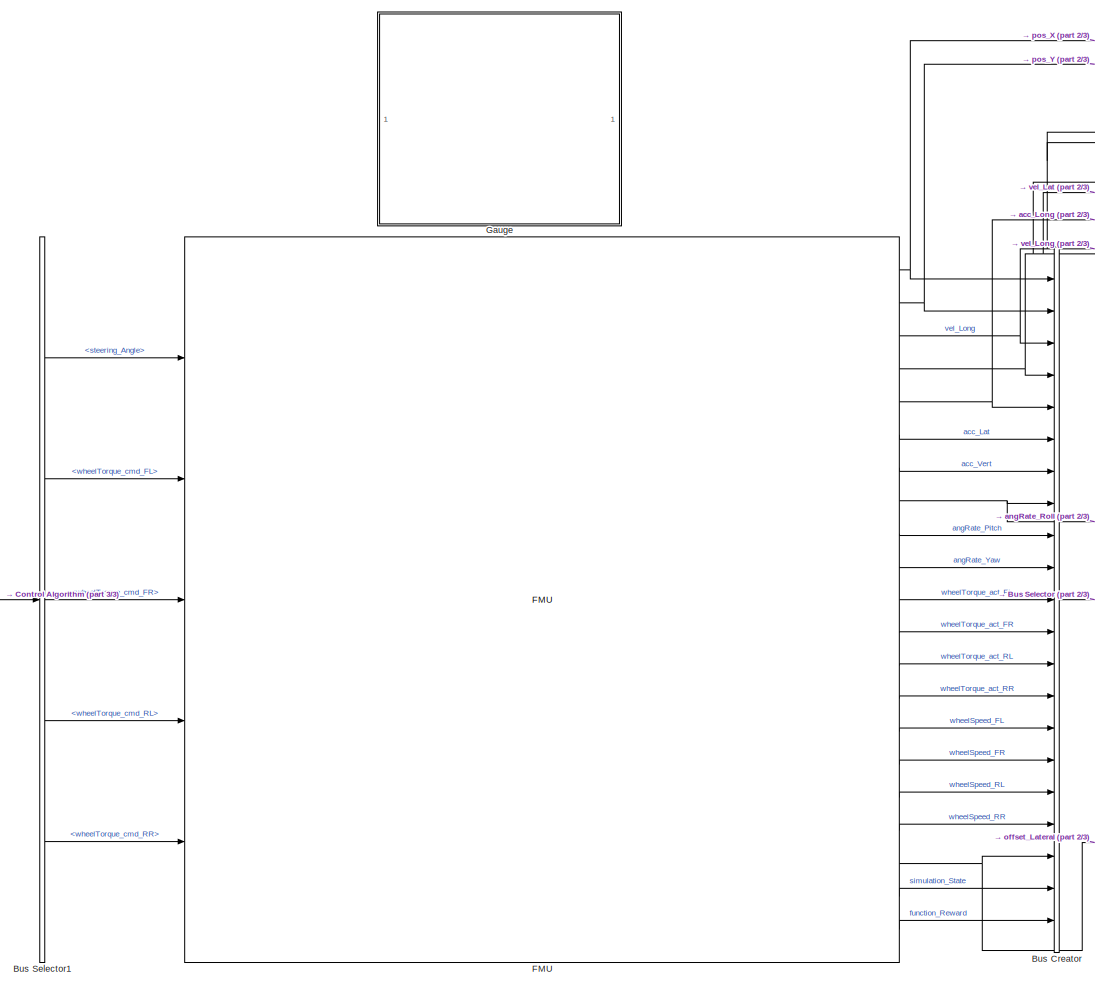
[diagram: root canvas - part 1/3, center side, full height]
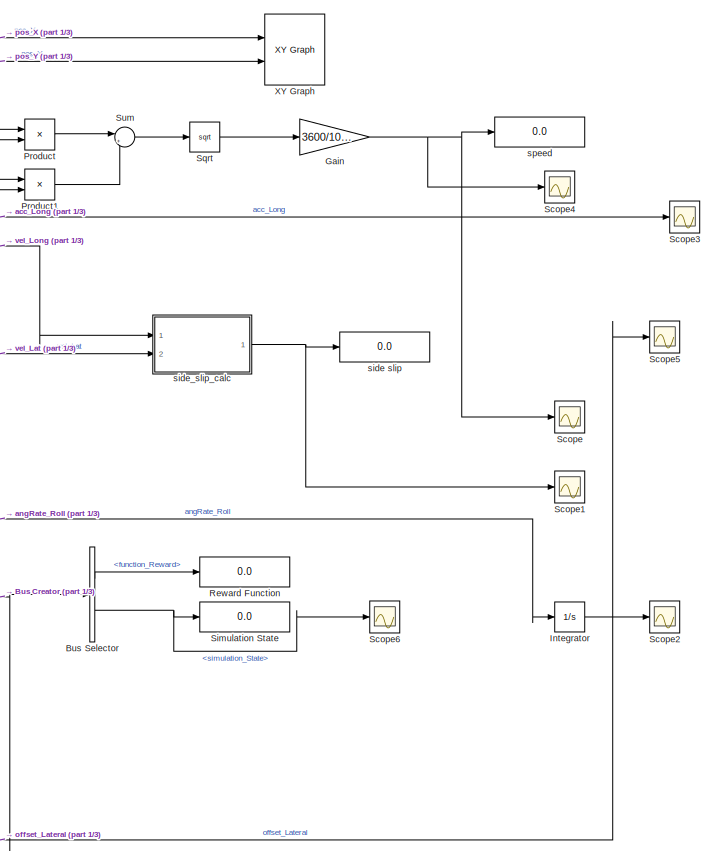
[diagram: root canvas - part 2/3, right side, full height]
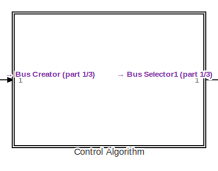
[diagram: root canvas - part 3/3, middle left region]
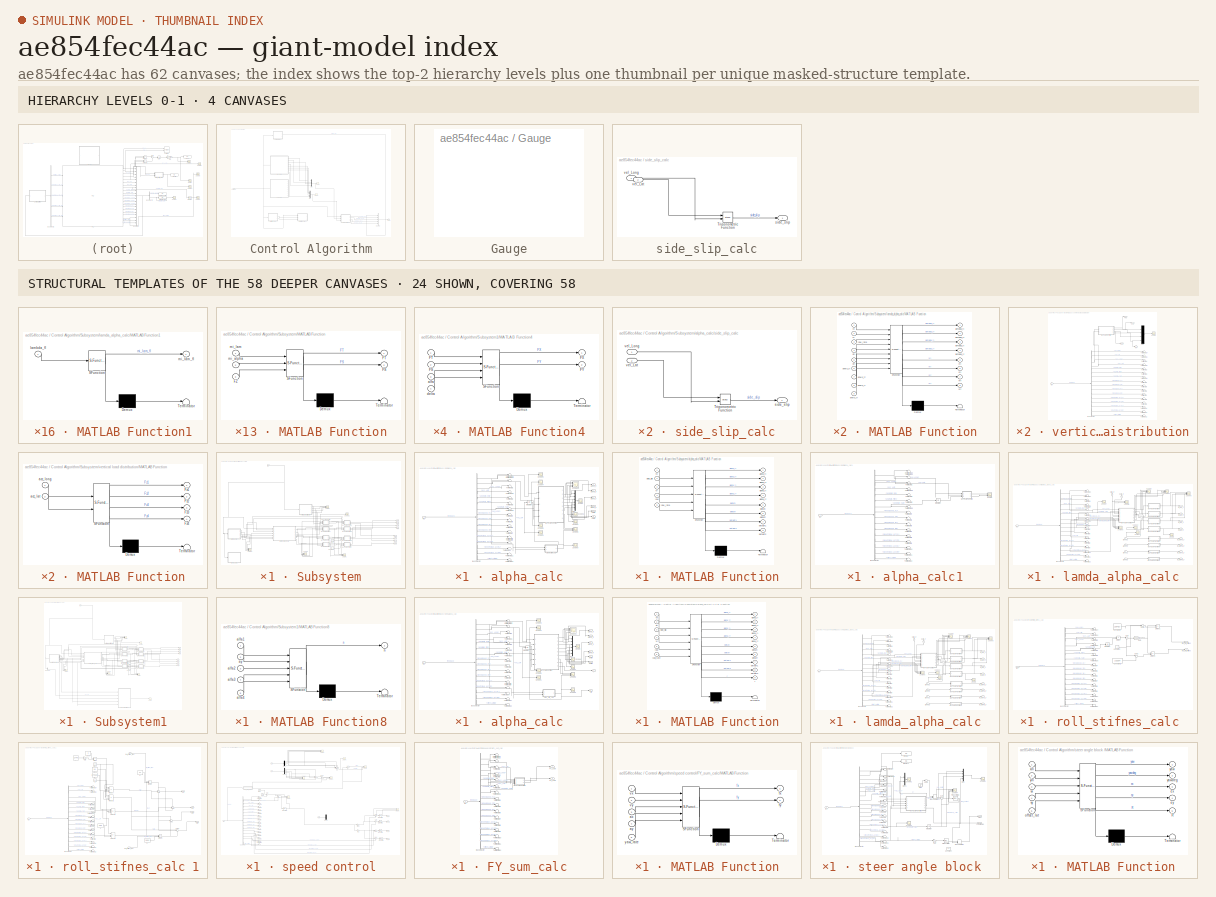
[diagram: thumbnail index - top-2 hierarchy levels (4 canvases) + 24 structural-template representatives of the remaining 58 canvases]
MODEL slx_ae854fec44ac
KIND model
CONFIG AbsTol = 1e-3
CONFIG EnableMultiTasking = off
CONFIG FixedStep = 0.1
CONFIG MaxStep = 1e-1
CONFIG MinStep = auto
CONFIG RelTol = 1e-3
CONFIG SampleTimeConstraint = Unconstrained
CONFIG Solver = VariableStepAuto
CONFIG SolverName = VariableStepAuto
CONFIG StartTime = 0.0
CONFIG StopTime = 25
BLOCK [BusCreator] Bus Creator
  DisplayOption = bar
  InheritFromInputs = on
  Inputs = 21
  Ports = [21, 1]
BLOCK [BusSelector] Bus Selector
  OutputAsBus = off
  OutputSignals = function_Reward,simulation_State
  Ports = [1, 2]
BLOCK [BusSelector] Bus Selector1
  OutputAsBus = off
  OutputSignals = steering_Angle,wheelTorque_cmd_FL,wheelTorque_cmd_FR,wheelTorque_cmd_RL,wheelTorque_cmd_RR
  Ports = [1, 5]
BLOCK [SubSystem] Control Algorithm
  Ports = [1, 1]
  RequestExecContextInheritance = off
  Variant = off
BLOCK [Outport] Control Algorithm/Actuation
  IconDisplay = Port number
BLOCK [BusCreator] Control Algorithm/Bus Creator
  DisplayOption = bar
  InheritFromInputs = on
  Inputs = 5
  Ports = [5, 1]
BLOCK [Inport] Control Algorithm/Feedback
  IconDisplay = Port number
BLOCK [Mux] Control Algorithm/Mux2
  DisplayOption = bar
  Ports = [4, 1]
BLOCK [Mux] Control Algorithm/Mux5
  DisplayOption = bar
  Ports = [4, 1]
BLOCK [Scope] Control Algorithm/Scope10
  NumInputPorts = 1
  Ports = [1]
  ScopeSpecificationString = Simulink.scopes.TimeScopeBlockCfg('CurrentConfiguration', extmgr.ConfigurationSet(extmgr.Configuration('Core','General UI',true),extmgr.Configuration('Core','Source UI',true),extmgr.Configuration('Sources','WiredSimulink',true,'DataLoggingVariableName','ScopeData1'),extmgr.Configuration('Visuals','Time Domain',true,'SerializedDisplays',{struct('MinYLimReal','225.57292','MaxYLimReal','256.05405','Y...<+1478ch>
BLOCK [Scope] Control Algorithm/Scope15
  NumInputPorts = 1
  Ports = [1]
  ScopeSpecificationString = Simulink.scopes.TimeScopeBlockCfg('CurrentConfiguration', extmgr.ConfigurationSet(extmgr.Configuration('Core','General UI',true),extmgr.Configuration('Core','Source UI',true),extmgr.Configuration('Sources','WiredSimulink',true,'DataLoggingVariableName','ScopeData10'),extmgr.Configuration('Visuals','Time Domain',true,'SerializedDisplays',{struct('MinYLimReal','-118537.97902','MaxYLimReal','92161.45...<+1503ch>
BLOCK [SubSystem] Control Algorithm/Subsystem
  Commented = on
  Ports = [1, 8]
  RequestExecContextInheritance = off
  Variant = off
BLOCK [Constant] Control Algorithm/Subsystem/Constant1
  Value = 0
BLOCK [Constant] Control Algorithm/Subsystem/Constant2
  Value = 0
BLOCK [Outport] Control Algorithm/Subsystem/FX_fl
  IconDisplay = Port number
BLOCK [Outport] Control Algorithm/Subsystem/FX_fr
  IconDisplay = Port number
  Port = 2
BLOCK [Outport] Control Algorithm/Subsystem/FX_rl
  IconDisplay = Port number
  Port = 3
BLOCK [Outport] Control Algorithm/Subsystem/FX_rr
  IconDisplay = Port number
  Port = 4
BLOCK [Outport] Control Algorithm/Subsystem/FY_fl
  IconDisplay = Port number
  Port = 5
BLOCK [Outport] Control Algorithm/Subsystem/FY_fr
  IconDisplay = Port number
  Port = 6
BLOCK [Outport] Control Algorithm/Subsystem/FY_rl
  IconDisplay = Port number
  Port = 7
BLOCK [Outport] Control Algorithm/Subsystem/FY_rr
  IconDisplay = Port number
  Port = 8
BLOCK [Inport] Control Algorithm/Subsystem/In1
  IconDisplay = Port number
BLOCK [SubSystem] Control Algorithm/Subsystem/MATLAB Function
  ErrorFcn = Stateflow.Translate.translate
  PermitHierarchicalResolution = ExplicitOnly
  Ports = [3, 2]
  RequestExecContextInheritance = off
  SFBlockType = MATLAB Function
  TreatAsAtomicUnit = on
  Variant = off
BLOCK [Demux] Control Algorithm/Subsystem/MATLAB Function/ Demux 
  Outputs = 1
  Ports = [1, 1]
BLOCK [S-Function] Control Algorithm/Subsystem/MATLAB Function/ SFunction 
  EnableBusSupport = on
  FunctionName = sf_sfun
  PortCounts = [3 3]
  Ports = [3, 3]
  SFcnIsStateOwnerBlock = off
  SFunctionDeploymentMode = off
  Tag = Stateflow S-Function solution84_02 12
BLOCK [Terminator] Control Algorithm/Subsystem/MATLAB Function/ Terminator 
BLOCK [Outport] Control Algorithm/Subsystem/MATLAB Function/FS
  IconDisplay = Port number
  Port = 2
BLOCK [Outport] Control Algorithm/Subsystem/MATLAB Function/FT
  IconDisplay = Port number
BLOCK [Inport] Control Algorithm/Subsystem/MATLAB Function/FZ
  IconDisplay = Port number
  Port = 3
BLOCK [Inport] Control Algorithm/Subsystem/MATLAB Function/mi_alpha
  IconDisplay = Port number
  Port = 2
BLOCK [Inport] Control Algorithm/Subsystem/MATLAB Function/mi_lam
  IconDisplay = Port number
BLOCK [SubSystem] Control Algorithm/Subsystem/MATLAB Function1
  ErrorFcn = Stateflow.Translate.translate
  PermitHierarchicalResolution = ExplicitOnly
  Ports = [3, 2]
  RequestExecContextInheritance = off
  SFBlockType = MATLAB Function
  TreatAsAtomicUnit = on
  Variant = off
BLOCK [Demux] Control Algorithm/Subsystem/MATLAB Function1/ Demux 
  Outputs = 1
  Ports = [1, 1]
BLOCK [S-Function] Control Algorithm/Subsystem/MATLAB Function1/ SFunction 
  EnableBusSupport = on
  FunctionName = sf_sfun
  PortCounts = [3 3]
  Ports = [3, 3]
  SFcnIsStateOwnerBlock = off
  SFunctionDeploymentMode = off
  Tag = Stateflow S-Function solution84_02 13
BLOCK [Terminator] Control Algorithm/Subsystem/MATLAB Function1/ Terminator 
BLOCK [Outport] Control Algorithm/Subsystem/MATLAB Function1/FS
  IconDisplay = Port number
  Port = 2
BLOCK [Outport] Control Algorithm/Subsystem/MATLAB Function1/FT
  IconDisplay = Port number
BLOCK [Inport] Control Algorithm/Subsystem/MATLAB Function1/FZ
  IconDisplay = Port number
  Port = 3
BLOCK [Inport] Control Algorithm/Subsystem/MATLAB Function1/mi_alpha
  IconDisplay = Port number
  Port = 2
BLOCK [Inport] Control Algorithm/Subsystem/MATLAB Function1/mi_lam
  IconDisplay = Port number
BLOCK [SubSystem] Control Algorithm/Subsystem/MATLAB Function2
  ErrorFcn = Stateflow.Translate.translate
  PermitHierarchicalResolution = ExplicitOnly
  Ports = [3, 2]
  RequestExecContextInheritance = off
  SFBlockType = MATLAB Function
  TreatAsAtomicUnit = on
  Variant = off
BLOCK [Demux] Control Algorithm/Subsystem/MATLAB Function2/ Demux 
  Outputs = 1
  Ports = [1, 1]
BLOCK [S-Function] Control Algorithm/Subsystem/MATLAB Function2/ SFunction 
  EnableBusSupport = on
  FunctionName = sf_sfun
  PortCounts = [3 3]
  Ports = [3, 3]
  SFcnIsStateOwnerBlock = off
  SFunctionDeploymentMode = off
  Tag = Stateflow S-Function solution84_02 14
BLOCK [Terminator] Control Algorithm/Subsystem/MATLAB Function2/ Terminator 
BLOCK [Outport] Control Algorithm/Subsystem/MATLAB Function2/FS
  IconDisplay = Port number
  Port = 2
BLOCK [Outport] Control Algorithm/Subsystem/MATLAB Function2/FT
  IconDisplay = Port number
BLOCK [Inport] Control Algorithm/Subsystem/MATLAB Function2/FZ
  IconDisplay = Port number
  Port = 3
BLOCK [Inport] Control Algorithm/Subsystem/MATLAB Function2/mi_alpha
  IconDisplay = Port number
  Port = 2
BLOCK [Inport] Control Algorithm/Subsystem/MATLAB Function2/mi_lam
  IconDisplay = Port number
BLOCK [SubSystem] Control Algorithm/Subsystem/MATLAB Function3
  ErrorFcn = Stateflow.Translate.translate
  PermitHierarchicalResolution = ExplicitOnly
  Ports = [3, 2]
  RequestExecContextInheritance = off
  SFBlockType = MATLAB Function
  TreatAsAtomicUnit = on
  Variant = off
BLOCK [Demux] Control Algorithm/Subsystem/MATLAB Function3/ Demux 
  Outputs = 1
  Ports = [1, 1]
BLOCK [S-Function] Control Algorithm/Subsystem/MATLAB Function3/ SFunction 
  EnableBusSupport = on
  FunctionName = sf_sfun
  PortCounts = [3 3]
  Ports = [3, 3]
  SFcnIsStateOwnerBlock = off
  SFunctionDeploymentMode = off
  Tag = Stateflow S-Function solution84_02 15
BLOCK [Terminator] Control Algorithm/Subsystem/MATLAB Function3/ Terminator 
BLOCK [Outport] Control Algorithm/Subsystem/MATLAB Function3/FS
  IconDisplay = Port number
  Port = 2
BLOCK [Outport] Control Algorithm/Subsystem/MATLAB Function3/FT
  IconDisplay = Port number
BLOCK [Inport] Control Algorithm/Subsystem/MATLAB Function3/FZ
  IconDisplay = Port number
  Port = 3
BLOCK [Inport] Control Algorithm/Subsystem/MATLAB Function3/mi_alpha
  IconDisplay = Port number
  Port = 2
BLOCK [Inport] Control Algorithm/Subsystem/MATLAB Function3/mi_lam
  IconDisplay = Port number
BLOCK [SubSystem] Control Algorithm/Subsystem/MATLAB Function4
  ErrorFcn = Stateflow.Translate.translate
  PermitHierarchicalResolution = ExplicitOnly
  Ports = [3, 2]
  RequestExecContextInheritance = off
  SFBlockType = MATLAB Function
  TreatAsAtomicUnit = on
  Variant = off
BLOCK [Demux] Control Algorithm/Subsystem/MATLAB Function4/ Demux 
  Outputs = 1
  Ports = [1, 1]
BLOCK [S-Function] Control Algorithm/Subsystem/MATLAB Function4/ SFunction 
  EnableBusSupport = on
  FunctionName = sf_sfun
  PortCounts = [3 3]
  Ports = [3, 3]
  SFcnIsStateOwnerBlock = off
  SFunctionDeploymentMode = off
  Tag = Stateflow S-Function solution84_02 17
BLOCK [Terminator] Control Algorithm/Subsystem/MATLAB Function4/ Terminator 
BLOCK [Inport] Control Algorithm/Subsystem/MATLAB Function4/FS
  IconDisplay = Port number
  Port = 2
BLOCK [Inport] Control Algorithm/Subsystem/MATLAB Function4/FT
  IconDisplay = Port number
BLOCK [Outport] Control Algorithm/Subsystem/MATLAB Function4/FX
  IconDisplay = Port number
BLOCK [Outport] Control Algorithm/Subsystem/MATLAB Function4/FY
  IconDisplay = Port number
  Port = 2
BLOCK [Inport] Control Algorithm/Subsystem/MATLAB Function4/delta
  IconDisplay = Port number
  Port = 3
BLOCK [SubSystem] Control Algorithm/Subsystem/MATLAB Function5
  ErrorFcn = Stateflow.Translate.translate
  PermitHierarchicalResolution = ExplicitOnly
  Ports = [3, 2]
  RequestExecContextInheritance = off
  SFBlockType = MATLAB Function
  TreatAsAtomicUnit = on
  Variant = off
BLOCK [Demux] Control Algorithm/Subsystem/MATLAB Function5/ Demux 
  Outputs = 1
  Ports = [1, 1]
BLOCK [S-Function] Control Algorithm/Subsystem/MATLAB Function5/ SFunction 
  EnableBusSupport = on
  FunctionName = sf_sfun
  PortCounts = [3 3]
  Ports = [3, 3]
  SFcnIsStateOwnerBlock = off
  SFunctionDeploymentMode = off
  Tag = Stateflow S-Function solution84_02 18
BLOCK [Terminator] Control Algorithm/Subsystem/MATLAB Function5/ Terminator 
BLOCK [Inport] Control Algorithm/Subsystem/MATLAB Function5/FS
  IconDisplay = Port number
  Port = 2
BLOCK [Inport] Control Algorithm/Subsystem/MATLAB Function5/FT
  IconDisplay = Port number
BLOCK [Outport] Control Algorithm/Subsystem/MATLAB Function5/FX
  IconDisplay = Port number
BLOCK [Outport] Control Algorithm/Subsystem/MATLAB Function5/FY
  IconDisplay = Port number
  Port = 2
BLOCK [Inport] Control Algorithm/Subsystem/MATLAB Function5/delta
  IconDisplay = Port number
  Port = 3
BLOCK [SubSystem] Control Algorithm/Subsystem/MATLAB Function6
  ErrorFcn = Stateflow.Translate.translate
  PermitHierarchicalResolution = ExplicitOnly
  Ports = [3, 2]
  RequestExecContextInheritance = off
  SFBlockType = MATLAB Function
  TreatAsAtomicUnit = on
  Variant = off
BLOCK [Demux] Control Algorithm/Subsystem/MATLAB Function6/ Demux 
  Outputs = 1
  Ports = [1, 1]
BLOCK [S-Function] Control Algorithm/Subsystem/MATLAB Function6/ SFunction 
  EnableBusSupport = on
  FunctionName = sf_sfun
  PortCounts = [3 3]
  Ports = [3, 3]
  SFcnIsStateOwnerBlock = off
  SFunctionDeploymentMode = off
  Tag = Stateflow S-Function solution84_02 19
BLOCK [Terminator] Control Algorithm/Subsystem/MATLAB Function6/ Terminator 
BLOCK [Inport] Control Algorithm/Subsystem/MATLAB Function6/FS
  IconDisplay = Port number
  Port = 2
BLOCK [Inport] Control Algorithm/Subsystem/MATLAB Function6/FT
  IconDisplay = Port number
BLOCK [Outport] Control Algorithm/Subsystem/MATLAB Function6/FX
  IconDisplay = Port number
BLOCK [Outport] Control Algorithm/Subsystem/MATLAB Function6/FY
  IconDisplay = Port number
  Port = 2
BLOCK [Inport] Control Algorithm/Subsystem/MATLAB Function6/delta
  IconDisplay = Port number
  Port = 3
BLOCK [SubSystem] Control Algorithm/Subsystem/MATLAB Function7
  ErrorFcn = Stateflow.Translate.translate
  PermitHierarchicalResolution = ExplicitOnly
  Ports = [3, 2]
  RequestExecContextInheritance = off
  SFBlockType = MATLAB Function
  TreatAsAtomicUnit = on
  Variant = off
BLOCK [Demux] Control Algorithm/Subsystem/MATLAB Function7/ Demux 
  Outputs = 1
  Ports = [1, 1]
BLOCK [S-Function] Control Algorithm/Subsystem/MATLAB Function7/ SFunction 
  EnableBusSupport = on
  FunctionName = sf_sfun
  PortCounts = [3 3]
  Ports = [3, 3]
  SFcnIsStateOwnerBlock = off
  SFunctionDeploymentMode = off
  Tag = Stateflow S-Function solution84_02 20
BLOCK [Terminator] Control Algorithm/Subsystem/MATLAB Function7/ Terminator 
BLOCK [Inport] Control Algorithm/Subsystem/MATLAB Function7/FS
  IconDisplay = Port number
  Port = 2
BLOCK [Inport] Control Algorithm/Subsystem/MATLAB Function7/FT
  IconDisplay = Port number
BLOCK [Outport] Control Algorithm/Subsystem/MATLAB Function7/FX
  IconDisplay = Port number
BLOCK [Outport] Control Algorithm/Subsystem/MATLAB Function7/FY
  IconDisplay = Port number
  Port = 2
BLOCK [Inport] Control Algorithm/Subsystem/MATLAB Function7/delta
  IconDisplay = Port number
  Port = 3
BLOCK [Scope] Control Algorithm/Subsystem/Scope1
  NumInputPorts = 4
  Ports = [4]
  ScopeSpecificationString = Simulink.scopes.TimeScopeBlockCfg('CurrentConfiguration', extmgr.ConfigurationSet(extmgr.Configuration('Core','General UI',true),extmgr.Configuration('Core','Source UI',true),extmgr.Configuration('Sources','WiredSimulink',true,'DataLoggingVariableName','ScopeData12'),extmgr.Configuration('Visuals','Time Domain',true,'SerializedDisplays',{struct('MinYLimReal','-1113.48657','MaxYLimReal','1148.94135...<+1492ch>
BLOCK [Scope] Control Algorithm/Subsystem/Scope13
  NumInputPorts = 1
  Ports = [1]
  ScopeSpecificationString = Simulink.scopes.TimeScopeBlockCfg('CurrentConfiguration', extmgr.ConfigurationSet(extmgr.Configuration('Core','General UI',true),extmgr.Configuration('Core','Source UI',true),extmgr.Configuration('Sources','WiredSimulink',true,'DataLoggingVariableName','ScopeData4'),extmgr.Configuration('Visuals','Time Domain',true,'SerializedDisplays',{struct('MinYLimReal','-0.16376','MaxYLimReal','0.20255','YLab...<+1411ch>
BLOCK [Scope] Control Algorithm/Subsystem/Scope2
  NumInputPorts = 4
  Ports = [4]
  ScopeSpecificationString = Simulink.scopes.TimeScopeBlockCfg('CurrentConfiguration', extmgr.ConfigurationSet(extmgr.Configuration('Core','General UI',true),extmgr.Configuration('Core','Source UI',true),extmgr.Configuration('Sources','WiredSimulink',true,'DataLoggingVariableName','ScopeData13'),extmgr.Configuration('Visuals','Time Domain',true,'SerializedDisplays',{struct('MinYLimReal','-32848.71393','MaxYLimReal','39223.680...<+1564ch>
BLOCK [Scope] Control Algorithm/Subsystem/Scope3
  NumInputPorts = 4
  Ports = [4]
  ScopeSpecificationString = Simulink.scopes.TimeScopeBlockCfg('CurrentConfiguration', extmgr.ConfigurationSet(extmgr.Configuration('Core','General UI',true),extmgr.Configuration('Core','Source UI',true),extmgr.Configuration('Sources','WiredSimulink',true,'DataLoggingVariableName','ScopeData15'),extmgr.Configuration('Visuals','Time Domain',true,'SerializedDisplays',{struct('MinYLimReal','-0.20748','MaxYLimReal','0.20741','YLa...<+1498ch>
BLOCK [Scope] Control Algorithm/Subsystem/Scope4
  NumInputPorts = 4
  Ports = [4]
  ScopeSpecificationString = Simulink.scopes.TimeScopeBlockCfg('CurrentConfiguration', extmgr.ConfigurationSet(extmgr.Configuration('Core','General UI',true),extmgr.Configuration('Core','Source UI',true),extmgr.Configuration('Sources','WiredSimulink',true,'DataLoggingVariableName','ScopeData11'),extmgr.Configuration('Visuals','Time Domain',true,'SerializedDisplays',{struct('MinYLimReal','-2.16196','MaxYLimReal','8.83094','YLa...<+1470ch>
BLOCK [SubSystem] Control Algorithm/Subsystem/alpha_calc
  Ports = [1, 6]
  RequestExecContextInheritance = off
  Variant = off
BLOCK [BusSelector] Control Algorithm/Subsystem/alpha_calc/Bus Selector
  OutputAsBus = off
  OutputSignals = vel_Long,vel_Lat,acc_Long,acc_Lat,angRate_Roll,angRate_Pitch,angRate_Yaw,wheelSpeed_FL,wheelSpeed_FR,wheelSpeed_RL,wheelSpeed_RR,wheelTorque_act_FL,wheelTorque_act_FR,wheelTorque_act_RL,wheelTorque_act_RR,offset_Lateral  <repeated x11 — deduplicated; at blocks: Bus Selector>
  Ports = [1, 16]
BLOCK [Inport] Control Algorithm/Subsystem/alpha_calc/In1
  IconDisplay = Port number and signal name
BLOCK [Integrator] Control Algorithm/Subsystem/alpha_calc/Integrator
  Ports = [1, 1]
BLOCK [SubSystem] Control Algorithm/Subsystem/alpha_calc/MATLAB Function
  ErrorFcn = Stateflow.Translate.translate
  PermitHierarchicalResolution = ExplicitOnly
  Ports = [5, 8]
  RequestExecContextInheritance = off
  SFBlockType = MATLAB Function
  TreatAsAtomicUnit = on
  Variant = off
BLOCK [Demux] Control Algorithm/Subsystem/alpha_calc/MATLAB Function/ Demux 
  Outputs = 1
  Ports = [1, 1]
BLOCK [S-Function] Control Algorithm/Subsystem/alpha_calc/MATLAB Function/ SFunction 
  EnableBusSupport = on
  FunctionName = sf_sfun
  PortCounts = [5 9]
  Ports = [5, 9]
  SFcnIsStateOwnerBlock = off
  SFunctionDeploymentMode = off
  Tag = Stateflow S-Function solution84_02 4
BLOCK [Terminator] Control Algorithm/Subsystem/alpha_calc/MATLAB Function/ Terminator 
BLOCK [Outport] Control Algorithm/Subsystem/alpha_calc/MATLAB Function/alpha_fl
  IconDisplay = Port number
BLOCK [Outport] Control Algorithm/Subsystem/alpha_calc/MATLAB Function/alpha_fr
  IconDisplay = Port number
  Port = 2
BLOCK [Outport] Control Algorithm/Subsystem/alpha_calc/MATLAB Function/alpha_rl
  IconDisplay = Port number
  Port = 3
BLOCK [Outport] Control Algorithm/Subsystem/alpha_calc/MATLAB Function/alpha_rr
  IconDisplay = Port number
  Port = 4
BLOCK [Outport] Control Algorithm/Subsystem/alpha_calc/MATLAB Function/betadf1
  IconDisplay = Port number
  Port = 7
BLOCK [Outport] Control Algorithm/Subsystem/alpha_calc/MATLAB Function/betadf2
  IconDisplay = Port number
  Port = 8
BLOCK [Outport] Control Algorithm/Subsystem/alpha_calc/MATLAB Function/deltafl
  IconDisplay = Port number
  Port = 5
BLOCK [Outport] Control Algorithm/Subsystem/alpha_calc/MATLAB Function/deltafr
  IconDisplay = Port number
  Port = 6
BLOCK [Inport] Control Algorithm/Subsystem/alpha_calc/MATLAB Function/side_slip
  IconDisplay = Port number
  Port = 2
BLOCK [Inport] Control Algorithm/Subsystem/alpha_calc/MATLAB Function/vx
  IconDisplay = Port number
BLOCK [Inport] Control Algorithm/Subsystem/alpha_calc/MATLAB Function/vy
  IconDisplay = Port number
  Port = 3
BLOCK [Inport] Control Algorithm/Subsystem/alpha_calc/MATLAB Function/yaw
  IconDisplay = Port number
  Port = 4
BLOCK [Inport] Control Algorithm/Subsystem/alpha_calc/MATLAB Function/yaw_rate
  IconDisplay = Port number
  Port = 5
BLOCK [Mux] Control Algorithm/Subsystem/alpha_calc/Mux
  DisplayOption = bar
  Inputs = 6
  Ports = [6, 1]
BLOCK [Scope] Control Algorithm/Subsystem/alpha_calc/Scope
  NumInputPorts = 1
  Ports = [1]
  ScopeSpecificationString = Simulink.scopes.TimeScopeBlockCfg('CurrentConfiguration', extmgr.ConfigurationSet(extmgr.Configuration('Core','General UI',true),extmgr.Configuration('Core','Source UI',true),extmgr.Configuration('Sources','WiredSimulink',true,'DataLoggingVariableName','ScopeData1'),extmgr.Configuration('Visuals','Time Domain',true,'SerializedDisplays',{struct('MinYLimReal','-0.28358','MaxYLimReal','0.90857','YLab...<+1431ch>
BLOCK [Scope] Control Algorithm/Subsystem/alpha_calc/Scope1
  NumInputPorts = 1
  Ports = [1]
  ScopeSpecificationString = Simulink.scopes.TimeScopeBlockCfg('CurrentConfiguration', extmgr.ConfigurationSet(extmgr.Configuration('Core','General UI',true),extmgr.Configuration('Core','Source UI',true),extmgr.Configuration('Sources','WiredSimulink',true,'DataLoggingVariableName','ScopeData2'),extmgr.Configuration('Visuals','Time Domain',true,'SerializedDisplays',{struct('MinYLimReal','-0.07769','MaxYLimReal','0.69916','YLab...<+1419ch>
BLOCK [Scope] Control Algorithm/Subsystem/alpha_calc/Scope11
  NumInputPorts = 4
  Ports = [4]
  ScopeSpecificationString = Simulink.scopes.TimeScopeBlockCfg('CurrentConfiguration', extmgr.ConfigurationSet(extmgr.Configuration('Core','General UI',true),extmgr.Configuration('Core','Source UI',true),extmgr.Configuration('Sources','WiredSimulink',true,'DataLoggingVariableName','ScopeData4'),extmgr.Configuration('Visuals','Time Domain',true,'SerializedDisplays',{struct('MinYLimReal','-0.96339','MaxYLimReal','0.4521','YLabe...<+1533ch>
BLOCK [Scope] Control Algorithm/Subsystem/alpha_calc/Scope2
  NumInputPorts = 1
  Ports = [1]
  ScopeSpecificationString = Simulink.scopes.TimeScopeBlockCfg('CurrentConfiguration', extmgr.ConfigurationSet(extmgr.Configuration('Core','General UI',true),extmgr.Configuration('Core','Source UI',true),extmgr.Configuration('Sources','WiredSimulink',true,'DataLoggingVariableName','ScopeData4'),extmgr.Configuration('Visuals','Time Domain',true,'SerializedDisplays',{struct('MinYLimReal','-0.3927','MaxYLimReal','3.53429','YLabe...<+1424ch>
BLOCK [Scope] Control Algorithm/Subsystem/alpha_calc/Scope3
  NumInputPorts = 1
  Ports = [1]
  ScopeSpecificationString = Simulink.scopes.TimeScopeBlockCfg('CurrentConfiguration', extmgr.ConfigurationSet(extmgr.Configuration('Core','General UI',true),extmgr.Configuration('Core','Source UI',true),extmgr.Configuration('Sources','WiredSimulink',true,'DataLoggingVariableName','ScopeData5'),extmgr.Configuration('Visuals','Time Domain',true,'SerializedDisplays',{struct('MinYLimReal','16.42337','MaxYLimReal','19.03402','YLa...<+1420ch>
BLOCK [Scope] Control Algorithm/Subsystem/alpha_calc/Scope4
  NumInputPorts = 1
  Ports = [1]
  ScopeSpecificationString = Simulink.scopes.TimeScopeBlockCfg('CurrentConfiguration', extmgr.ConfigurationSet(extmgr.Configuration('Core','General UI',true),extmgr.Configuration('Core','Source UI',true),extmgr.Configuration('Sources','WiredSimulink',true,'DataLoggingVariableName','ScopeData6'),extmgr.Configuration('Visuals','Time Domain',true,'SerializedDisplays',{struct('MinYLimReal','-1.49684','MaxYLimReal','0.71419','YLab...<+1412ch>
BLOCK [Scope] Control Algorithm/Subsystem/alpha_calc/Scope5
  NumInputPorts = 1
  Ports = [1]
  ScopeSpecificationString = Simulink.scopes.TimeScopeBlockCfg('CurrentConfiguration', extmgr.ConfigurationSet(extmgr.Configuration('Core','General UI',true),extmgr.Configuration('Core','Source UI',true),extmgr.Configuration('Sources','WiredSimulink',true,'DataLoggingVariableName','ScopeData7'),extmgr.Configuration('Visuals','Time Domain',true,'SerializedDisplays',{struct('MinYLimReal','-0.00000015','MaxYLimReal','0.00000002'...<+1464ch>
BLOCK [Scope] Control Algorithm/Subsystem/alpha_calc/Scope6
  NumInputPorts = 1
  Ports = [1]
  ScopeSpecificationString = Simulink.scopes.TimeScopeBlockCfg('CurrentConfiguration', extmgr.ConfigurationSet(extmgr.Configuration('Core','General UI',true),extmgr.Configuration('Core','Source UI',true),extmgr.Configuration('Sources','WiredSimulink',true,'DataLoggingVariableName','ScopeData8'),extmgr.Configuration('Visuals','Time Domain',true,'SerializedDisplays',{struct('MinYLimReal','-0.00000012','MaxYLimReal','0.00000002'...<+1455ch>
BLOCK [Scope] Control Algorithm/Subsystem/alpha_calc/Scope8
  NumInputPorts = 3
  Ports = [3]
  ScopeSpecificationString = Simulink.scopes.TimeScopeBlockCfg('CurrentConfiguration', extmgr.ConfigurationSet(extmgr.Configuration('Core','General UI',true),extmgr.Configuration('Core','Source UI',true),extmgr.Configuration('Sources','WiredSimulink',true,'DataLoggingVariableName','ScopeData1'),extmgr.Configuration('Visuals','Time Domain',true,'SerializedDisplays',{struct('MinYLimReal','-0.00009','MaxYLimReal','0.00002','YLab...<+1495ch>
BLOCK [Scope] Control Algorithm/Subsystem/alpha_calc/Scope9
  NumInputPorts = 1
  Ports = [1]
  ScopeSpecificationString = Simulink.scopes.TimeScopeBlockCfg('CurrentConfiguration', extmgr.ConfigurationSet(extmgr.Configuration('Core','General UI',true),extmgr.Configuration('Core','Source UI',true),extmgr.Configuration('Sources','WiredSimulink',true,'DataLoggingVariableName','ScopeData2'),extmgr.Configuration('Visuals','Time Domain',true,'SerializedDisplays',{struct('MinYLimReal','-0.08144','MaxYLimReal','0.03818','YLab...<+1476ch>
BLOCK [Terminator] Control Algorithm/Subsystem/alpha_calc/Terminator1
BLOCK [Terminator] Control Algorithm/Subsystem/alpha_calc/Terminator10
BLOCK [Terminator] Control Algorithm/Subsystem/alpha_calc/Terminator11
BLOCK [Terminator] Control Algorithm/Subsystem/alpha_calc/Terminator12
BLOCK [Terminator] Control Algorithm/Subsystem/alpha_calc/Terminator13
BLOCK [Terminator] Control Algorithm/Subsystem/alpha_calc/Terminator14
BLOCK [Terminator] Control Algorithm/Subsystem/alpha_calc/Terminator15
BLOCK [Terminator] Control Algorithm/Subsystem/alpha_calc/Terminator16
BLOCK [Terminator] Control Algorithm/Subsystem/alpha_calc/Terminator2
BLOCK [Terminator] Control Algorithm/Subsystem/alpha_calc/Terminator3
BLOCK [Terminator] Control Algorithm/Subsystem/alpha_calc/Terminator4
BLOCK [Terminator] Control Algorithm/Subsystem/alpha_calc/Terminator5
BLOCK [Terminator] Control Algorithm/Subsystem/alpha_calc/Terminator6
BLOCK [Terminator] Control Algorithm/Subsystem/alpha_calc/Terminator7
BLOCK [Terminator] Control Algorithm/Subsystem/alpha_calc/Terminator8
BLOCK [Terminator] Control Algorithm/Subsystem/alpha_calc/Terminator9
BLOCK [Outport] Control Algorithm/Subsystem/alpha_calc/alpha_fl
  IconDisplay = Port number
BLOCK [Outport] Control Algorithm/Subsystem/alpha_calc/alpha_fr
  IconDisplay = Port number
  Port = 2
BLOCK [Outport] Control Algorithm/Subsystem/alpha_calc/alpha_rl
  IconDisplay = Port number
  Port = 3
BLOCK [Outport] Control Algorithm/Subsystem/alpha_calc/alpha_rr
  IconDisplay = Port number
  Port = 4
BLOCK [Outport] Control Algorithm/Subsystem/alpha_calc/deltafl
  IconDisplay = Port number
  Port = 5
BLOCK [Outport] Control Algorithm/Subsystem/alpha_calc/deltafr
  IconDisplay = Port number
  Port = 6
BLOCK [SubSystem] Control Algorithm/Subsystem/alpha_calc/side_slip_calc
  Ports = [2, 1]
  RequestExecContextInheritance = off
  Variant = off
BLOCK [Trigonometry] Control Algorithm/Subsystem/alpha_calc/side_slip_calc/Trigonometric Function
  Operator = atan2
  Ports = [2, 1]
BLOCK [Outport] Control Algorithm/Subsystem/alpha_calc/side_slip_calc/side_slip
  IconDisplay = Port number
BLOCK [Inport] Control Algorithm/Subsystem/alpha_calc/side_slip_calc/vel_Lat
  IconDisplay = Port number
  Port = 2
BLOCK [Inport] Control Algorithm/Subsystem/alpha_calc/side_slip_calc/vel_Long
  IconDisplay = Port number
BLOCK [SubSystem] Control Algorithm/Subsystem/alpha_calc1
  Ports = [1]
  RequestExecContextInheritance = off
  Variant = off
BLOCK [BusSelector] Control Algorithm/Subsystem/alpha_calc1/Bus Selector
  OutputAsBus = off
  Ports = [1, 16]
BLOCK [Inport] Control Algorithm/Subsystem/alpha_calc1/In1
  IconDisplay = Port number and signal name
BLOCK [Integrator] Control Algorithm/Subsystem/alpha_calc1/Integrator
  Ports = [1, 1]
BLOCK [SubSystem] Control Algorithm/Subsystem/alpha_calc1/MATLAB Function
  ErrorFcn = Stateflow.Translate.translate
  PermitHierarchicalResolution = ExplicitOnly
  Ports = [3, 2]
  RequestExecContextInheritance = off
  SFBlockType = MATLAB Function
  TreatAsAtomicUnit = on
  Variant = off
BLOCK [Demux] Control Algorithm/Subsystem/alpha_calc1/MATLAB Function/ Demux 
  Outputs = 1
  Ports = [1, 1]
BLOCK [S-Function] Control Algorithm/Subsystem/alpha_calc1/MATLAB Function/ SFunction 
  EnableBusSupport = on
  FunctionName = sf_sfun
  PortCounts = [3 3]
  Ports = [3, 3]
  SFcnIsStateOwnerBlock = off
  SFunctionDeploymentMode = off
  Tag = Stateflow S-Function solution84_02 22
BLOCK [Terminator] Control Algorithm/Subsystem/alpha_calc1/MATLAB Function/ Terminator 
BLOCK [Inport] Control Algorithm/Subsystem/alpha_calc1/MATLAB Function/vx
  IconDisplay = Port number
BLOCK [Inport] Control Algorithm/Subsystem/alpha_calc1/MATLAB Function/vy
  IconDisplay = Port number
  Port = 2
BLOCK [Outport] Control Algorithm/Subsystem/alpha_calc1/MATLAB Function/xdot
  IconDisplay = Port number
BLOCK [Inport] Control Algorithm/Subsystem/alpha_calc1/MATLAB Function/yaw
  IconDisplay = Port number
  Port = 3
BLOCK [Outport] Control Algorithm/Subsystem/alpha_calc1/MATLAB Function/ydot
  IconDisplay = Port number
  Port = 2
BLOCK [Scope] Control Algorithm/Subsystem/alpha_calc1/Scope
  NumInputPorts = 2
  Ports = [2]
  ScopeSpecificationString = Simulink.scopes.TimeScopeBlockCfg('CurrentConfiguration', extmgr.ConfigurationSet(extmgr.Configuration('Core','General UI',true),extmgr.Configuration('Core','Source UI',true),extmgr.Configuration('Sources','WiredSimulink',true,'DataLoggingVariableName','ScopeData28'),extmgr.Configuration('Visuals','Time Domain',true,'SerializedDisplays',{struct('MinYLimReal','-1484.99327','MaxYLimReal','1512.61727...<+1471ch>
BLOCK [Terminator] Control Algorithm/Subsystem/alpha_calc1/Terminator1
BLOCK [Terminator] Control Algorithm/Subsystem/alpha_calc1/Terminator10
BLOCK [Terminator] Control Algorithm/Subsystem/alpha_calc1/Terminator11
BLOCK [Terminator] Control Algorithm/Subsystem/alpha_calc1/Terminator12
BLOCK [Terminator] Control Algorithm/Subsystem/alpha_calc1/Terminator13
BLOCK [Terminator] Control Algorithm/Subsystem/alpha_calc1/Terminator14
BLOCK [Terminator] Control Algorithm/Subsystem/alpha_calc1/Terminator15
BLOCK [Terminator] Control Algorithm/Subsystem/alpha_calc1/Terminator16
BLOCK [Terminator] Control Algorithm/Subsystem/alpha_calc1/Terminator2
BLOCK [Terminator] Control Algorithm/Subsystem/alpha_calc1/Terminator3
BLOCK [Terminator] Control Algorithm/Subsystem/alpha_calc1/Terminator4
BLOCK [Terminator] Control Algorithm/Subsystem/alpha_calc1/Terminator5
BLOCK [Terminator] Control Algorithm/Subsystem/alpha_calc1/Terminator6
BLOCK [Terminator] Control Algorithm/Subsystem/alpha_calc1/Terminator7
BLOCK [Terminator] Control Algorithm/Subsystem/alpha_calc1/Terminator8
BLOCK [Terminator] Control Algorithm/Subsystem/alpha_calc1/Terminator9
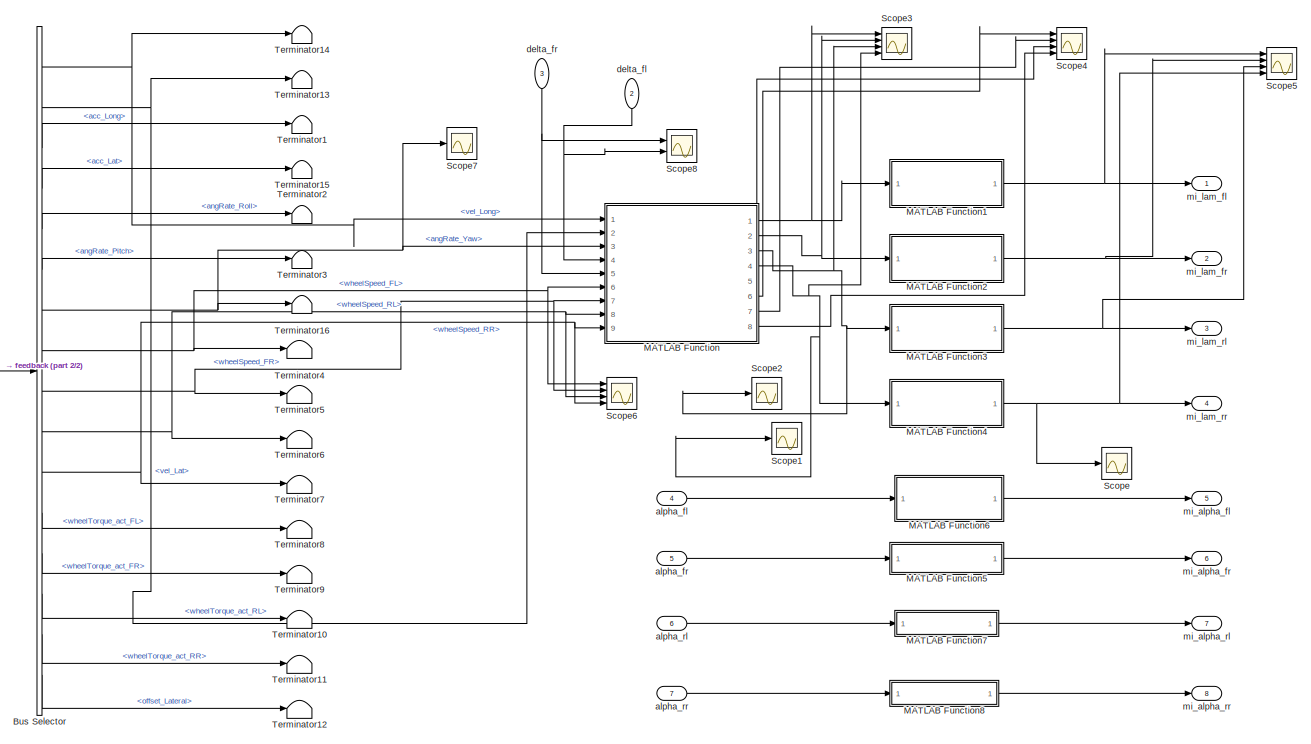
[diagram: Control Algorithm/Subsystem/lamda_alpha_calc - part 1/2, most of the canvas]
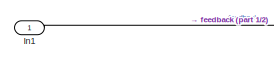
[diagram: Control Algorithm/Subsystem/lamda_alpha_calc - part 2/2, middle left region]
BLOCK [SubSystem] Control Algorithm/Subsystem/lamda_alpha_calc
  Ports = [7, 8]
  RequestExecContextInheritance = off
  Variant = off
BLOCK [BusSelector] Control Algorithm/Subsystem/lamda_alpha_calc/Bus Selector
  OutputAsBus = off
  Ports = [1, 16]
BLOCK [Inport] Control Algorithm/Subsystem/lamda_alpha_calc/In1
  IconDisplay = Port number and signal name
BLOCK [SubSystem] Control Algorithm/Subsystem/lamda_alpha_calc/MATLAB Function
  ErrorFcn = Stateflow.Translate.translate
  PermitHierarchicalResolution = ExplicitOnly
  Ports = [9, 8]
  RequestExecContextInheritance = off
  SFBlockType = MATLAB Function
  TreatAsAtomicUnit = on
  Variant = off
BLOCK [Demux] Control Algorithm/Subsystem/lamda_alpha_calc/MATLAB Function/ Demux 
  Outputs = 1
  Ports = [1, 1]
BLOCK [S-Function] Control Algorithm/Subsystem/lamda_alpha_calc/MATLAB Function/ SFunction 
  EnableBusSupport = on
  FunctionName = sf_sfun
  PortCounts = [9 9]
  Ports = [9, 9]
  SFcnIsStateOwnerBlock = off
  SFunctionDeploymentMode = off
  Tag = Stateflow S-Function solution84_02 1
BLOCK [Terminator] Control Algorithm/Subsystem/lamda_alpha_calc/MATLAB Function/ Terminator 
BLOCK [Inport] Control Algorithm/Subsystem/lamda_alpha_calc/MATLAB Function/anws_fl
  IconDisplay = Port number
  Port = 6
BLOCK [Inport] Control Algorithm/Subsystem/lamda_alpha_calc/MATLAB Function/anws_fr
  IconDisplay = Port number
  Port = 7
BLOCK [Inport] Control Algorithm/Subsystem/lamda_alpha_calc/MATLAB Function/anws_rl
  IconDisplay = Port number
  Port = 8
BLOCK [Inport] Control Algorithm/Subsystem/lamda_alpha_calc/MATLAB Function/anws_rr
  IconDisplay = Port number
  Port = 9
BLOCK [Inport] Control Algorithm/Subsystem/lamda_alpha_calc/MATLAB Function/dfl
  IconDisplay = Port number
  Port = 4
BLOCK [Inport] Control Algorithm/Subsystem/lamda_alpha_calc/MATLAB Function/dfr
  IconDisplay = Port number
  Port = 5
BLOCK [Outport] Control Algorithm/Subsystem/lamda_alpha_calc/MATLAB Function/lambda_fl
  IconDisplay = Port number
BLOCK [Outport] Control Algorithm/Subsystem/lamda_alpha_calc/MATLAB Function/lambda_fr
  IconDisplay = Port number
  Port = 2
BLOCK [Outport] Control Algorithm/Subsystem/lamda_alpha_calc/MATLAB Function/lambda_rl
  IconDisplay = Port number
  Port = 3
BLOCK [Outport] Control Algorithm/Subsystem/lamda_alpha_calc/MATLAB Function/lambda_rr
  IconDisplay = Port number
  Port = 4
BLOCK [Outport] Control Algorithm/Subsystem/lamda_alpha_calc/MATLAB Function/vfl
  IconDisplay = Port number
  Port = 6
BLOCK [Outport] Control Algorithm/Subsystem/lamda_alpha_calc/MATLAB Function/vfr
  IconDisplay = Port number
  Port = 7
BLOCK [Outport] Control Algorithm/Subsystem/lamda_alpha_calc/MATLAB Function/vrl
  IconDisplay = Port number
  Port = 5
BLOCK [Outport] Control Algorithm/Subsystem/lamda_alpha_calc/MATLAB Function/vrr
  IconDisplay = Port number
  Port = 8
BLOCK [Inport] Control Algorithm/Subsystem/lamda_alpha_calc/MATLAB Function/vx
  IconDisplay = Port number
BLOCK [Inport] Control Algorithm/Subsystem/lamda_alpha_calc/MATLAB Function/vy
  IconDisplay = Port number
  Port = 2
BLOCK [Inport] Control Algorithm/Subsystem/lamda_alpha_calc/MATLAB Function/yaw_rate
  IconDisplay = Port number
  Port = 3
BLOCK [SubSystem] Control Algorithm/Subsystem/lamda_alpha_calc/MATLAB Function1
  ErrorFcn = Stateflow.Translate.translate
  PermitHierarchicalResolution = ExplicitOnly
  Ports = [1, 1]
  RequestExecContextInheritance = off
  SFBlockType = MATLAB Function
  TreatAsAtomicUnit = on
  Variant = off
BLOCK [Demux] Control Algorithm/Subsystem/lamda_alpha_calc/MATLAB Function1/ Demux 
  Outputs = 1
  Ports = [1, 1]
BLOCK [S-Function] Control Algorithm/Subsystem/lamda_alpha_calc/MATLAB Function1/ SFunction 
  EnableBusSupport = on
  FunctionName = sf_sfun
  PortCounts = [1 2]
  Ports = [1, 2]
  SFcnIsStateOwnerBlock = off
  SFunctionDeploymentMode = off
  Tag = Stateflow S-Function solution84_02 3
BLOCK [Terminator] Control Algorithm/Subsystem/lamda_alpha_calc/MATLAB Function1/ Terminator 
BLOCK [Inport] Control Algorithm/Subsystem/lamda_alpha_calc/MATLAB Function1/lambda_fl
  IconDisplay = Port number
BLOCK [Outport] Control Algorithm/Subsystem/lamda_alpha_calc/MATLAB Function1/mi_lam_fl
  IconDisplay = Port number
BLOCK [SubSystem] Control Algorithm/Subsystem/lamda_alpha_calc/MATLAB Function2
  ErrorFcn = Stateflow.Translate.translate
  PermitHierarchicalResolution = ExplicitOnly
  Ports = [1, 1]
  RequestExecContextInheritance = off
  SFBlockType = MATLAB Function
  TreatAsAtomicUnit = on
  Variant = off
BLOCK [Demux] Control Algorithm/Subsystem/lamda_alpha_calc/MATLAB Function2/ Demux 
  Outputs = 1
  Ports = [1, 1]
BLOCK [S-Function] Control Algorithm/Subsystem/lamda_alpha_calc/MATLAB Function2/ SFunction 
  EnableBusSupport = on
  FunctionName = sf_sfun
  PortCounts = [1 2]
  Ports = [1, 2]
  SFcnIsStateOwnerBlock = off
  SFunctionDeploymentMode = off
  Tag = Stateflow S-Function solution84_02 5
BLOCK [Terminator] Control Algorithm/Subsystem/lamda_alpha_calc/MATLAB Function2/ Terminator 
BLOCK [Inport] Control Algorithm/Subsystem/lamda_alpha_calc/MATLAB Function2/lambda_fr
  IconDisplay = Port number
BLOCK [Outport] Control Algorithm/Subsystem/lamda_alpha_calc/MATLAB Function2/mi_lam_fl
  IconDisplay = Port number
BLOCK [SubSystem] Control Algorithm/Subsystem/lamda_alpha_calc/MATLAB Function3
  ErrorFcn = Stateflow.Translate.translate
  PermitHierarchicalResolution = ExplicitOnly
  Ports = [1, 1]
  RequestExecContextInheritance = off
  SFBlockType = MATLAB Function
  TreatAsAtomicUnit = on
  Variant = off
BLOCK [Demux] Control Algorithm/Subsystem/lamda_alpha_calc/MATLAB Function3/ Demux 
  Outputs = 1
  Ports = [1, 1]
BLOCK [S-Function] Control Algorithm/Subsystem/lamda_alpha_calc/MATLAB Function3/ SFunction 
  EnableBusSupport = on
  FunctionName = sf_sfun
  PortCounts = [1 2]
  Ports = [1, 2]
  SFcnIsStateOwnerBlock = off
  SFunctionDeploymentMode = off
  Tag = Stateflow S-Function solution84_02 6
BLOCK [Terminator] Control Algorithm/Subsystem/lamda_alpha_calc/MATLAB Function3/ Terminator 
BLOCK [Inport] Control Algorithm/Subsystem/lamda_alpha_calc/MATLAB Function3/lambda_rl
  IconDisplay = Port number
BLOCK [Outport] Control Algorithm/Subsystem/lamda_alpha_calc/MATLAB Function3/mi_lam_rl
  IconDisplay = Port number
BLOCK [SubSystem] Control Algorithm/Subsystem/lamda_alpha_calc/MATLAB Function4
  ErrorFcn = Stateflow.Translate.translate
  PermitHierarchicalResolution = ExplicitOnly
  Ports = [1, 1]
  RequestExecContextInheritance = off
  SFBlockType = MATLAB Function
  TreatAsAtomicUnit = on
  Variant = off
BLOCK [Demux] Control Algorithm/Subsystem/lamda_alpha_calc/MATLAB Function4/ Demux 
  Outputs = 1
  Ports = [1, 1]
BLOCK [S-Function] Control Algorithm/Subsystem/lamda_alpha_calc/MATLAB Function4/ SFunction 
  EnableBusSupport = on
  FunctionName = sf_sfun
  PortCounts = [1 2]
  Ports = [1, 2]
  SFcnIsStateOwnerBlock = off
  SFunctionDeploymentMode = off
  Tag = Stateflow S-Function solution84_02 7
BLOCK [Terminator] Control Algorithm/Subsystem/lamda_alpha_calc/MATLAB Function4/ Terminator 
BLOCK [Inport] Control Algorithm/Subsystem/lamda_alpha_calc/MATLAB Function4/lambda_rr
  IconDisplay = Port number
BLOCK [Outport] Control Algorithm/Subsystem/lamda_alpha_calc/MATLAB Function4/mi_lam_rr
  IconDisplay = Port number
BLOCK [SubSystem] Control Algorithm/Subsystem/lamda_alpha_calc/MATLAB Function5
  ErrorFcn = Stateflow.Translate.translate
  PermitHierarchicalResolution = ExplicitOnly
  Ports = [1, 1]
  RequestExecContextInheritance = off
  SFBlockType = MATLAB Function
  TreatAsAtomicUnit = on
  Variant = off
BLOCK [Demux] Control Algorithm/Subsystem/lamda_alpha_calc/MATLAB Function5/ Demux 
  Outputs = 1
  Ports = [1, 1]
BLOCK [S-Function] Control Algorithm/Subsystem/lamda_alpha_calc/MATLAB Function5/ SFunction 
  EnableBusSupport = on
  FunctionName = sf_sfun
  PortCounts = [1 2]
  Ports = [1, 2]
  SFcnIsStateOwnerBlock = off
  SFunctionDeploymentMode = off
  Tag = Stateflow S-Function solution84_02 8
BLOCK [Terminator] Control Algorithm/Subsystem/lamda_alpha_calc/MATLAB Function5/ Terminator 
BLOCK [Inport] Control Algorithm/Subsystem/lamda_alpha_calc/MATLAB Function5/alpha_fr
  IconDisplay = Port number
BLOCK [Outport] Control Algorithm/Subsystem/lamda_alpha_calc/MATLAB Function5/mi_alpha_fr
  IconDisplay = Port number
BLOCK [SubSystem] Control Algorithm/Subsystem/lamda_alpha_calc/MATLAB Function6
  ErrorFcn = Stateflow.Translate.translate
  PermitHierarchicalResolution = ExplicitOnly
  Ports = [1, 1]
  RequestExecContextInheritance = off
  SFBlockType = MATLAB Function
  TreatAsAtomicUnit = on
  Variant = off
BLOCK [Demux] Control Algorithm/Subsystem/lamda_alpha_calc/MATLAB Function6/ Demux 
  Outputs = 1
  Ports = [1, 1]
BLOCK [S-Function] Control Algorithm/Subsystem/lamda_alpha_calc/MATLAB Function6/ SFunction 
  EnableBusSupport = on
  FunctionName = sf_sfun
  PortCounts = [1 2]
  Ports = [1, 2]
  SFcnIsStateOwnerBlock = off
  SFunctionDeploymentMode = off
  Tag = Stateflow S-Function solution84_02 9
BLOCK [Terminator] Control Algorithm/Subsystem/lamda_alpha_calc/MATLAB Function6/ Terminator 
BLOCK [Inport] Control Algorithm/Subsystem/lamda_alpha_calc/MATLAB Function6/alpha_fl
  IconDisplay = Port number
BLOCK [Outport] Control Algorithm/Subsystem/lamda_alpha_calc/MATLAB Function6/mi_alpha_fl
  IconDisplay = Port number
BLOCK [SubSystem] Control Algorithm/Subsystem/lamda_alpha_calc/MATLAB Function7
  ErrorFcn = Stateflow.Translate.translate
  PermitHierarchicalResolution = ExplicitOnly
  Ports = [1, 1]
  RequestExecContextInheritance = off
  SFBlockType = MATLAB Function
  TreatAsAtomicUnit = on
  Variant = off
BLOCK [Demux] Control Algorithm/Subsystem/lamda_alpha_calc/MATLAB Function7/ Demux 
  Outputs = 1
  Ports = [1, 1]
BLOCK [S-Function] Control Algorithm/Subsystem/lamda_alpha_calc/MATLAB Function7/ SFunction 
  EnableBusSupport = on
  FunctionName = sf_sfun
  PortCounts = [1 2]
  Ports = [1, 2]
  SFcnIsStateOwnerBlock = off
  SFunctionDeploymentMode = off
  Tag = Stateflow S-Function solution84_02 10
BLOCK [Terminator] Control Algorithm/Subsystem/lamda_alpha_calc/MATLAB Function7/ Terminator 
BLOCK [Inport] Control Algorithm/Subsystem/lamda_alpha_calc/MATLAB Function7/alpha_rl
  IconDisplay = Port number
BLOCK [Outport] Control Algorithm/Subsystem/lamda_alpha_calc/MATLAB Function7/mi_alpha_rl
  IconDisplay = Port number
BLOCK [SubSystem] Control Algorithm/Subsystem/lamda_alpha_calc/MATLAB Function8
  ErrorFcn = Stateflow.Translate.translate
  PermitHierarchicalResolution = ExplicitOnly
  Ports = [1, 1]
  RequestExecContextInheritance = off
  SFBlockType = MATLAB Function
  TreatAsAtomicUnit = on
  Variant = off
BLOCK [Demux] Control Algorithm/Subsystem/lamda_alpha_calc/MATLAB Function8/ Demux 
  Outputs = 1
  Ports = [1, 1]
BLOCK [S-Function] Control Algorithm/Subsystem/lamda_alpha_calc/MATLAB Function8/ SFunction 
  EnableBusSupport = on
  FunctionName = sf_sfun
  PortCounts = [1 2]
  Ports = [1, 2]
  SFcnIsStateOwnerBlock = off
  SFunctionDeploymentMode = off
  Tag = Stateflow S-Function solution84_02 11
BLOCK [Terminator] Control Algorithm/Subsystem/lamda_alpha_calc/MATLAB Function8/ Terminator 
BLOCK [Inport] Control Algorithm/Subsystem/lamda_alpha_calc/MATLAB Function8/alpha_rr
  IconDisplay = Port number
BLOCK [Outport] Control Algorithm/Subsystem/lamda_alpha_calc/MATLAB Function8/mi_alpha_rr
  IconDisplay = Port number
BLOCK [Scope] Control Algorithm/Subsystem/lamda_alpha_calc/Scope
  NumInputPorts = 1
  Ports = [1]
  ScopeSpecificationString = Simulink.scopes.TimeScopeBlockCfg('CurrentConfiguration', extmgr.ConfigurationSet(extmgr.Configuration('Core','General UI',true),extmgr.Configuration('Core','Source UI',true),extmgr.Configuration('Sources','WiredSimulink',true,'DataLoggingVariableName','ScopeData5'),extmgr.Configuration('Visuals','Time Domain',true,'SerializedDisplays',{struct('MinYLimReal','-0.2074','MaxYLimReal','0.20681','YLabe...<+1371ch>
BLOCK [Scope] Control Algorithm/Subsystem/lamda_alpha_calc/Scope1
  NumInputPorts = 1
  Ports = [1]
  ScopeSpecificationString = Simulink.scopes.TimeScopeBlockCfg('CurrentConfiguration', extmgr.ConfigurationSet(extmgr.Configuration('Core','General UI',true),extmgr.Configuration('Core','Source UI',true),extmgr.Configuration('Sources','WiredSimulink',true,'DataLoggingVariableName','ScopeData6'),extmgr.Configuration('Visuals','Time Domain',true,'SerializedDisplays',{struct('MinYLimReal','-25.83435','MaxYLimReal','3.95259','YLa...<+1388ch>
BLOCK [Scope] Control Algorithm/Subsystem/lamda_alpha_calc/Scope2
  NumInputPorts = 1
  Ports = [1]
  ScopeSpecificationString = Simulink.scopes.TimeScopeBlockCfg('CurrentConfiguration', extmgr.ConfigurationSet(extmgr.Configuration('Core','General UI',true),extmgr.Configuration('Core','Source UI',true),extmgr.Configuration('Sources','WiredSimulink',true,'DataLoggingVariableName','ScopeData7'),extmgr.Configuration('Visuals','Time Domain',true,'SerializedDisplays',{struct('MinYLimReal','-22.8854','MaxYLimReal','3.58579','YLab...<+1384ch>
BLOCK [Scope] Control Algorithm/Subsystem/lamda_alpha_calc/Scope3
  NumInputPorts = 4
  Ports = [4]
  ScopeSpecificationString = Simulink.scopes.TimeScopeBlockCfg('CurrentConfiguration', extmgr.ConfigurationSet(extmgr.Configuration('Core','General UI',true),extmgr.Configuration('Core','Source UI',true),extmgr.Configuration('Sources','WiredSimulink',true,'DataLoggingVariableName','ScopeData16'),extmgr.Configuration('Visuals','Time Domain',true,'SerializedDisplays',{struct('MinYLimReal','-29.2562','MaxYLimReal','34.7492','YLa...<+1498ch>
BLOCK [Scope] Control Algorithm/Subsystem/lamda_alpha_calc/Scope4
  NumInputPorts = 4
  Ports = [4]
  ScopeSpecificationString = Simulink.scopes.TimeScopeBlockCfg('CurrentConfiguration', extmgr.ConfigurationSet(extmgr.Configuration('Core','General UI',true),extmgr.Configuration('Core','Source UI',true),extmgr.Configuration('Sources','WiredSimulink',true,'DataLoggingVariableName','ScopeData17'),extmgr.Configuration('Visuals','Time Domain',true,'SerializedDisplays',{struct('MinYLimReal','12.28788','MaxYLimReal','51.12063','YL...<+1520ch>
BLOCK [Scope] Control Algorithm/Subsystem/lamda_alpha_calc/Scope5
  NumInputPorts = 4
  Ports = [4]
  ScopeSpecificationString = Simulink.scopes.TimeScopeBlockCfg('CurrentConfiguration', extmgr.ConfigurationSet(extmgr.Configuration('Core','General UI',true),extmgr.Configuration('Core','Source UI',true),extmgr.Configuration('Sources','WiredSimulink',true,'DataLoggingVariableName','ScopeData18'),extmgr.Configuration('Visuals','Time Domain',true,'SerializedDisplays',{struct('MinYLimReal','-0.16951','MaxYLimReal','0.16645','YLa...<+1502ch>
BLOCK [Scope] Control Algorithm/Subsystem/lamda_alpha_calc/Scope6
  NumInputPorts = 4
  Ports = [4]
  ScopeSpecificationString = Simulink.scopes.TimeScopeBlockCfg('CurrentConfiguration', extmgr.ConfigurationSet(extmgr.Configuration('Core','General UI',true),extmgr.Configuration('Core','Source UI',true),extmgr.Configuration('Sources','WiredSimulink',true,'DataLoggingVariableName','ScopeData19'),extmgr.Configuration('Visuals','Time Domain',true,'SerializedDisplays',{struct('MinYLimReal','-484.65618','MaxYLimReal','530.51222',...<+1470ch>
BLOCK [Scope] Control Algorithm/Subsystem/lamda_alpha_calc/Scope7
  NumInputPorts = 1
  Ports = [1]
  ScopeSpecificationString = Simulink.scopes.TimeScopeBlockCfg('CurrentConfiguration', extmgr.ConfigurationSet(extmgr.Configuration('Core','General UI',true),extmgr.Configuration('Core','Source UI',true),extmgr.Configuration('Sources','WiredSimulink',true,'DataLoggingVariableName','ScopeData26'),extmgr.Configuration('Visuals','Time Domain',true,'SerializedDisplays',{struct('MinYLimReal','-1.45321','MaxYLimReal','3.02145','YLa...<+1373ch>
BLOCK [Scope] Control Algorithm/Subsystem/lamda_alpha_calc/Scope8
  NumInputPorts = 2
  Ports = [2]
  ScopeSpecificationString = Simulink.scopes.TimeScopeBlockCfg('CurrentConfiguration', extmgr.ConfigurationSet(extmgr.Configuration('Core','General UI',true),extmgr.Configuration('Core','Source UI',true),extmgr.Configuration('Sources','WiredSimulink',true,'DataLoggingVariableName','ScopeData27'),extmgr.Configuration('Visuals','Time Domain',true,'SerializedDisplays',{struct('MinYLimReal','-9.52628','MaxYLimReal','2.4912','YLab...<+1406ch>
BLOCK [Terminator] Control Algorithm/Subsystem/lamda_alpha_calc/Terminator1
BLOCK [Terminator] Control Algorithm/Subsystem/lamda_alpha_calc/Terminator10
BLOCK [Terminator] Control Algorithm/Subsystem/lamda_alpha_calc/Terminator11
BLOCK [Terminator] Control Algorithm/Subsystem/lamda_alpha_calc/Terminator12
BLOCK [Terminator] Control Algorithm/Subsystem/lamda_alpha_calc/Terminator13
BLOCK [Terminator] Control Algorithm/Subsystem/lamda_alpha_calc/Terminator14
BLOCK [Terminator] Control Algorithm/Subsystem/lamda_alpha_calc/Terminator15
BLOCK [Terminator] Control Algorithm/Subsystem/lamda_alpha_calc/Terminator16
BLOCK [Terminator] Control Algorithm/Subsystem/lamda_alpha_calc/Terminator2
BLOCK [Terminator] Control Algorithm/Subsystem/lamda_alpha_calc/Terminator3
BLOCK [Terminator] Control Algorithm/Subsystem/lamda_alpha_calc/Terminator4
BLOCK [Terminator] Control Algorithm/Subsystem/lamda_alpha_calc/Terminator5
BLOCK [Terminator] Control Algorithm/Subsystem/lamda_alpha_calc/Terminator6
BLOCK [Terminator] Control Algorithm/Subsystem/lamda_alpha_calc/Terminator7
BLOCK [Terminator] Control Algorithm/Subsystem/lamda_alpha_calc/Terminator8
BLOCK [Terminator] Control Algorithm/Subsystem/lamda_alpha_calc/Terminator9
BLOCK [Inport] Control Algorithm/Subsystem/lamda_alpha_calc/alpha_fl
  IconDisplay = Port number
  Port = 4
BLOCK [Inport] Control Algorithm/Subsystem/lamda_alpha_calc/alpha_fr
  IconDisplay = Port number
  Port = 5
BLOCK [Inport] Control Algorithm/Subsystem/lamda_alpha_calc/alpha_rl
  IconDisplay = Port number
  Port = 6
BLOCK [Inport] Control Algorithm/Subsystem/lamda_alpha_calc/alpha_rr
  IconDisplay = Port number
  Port = 7
BLOCK [Inport] Control Algorithm/Subsystem/lamda_alpha_calc/delta_fl
  IconDisplay = Port number
  Port = 2
BLOCK [Inport] Control Algorithm/Subsystem/lamda_alpha_calc/delta_fr
  IconDisplay = Port number
  Port = 3
BLOCK [Outport] Control Algorithm/Subsystem/lamda_alpha_calc/mi_alpha_fl
  IconDisplay = Port number
  Port = 5
BLOCK [Outport] Control Algorithm/Subsystem/lamda_alpha_calc/mi_alpha_fr
  IconDisplay = Port number
  Port = 6
BLOCK [Outport] Control Algorithm/Subsystem/lamda_alpha_calc/mi_alpha_rl
  IconDisplay = Port number
  Port = 7
BLOCK [Outport] Control Algorithm/Subsystem/lamda_alpha_calc/mi_alpha_rr
  IconDisplay = Port number
  Port = 8
BLOCK [Outport] Control Algorithm/Subsystem/lamda_alpha_calc/mi_lam_fl 
  IconDisplay = Port number
BLOCK [Outport] Control Algorithm/Subsystem/lamda_alpha_calc/mi_lam_fr
  IconDisplay = Port number
  Port = 2
BLOCK [Outport] Control Algorithm/Subsystem/lamda_alpha_calc/mi_lam_rl
  IconDisplay = Port number
  Port = 3
BLOCK [Outport] Control Algorithm/Subsystem/lamda_alpha_calc/mi_lam_rr
  IconDisplay = Port number
  Port = 4
BLOCK [SubSystem] Control Algorithm/Subsystem/vertical load distribution
  Ports = [1, 4]
  RequestExecContextInheritance = off
  Variant = off
BLOCK [BusSelector] Control Algorithm/Subsystem/vertical load distribution/Bus Selector
  OutputAsBus = off
  Ports = [1, 16]
BLOCK [Outport] Control Algorithm/Subsystem/vertical load distribution/Fz1
  IconDisplay = Port number
BLOCK [Outport] Control Algorithm/Subsystem/vertical load distribution/Fz2
  IconDisplay = Port number
  Port = 2
BLOCK [Outport] Control Algorithm/Subsystem/vertical load distribution/Fz3
  IconDisplay = Port number
  Port = 3
BLOCK [Outport] Control Algorithm/Subsystem/vertical load distribution/Fz4
  IconDisplay = Port number
  Port = 4
BLOCK [Inport] Control Algorithm/Subsystem/vertical load distribution/In1
  IconDisplay = Port number and signal name
BLOCK [SubSystem] Control Algorithm/Subsystem/vertical load distribution/MATLAB Function
  ErrorFcn = Stateflow.Translate.translate
  PermitHierarchicalResolution = ExplicitOnly
  Ports = [2, 4]
  RequestExecContextInheritance = off
  SFBlockType = MATLAB Function
  TreatAsAtomicUnit = on
  Variant = off
BLOCK [Demux] Control Algorithm/Subsystem/vertical load distribution/MATLAB Function/ Demux 
  Outputs = 1
  Ports = [1, 1]
BLOCK [S-Function] Control Algorithm/Subsystem/vertical load distribution/MATLAB Function/ SFunction 
  EnableBusSupport = on
  FunctionName = sf_sfun
  PortCounts = [2 5]
  Ports = [2, 5]
  SFcnIsStateOwnerBlock = off
  SFunctionDeploymentMode = off
  Tag = Stateflow S-Function solution84_02 16
BLOCK [Terminator] Control Algorithm/Subsystem/vertical load distribution/MATLAB Function/ Terminator 
BLOCK [Outport] Control Algorithm/Subsystem/vertical load distribution/MATLAB Function/Fz1
  IconDisplay = Port number
BLOCK [Outport] Control Algorithm/Subsystem/vertical load distribution/MATLAB Function/Fz2
  IconDisplay = Port number
  Port = 2
BLOCK [Outport] Control Algorithm/Subsystem/vertical load distribution/MATLAB Function/Fz3
  IconDisplay = Port number
  Port = 3
BLOCK [Outport] Control Algorithm/Subsystem/vertical load distribution/MATLAB Function/Fz4
  IconDisplay = Port number
  Port = 4
BLOCK [Inport] Control Algorithm/Subsystem/vertical load distribution/MATLAB Function/acc_lat
  IconDisplay = Port number
  Port = 2
BLOCK [Inport] Control Algorithm/Subsystem/vertical load distribution/MATLAB Function/acc_long
  IconDisplay = Port number
BLOCK [Mux] Control Algorithm/Subsystem/vertical load distribution/Mux
  DisplayOption = bar
  Ports = [4, 1]
BLOCK [Scope] Control Algorithm/Subsystem/vertical load distribution/Scope
  NumInputPorts = 1
  Ports = [1]
  ScopeSpecificationString = Simulink.scopes.TimeScopeBlockCfg('CurrentConfiguration', extmgr.ConfigurationSet(extmgr.Configuration('Core','General UI',true),extmgr.Configuration('Core','Source UI',true),extmgr.Configuration('Sources','WiredSimulink',true,'DataLoggingVariableName','ScopeData8'),extmgr.Configuration('Visuals','Time Domain',true,'SerializedDisplays',{struct('MinYLimReal','-1892.69167','MaxYLimReal','8222.7935',...<+1489ch>
BLOCK [Terminator] Control Algorithm/Subsystem/vertical load distribution/Terminator1
BLOCK [Terminator] Control Algorithm/Subsystem/vertical load distribution/Terminator10
BLOCK [Terminator] Control Algorithm/Subsystem/vertical load distribution/Terminator11
BLOCK [Terminator] Control Algorithm/Subsystem/vertical load distribution/Terminator12
BLOCK [Terminator] Control Algorithm/Subsystem/vertical load distribution/Terminator13
BLOCK [Terminator] Control Algorithm/Subsystem/vertical load distribution/Terminator14
BLOCK [Terminator] Control Algorithm/Subsystem/vertical load distribution/Terminator15
BLOCK [Terminator] Control Algorithm/Subsystem/vertical load distribution/Terminator16
BLOCK [Terminator] Control Algorithm/Subsystem/vertical load distribution/Terminator2
BLOCK [Terminator] Control Algorithm/Subsystem/vertical load distribution/Terminator3
BLOCK [Terminator] Control Algorithm/Subsystem/vertical load distribution/Terminator4
BLOCK [Terminator] Control Algorithm/Subsystem/vertical load distribution/Terminator5
BLOCK [Terminator] Control Algorithm/Subsystem/vertical load distribution/Terminator6
BLOCK [Terminator] Control Algorithm/Subsystem/vertical load distribution/Terminator7
BLOCK [Terminator] Control Algorithm/Subsystem/vertical load distribution/Terminator8
BLOCK [Terminator] Control Algorithm/Subsystem/vertical load distribution/Terminator9
BLOCK [SubSystem] Control Algorithm/Subsystem1
  Ports = [1, 8]
  RequestExecContextInheritance = off
  Variant = off
BLOCK [BusSelector] Control Algorithm/Subsystem1/Bus Selector
  OutputAsBus = off
  OutputSignals = vel_Long,vel_Lat,acc_Lat
  Ports = [1, 3]
BLOCK [Constant] Control Algorithm/Subsystem1/Constant1
  Value = 0
BLOCK [Constant] Control Algorithm/Subsystem1/Constant2
  Value = 0
BLOCK [Outport] Control Algorithm/Subsystem1/FX_fl
  IconDisplay = Port number
BLOCK [Outport] Control Algorithm/Subsystem1/FX_fr
  IconDisplay = Port number
  Port = 2
BLOCK [Outport] Control Algorithm/Subsystem1/FX_rl
  IconDisplay = Port number
  Port = 3
BLOCK [Outport] Control Algorithm/Subsystem1/FX_rr
  IconDisplay = Port number
  Port = 4
BLOCK [Outport] Control Algorithm/Subsystem1/FY_fl
  IconDisplay = Port number
  Port = 5
BLOCK [Outport] Control Algorithm/Subsystem1/FY_fr
  IconDisplay = Port number
  Port = 6
BLOCK [Outport] Control Algorithm/Subsystem1/FY_rl
  IconDisplay = Port number
  Port = 7
BLOCK [Outport] Control Algorithm/Subsystem1/FY_rr
  IconDisplay = Port number
  Port = 8
BLOCK [Inport] Control Algorithm/Subsystem1/In1
  IconDisplay = Port number
BLOCK [SubSystem] Control Algorithm/Subsystem1/MATLAB Function
  ErrorFcn = Stateflow.Translate.translate
  PermitHierarchicalResolution = ExplicitOnly
  Ports = [3, 2]
  RequestExecContextInheritance = off
  SFBlockType = MATLAB Function
  TreatAsAtomicUnit = on
  Variant = off
BLOCK [Demux] Control Algorithm/Subsystem1/MATLAB Function/ Demux 
  Outputs = 1
  Ports = [1, 1]
BLOCK [S-Function] Control Algorithm/Subsystem1/MATLAB Function/ SFunction 
  EnableBusSupport = on
  FunctionName = sf_sfun
  PortCounts = [3 3]
  Ports = [3, 3]
  SFcnIsStateOwnerBlock = off
  SFunctionDeploymentMode = off
  Tag = Stateflow S-Function solution84_02 23
BLOCK [Terminator] Control Algorithm/Subsystem1/MATLAB Function/ Terminator 
BLOCK [Outport] Control Algorithm/Subsystem1/MATLAB Function/FS
  IconDisplay = Port number
  Port = 2
BLOCK [Outport] Control Algorithm/Subsystem1/MATLAB Function/FT
  IconDisplay = Port number
BLOCK [Inport] Control Algorithm/Subsystem1/MATLAB Function/FZ
  IconDisplay = Port number
  Port = 3
BLOCK [Inport] Control Algorithm/Subsystem1/MATLAB Function/mi_alpha
  IconDisplay = Port number
  Port = 2
BLOCK [Inport] Control Algorithm/Subsystem1/MATLAB Function/mi_lam
  IconDisplay = Port number
BLOCK [SubSystem] Control Algorithm/Subsystem1/MATLAB Function1
  ErrorFcn = Stateflow.Translate.translate
  PermitHierarchicalResolution = ExplicitOnly
  Ports = [3, 2]
  RequestExecContextInheritance = off
  SFBlockType = MATLAB Function
  TreatAsAtomicUnit = on
  Variant = off
BLOCK [Demux] Control Algorithm/Subsystem1/MATLAB Function1/ Demux 
  Outputs = 1
  Ports = [1, 1]
BLOCK [S-Function] Control Algorithm/Subsystem1/MATLAB Function1/ SFunction 
  EnableBusSupport = on
  FunctionName = sf_sfun
  PortCounts = [3 3]
  Ports = [3, 3]
  SFcnIsStateOwnerBlock = off
  SFunctionDeploymentMode = off
  Tag = Stateflow S-Function solution84_02 24
BLOCK [Terminator] Control Algorithm/Subsystem1/MATLAB Function1/ Terminator 
BLOCK [Outport] Control Algorithm/Subsystem1/MATLAB Function1/FS
  IconDisplay = Port number
  Port = 2
BLOCK [Outport] Control Algorithm/Subsystem1/MATLAB Function1/FT
  IconDisplay = Port number
BLOCK [Inport] Control Algorithm/Subsystem1/MATLAB Function1/FZ
  IconDisplay = Port number
  Port = 3
BLOCK [Inport] Control Algorithm/Subsystem1/MATLAB Function1/mi_alpha
  IconDisplay = Port number
  Port = 2
BLOCK [Inport] Control Algorithm/Subsystem1/MATLAB Function1/mi_lam
  IconDisplay = Port number
BLOCK [SubSystem] Control Algorithm/Subsystem1/MATLAB Function2
  ErrorFcn = Stateflow.Translate.translate
  PermitHierarchicalResolution = ExplicitOnly
  Ports = [3, 2]
  RequestExecContextInheritance = off
  SFBlockType = MATLAB Function
  TreatAsAtomicUnit = on
  Variant = off
BLOCK [Demux] Control Algorithm/Subsystem1/MATLAB Function2/ Demux 
  Outputs = 1
  Ports = [1, 1]
BLOCK [S-Function] Control Algorithm/Subsystem1/MATLAB Function2/ SFunction 
  EnableBusSupport = on
  FunctionName = sf_sfun
  PortCounts = [3 3]
  Ports = [3, 3]
  SFcnIsStateOwnerBlock = off
  SFunctionDeploymentMode = off
  Tag = Stateflow S-Function solution84_02 25
BLOCK [Terminator] Control Algorithm/Subsystem1/MATLAB Function2/ Terminator 
BLOCK [Outport] Control Algorithm/Subsystem1/MATLAB Function2/FS
  IconDisplay = Port number
  Port = 2
BLOCK [Outport] Control Algorithm/Subsystem1/MATLAB Function2/FT
  IconDisplay = Port number
BLOCK [Inport] Control Algorithm/Subsystem1/MATLAB Function2/FZ
  IconDisplay = Port number
  Port = 3
BLOCK [Inport] Control Algorithm/Subsystem1/MATLAB Function2/mi_alpha
  IconDisplay = Port number
  Port = 2
BLOCK [Inport] Control Algorithm/Subsystem1/MATLAB Function2/mi_lam
  IconDisplay = Port number
BLOCK [SubSystem] Control Algorithm/Subsystem1/MATLAB Function3
  ErrorFcn = Stateflow.Translate.translate
  PermitHierarchicalResolution = ExplicitOnly
  Ports = [3, 2]
  RequestExecContextInheritance = off
  SFBlockType = MATLAB Function
  TreatAsAtomicUnit = on
  Variant = off
BLOCK [Demux] Control Algorithm/Subsystem1/MATLAB Function3/ Demux 
  Outputs = 1
  Ports = [1, 1]
BLOCK [S-Function] Control Algorithm/Subsystem1/MATLAB Function3/ SFunction 
  EnableBusSupport = on
  FunctionName = sf_sfun
  PortCounts = [3 3]
  Ports = [3, 3]
  SFcnIsStateOwnerBlock = off
  SFunctionDeploymentMode = off
  Tag = Stateflow S-Function solution84_02 26
BLOCK [Terminator] Control Algorithm/Subsystem1/MATLAB Function3/ Terminator 
BLOCK [Outport] Control Algorithm/Subsystem1/MATLAB Function3/FS
  IconDisplay = Port number
  Port = 2
BLOCK [Outport] Control Algorithm/Subsystem1/MATLAB Function3/FT
  IconDisplay = Port number
BLOCK [Inport] Control Algorithm/Subsystem1/MATLAB Function3/FZ
  IconDisplay = Port number
  Port = 3
BLOCK [Inport] Control Algorithm/Subsystem1/MATLAB Function3/mi_alpha
  IconDisplay = Port number
  Port = 2
BLOCK [Inport] Control Algorithm/Subsystem1/MATLAB Function3/mi_lam
  IconDisplay = Port number
BLOCK [SubSystem] Control Algorithm/Subsystem1/MATLAB Function4
  ErrorFcn = Stateflow.Translate.translate
  PermitHierarchicalResolution = ExplicitOnly
  Ports = [4, 2]
  RequestExecContextInheritance = off
  SFBlockType = MATLAB Function
  TreatAsAtomicUnit = on
  Variant = off
BLOCK [Demux] Control Algorithm/Subsystem1/MATLAB Function4/ Demux 
  Outputs = 1
  Ports = [1, 1]
BLOCK [S-Function] Control Algorithm/Subsystem1/MATLAB Function4/ SFunction 
  EnableBusSupport = on
  FunctionName = sf_sfun
  PortCounts = [4 3]
  Ports = [4, 3]
  SFcnIsStateOwnerBlock = off
  SFunctionDeploymentMode = off
  Tag = Stateflow S-Function solution84_02 27
BLOCK [Terminator] Control Algorithm/Subsystem1/MATLAB Function4/ Terminator 
BLOCK [Inport] Control Algorithm/Subsystem1/MATLAB Function4/FS
  IconDisplay = Port number
  Port = 2
BLOCK [Inport] Control Algorithm/Subsystem1/MATLAB Function4/FT
  IconDisplay = Port number
BLOCK [Outport] Control Algorithm/Subsystem1/MATLAB Function4/FX
  IconDisplay = Port number
BLOCK [Outport] Control Algorithm/Subsystem1/MATLAB Function4/FY
  IconDisplay = Port number
  Port = 2
BLOCK [Inport] Control Algorithm/Subsystem1/MATLAB Function4/alfa
  IconDisplay = Port number
  Port = 3
BLOCK [Inport] Control Algorithm/Subsystem1/MATLAB Function4/delta
  IconDisplay = Port number
  Port = 4
BLOCK [SubSystem] Control Algorithm/Subsystem1/MATLAB Function5
  ErrorFcn = Stateflow.Translate.translate
  PermitHierarchicalResolution = ExplicitOnly
  Ports = [4, 2]
  RequestExecContextInheritance = off
  SFBlockType = MATLAB Function
  TreatAsAtomicUnit = on
  Variant = off
BLOCK [Demux] Control Algorithm/Subsystem1/MATLAB Function5/ Demux 
  Outputs = 1
  Ports = [1, 1]
BLOCK [S-Function] Control Algorithm/Subsystem1/MATLAB Function5/ SFunction 
  EnableBusSupport = on
  FunctionName = sf_sfun
  PortCounts = [4 3]
  Ports = [4, 3]
  SFcnIsStateOwnerBlock = off
  SFunctionDeploymentMode = off
  Tag = Stateflow S-Function solution84_02 28
BLOCK [Terminator] Control Algorithm/Subsystem1/MATLAB Function5/ Terminator 
BLOCK [Inport] Control Algorithm/Subsystem1/MATLAB Function5/FS
  IconDisplay = Port number
  Port = 2
BLOCK [Inport] Control Algorithm/Subsystem1/MATLAB Function5/FT
  IconDisplay = Port number
BLOCK [Outport] Control Algorithm/Subsystem1/MATLAB Function5/FX
  IconDisplay = Port number
BLOCK [Outport] Control Algorithm/Subsystem1/MATLAB Function5/FY
  IconDisplay = Port number
  Port = 2
BLOCK [Inport] Control Algorithm/Subsystem1/MATLAB Function5/alfa
  IconDisplay = Port number
  Port = 3
BLOCK [Inport] Control Algorithm/Subsystem1/MATLAB Function5/delta
  IconDisplay = Port number
  Port = 4
BLOCK [SubSystem] Control Algorithm/Subsystem1/MATLAB Function6
  ErrorFcn = Stateflow.Translate.translate
  PermitHierarchicalResolution = ExplicitOnly
  Ports = [4, 2]
  RequestExecContextInheritance = off
  SFBlockType = MATLAB Function
  TreatAsAtomicUnit = on
  Variant = off
BLOCK [Demux] Control Algorithm/Subsystem1/MATLAB Function6/ Demux 
  Outputs = 1
  Ports = [1, 1]
BLOCK [S-Function] Control Algorithm/Subsystem1/MATLAB Function6/ SFunction 
  EnableBusSupport = on
  FunctionName = sf_sfun
  PortCounts = [4 3]
  Ports = [4, 3]
  SFcnIsStateOwnerBlock = off
  SFunctionDeploymentMode = off
  Tag = Stateflow S-Function solution84_02 29
BLOCK [Terminator] Control Algorithm/Subsystem1/MATLAB Function6/ Terminator 
BLOCK [Inport] Control Algorithm/Subsystem1/MATLAB Function6/FS
  IconDisplay = Port number
  Port = 2
BLOCK [Inport] Control Algorithm/Subsystem1/MATLAB Function6/FT
  IconDisplay = Port number
BLOCK [Outport] Control Algorithm/Subsystem1/MATLAB Function6/FX
  IconDisplay = Port number
BLOCK [Outport] Control Algorithm/Subsystem1/MATLAB Function6/FY
  IconDisplay = Port number
  Port = 2
BLOCK [Inport] Control Algorithm/Subsystem1/MATLAB Function6/alfa
  IconDisplay = Port number
  Port = 3
BLOCK [Inport] Control Algorithm/Subsystem1/MATLAB Function6/delta
  IconDisplay = Port number
  Port = 4
BLOCK [SubSystem] Control Algorithm/Subsystem1/MATLAB Function7
  ErrorFcn = Stateflow.Translate.translate
  PermitHierarchicalResolution = ExplicitOnly
  Ports = [4, 2]
  RequestExecContextInheritance = off
  SFBlockType = MATLAB Function
  TreatAsAtomicUnit = on
  Variant = off
BLOCK [Demux] Control Algorithm/Subsystem1/MATLAB Function7/ Demux 
  Outputs = 1
  Ports = [1, 1]
BLOCK [S-Function] Control Algorithm/Subsystem1/MATLAB Function7/ SFunction 
  EnableBusSupport = on
  FunctionName = sf_sfun
  PortCounts = [4 3]
  Ports = [4, 3]
  SFcnIsStateOwnerBlock = off
  SFunctionDeploymentMode = off
  Tag = Stateflow S-Function solution84_02 30
BLOCK [Terminator] Control Algorithm/Subsystem1/MATLAB Function7/ Terminator 
BLOCK [Inport] Control Algorithm/Subsystem1/MATLAB Function7/FS
  IconDisplay = Port number
  Port = 2
BLOCK [Inport] Control Algorithm/Subsystem1/MATLAB Function7/FT
  IconDisplay = Port number
BLOCK [Outport] Control Algorithm/Subsystem1/MATLAB Function7/FX
  IconDisplay = Port number
BLOCK [Outport] Control Algorithm/Subsystem1/MATLAB Function7/FY
  IconDisplay = Port number
  Port = 2
BLOCK [Inport] Control Algorithm/Subsystem1/MATLAB Function7/alfa
  IconDisplay = Port number
  Port = 3
BLOCK [Inport] Control Algorithm/Subsystem1/MATLAB Function7/delta
  IconDisplay = Port number
  Port = 4
BLOCK [SubSystem] Control Algorithm/Subsystem1/MATLAB Function8
  ErrorFcn = Stateflow.Translate.translate
  PermitHierarchicalResolution = ExplicitOnly
  Ports = [5, 1]
  RequestExecContextInheritance = off
  SFBlockType = MATLAB Function
  TreatAsAtomicUnit = on
  Variant = off
BLOCK [Demux] Control Algorithm/Subsystem1/MATLAB Function8/ Demux 
  Outputs = 1
  Ports = [1, 1]
BLOCK [S-Function] Control Algorithm/Subsystem1/MATLAB Function8/ SFunction 
  EnableBusSupport = on
  FunctionName = sf_sfun
  PortCounts = [5 2]
  Ports = [5, 2]
  SFcnIsStateOwnerBlock = off
  SFunctionDeploymentMode = off
  Tag = Stateflow S-Function solution84_02 42
BLOCK [Terminator] Control Algorithm/Subsystem1/MATLAB Function8/ Terminator 
BLOCK [Inport] Control Algorithm/Subsystem1/MATLAB Function8/alfa1
  IconDisplay = Port number
BLOCK [Inport] Control Algorithm/Subsystem1/MATLAB Function8/alfa2
  IconDisplay = Port number
  Port = 3
BLOCK [Inport] Control Algorithm/Subsystem1/MATLAB Function8/alfa3
  IconDisplay = Port number
  Port = 4
BLOCK [Inport] Control Algorithm/Subsystem1/MATLAB Function8/alfa4
  IconDisplay = Port number
  Port = 5
BLOCK [Inport] Control Algorithm/Subsystem1/MATLAB Function8/ay
  IconDisplay = Port number
  Port = 2
BLOCK [Outport] Control Algorithm/Subsystem1/MATLAB Function8/n
  IconDisplay = Port number
BLOCK [Scope] Control Algorithm/Subsystem1/Scope1
  NumInputPorts = 4
  Ports = [4]
  ScopeSpecificationString = Simulink.scopes.TimeScopeBlockCfg('CurrentConfiguration', extmgr.ConfigurationSet(extmgr.Configuration('Core','General UI',true),extmgr.Configuration('Core','Source UI',true),extmgr.Configuration('Sources','WiredSimulink',true,'DataLoggingVariableName','ScopeData12'),extmgr.Configuration('Visuals','Time Domain',true,'SerializedDisplays',{struct('MinYLimReal','-320.53088','MaxYLimReal','-152.83126'...<+1486ch>
BLOCK [Scope] Control Algorithm/Subsystem1/Scope13
  NumInputPorts = 1
  Ports = [1]
  ScopeSpecificationString = Simulink.scopes.TimeScopeBlockCfg('CurrentConfiguration', extmgr.ConfigurationSet(extmgr.Configuration('Core','General UI',true),extmgr.Configuration('Core','Source UI',true),extmgr.Configuration('Sources','WiredSimulink',true,'DataLoggingVariableName','ScopeData4'),extmgr.Configuration('Visuals','Time Domain',true,'SerializedDisplays',{struct('MinYLimReal','-0.08215','MaxYLimReal','-0.06889','YLa...<+1413ch>
BLOCK [Scope] Control Algorithm/Subsystem1/Scope2
  NumInputPorts = 4
  Ports = [4]
  ScopeSpecificationString = Simulink.scopes.TimeScopeBlockCfg('CurrentConfiguration', extmgr.ConfigurationSet(extmgr.Configuration('Core','General UI',true),extmgr.Configuration('Core','Source UI',true),extmgr.Configuration('Sources','WiredSimulink',true,'DataLoggingVariableName','ScopeData13'),extmgr.Configuration('Visuals','Time Domain',true,'SerializedDisplays',{struct('MinYLimReal','2144.45399','MaxYLimReal','4234.00235'...<+1537ch>
BLOCK [Scope] Control Algorithm/Subsystem1/Scope3
  NumInputPorts = 4
  Ports = [4]
  ScopeSpecificationString = Simulink.scopes.TimeScopeBlockCfg('CurrentConfiguration', extmgr.ConfigurationSet(extmgr.Configuration('Core','General UI',true),extmgr.Configuration('Core','Source UI',true),extmgr.Configuration('Sources','WiredSimulink',true,'DataLoggingVariableName','ScopeData15'),extmgr.Configuration('Visuals','Time Domain',true,'SerializedDisplays',{struct('MinYLimReal','-0.07636','MaxYLimReal','-0.07263','YL...<+1502ch>
BLOCK [Scope] Control Algorithm/Subsystem1/Scope4
  NumInputPorts = 4
  Ports = [4]
  ScopeSpecificationString = Simulink.scopes.TimeScopeBlockCfg('CurrentConfiguration', extmgr.ConfigurationSet(extmgr.Configuration('Core','General UI',true),extmgr.Configuration('Core','Source UI',true),extmgr.Configuration('Sources','WiredSimulink',true,'DataLoggingVariableName','ScopeData11'),extmgr.Configuration('Visuals','Time Domain',true,'SerializedDisplays',{struct('MinYLimReal','-1.23382','MaxYLimReal','0.64837','YLa...<+1406ch>
BLOCK [Scope] Control Algorithm/Subsystem1/Scope5
  NumInputPorts = 3
  Ports = [3]
  ScopeSpecificationString = Simulink.scopes.TimeScopeBlockCfg('CurrentConfiguration', extmgr.ConfigurationSet(extmgr.Configuration('Core','General UI',true),extmgr.Configuration('Core','Source UI',true),extmgr.Configuration('Sources','WiredSimulink',true,'DataLoggingVariableName','ScopeData29'),extmgr.Configuration('Visuals','Time Domain',true,'SerializedDisplays',{struct('MinYLimReal','-21.37404','MaxYLimReal','35.64203','Y...<+1475ch>
BLOCK [SubSystem] Control Algorithm/Subsystem1/alpha_calc
  Ports = [1, 8]
  RequestExecContextInheritance = off
  Variant = off
BLOCK [BusSelector] Control Algorithm/Subsystem1/alpha_calc/Bus Selector
  OutputAsBus = off
  Ports = [1, 16]
BLOCK [Inport] Control Algorithm/Subsystem1/alpha_calc/In1
  IconDisplay = Port number and signal name
BLOCK [Integrator] Control Algorithm/Subsystem1/alpha_calc/Integrator
  Ports = [1, 1]
BLOCK [SubSystem] Control Algorithm/Subsystem1/alpha_calc/MATLAB Function
  ErrorFcn = Stateflow.Translate.translate
  PermitHierarchicalResolution = ExplicitOnly
  Ports = [6, 9]
  RequestExecContextInheritance = off
  SFBlockType = MATLAB Function
  TreatAsAtomicUnit = on
  Variant = off
BLOCK [Demux] Control Algorithm/Subsystem1/alpha_calc/MATLAB Function/ Demux 
  Outputs = 1
  Ports = [1, 1]
BLOCK [S-Function] Control Algorithm/Subsystem1/alpha_calc/MATLAB Function/ SFunction 
  EnableBusSupport = on
  FunctionName = sf_sfun
  PortCounts = [6 10]
  Ports = [6, 10]
  SFcnIsStateOwnerBlock = off
  SFunctionDeploymentMode = off
  Tag = Stateflow S-Function solution84_02 31
BLOCK [Terminator] Control Algorithm/Subsystem1/alpha_calc/MATLAB Function/ Terminator 
BLOCK [Outport] Control Algorithm/Subsystem1/alpha_calc/MATLAB Function/alpha_fl
  IconDisplay = Port number
BLOCK [Outport] Control Algorithm/Subsystem1/alpha_calc/MATLAB Function/alpha_fr
  IconDisplay = Port number
  Port = 2
BLOCK [Outport] Control Algorithm/Subsystem1/alpha_calc/MATLAB Function/alpha_rl
  IconDisplay = Port number
  Port = 3
BLOCK [Outport] Control Algorithm/Subsystem1/alpha_calc/MATLAB Function/alpha_rr
  IconDisplay = Port number
  Port = 4
BLOCK [Inport] Control Algorithm/Subsystem1/alpha_calc/MATLAB Function/ay
  IconDisplay = Port number
  Port = 2
BLOCK [Outport] Control Algorithm/Subsystem1/alpha_calc/MATLAB Function/betadf1
  IconDisplay = Port number
  Port = 7
BLOCK [Outport] Control Algorithm/Subsystem1/alpha_calc/MATLAB Function/betadf2
  IconDisplay = Port number
  Port = 8
BLOCK [Outport] Control Algorithm/Subsystem1/alpha_calc/MATLAB Function/deltafl
  IconDisplay = Port number
  Port = 5
BLOCK [Outport] Control Algorithm/Subsystem1/alpha_calc/MATLAB Function/deltafr
  IconDisplay = Port number
  Port = 6
BLOCK [Outport] Control Algorithm/Subsystem1/alpha_calc/MATLAB Function/r
  IconDisplay = Port number
  Port = 9
BLOCK [Inport] Control Algorithm/Subsystem1/alpha_calc/MATLAB Function/side_slip
  IconDisplay = Port number
  Port = 3
BLOCK [Inport] Control Algorithm/Subsystem1/alpha_calc/MATLAB Function/vx
  IconDisplay = Port number
BLOCK [Inport] Control Algorithm/Subsystem1/alpha_calc/MATLAB Function/vy
  IconDisplay = Port number
  Port = 4
BLOCK [Inport] Control Algorithm/Subsystem1/alpha_calc/MATLAB Function/yaw
  IconDisplay = Port number
  Port = 5
BLOCK [Inport] Control Algorithm/Subsystem1/alpha_calc/MATLAB Function/yaw_rate
  IconDisplay = Port number
  Port = 6
BLOCK [Mux] Control Algorithm/Subsystem1/alpha_calc/Mux
  DisplayOption = bar
  Inputs = 6
  Ports = [6, 1]
BLOCK [Scope] Control Algorithm/Subsystem1/alpha_calc/Scope
  NumInputPorts = 1
  Ports = [1]
  ScopeSpecificationString = Simulink.scopes.TimeScopeBlockCfg('CurrentConfiguration', extmgr.ConfigurationSet(extmgr.Configuration('Core','General UI',true),extmgr.Configuration('Core','Source UI',true),extmgr.Configuration('Sources','WiredSimulink',true,'DataLoggingVariableName','ScopeData1'),extmgr.Configuration('Visuals','Time Domain',true,'SerializedDisplays',{struct('MinYLimReal','-0.32256','MaxYLimReal','0.6461','YLabe...<+1428ch>
BLOCK [Scope] Control Algorithm/Subsystem1/alpha_calc/Scope1
  NumInputPorts = 1
  Ports = [1]
  ScopeSpecificationString = Simulink.scopes.TimeScopeBlockCfg('CurrentConfiguration', extmgr.ConfigurationSet(extmgr.Configuration('Core','General UI',true),extmgr.Configuration('Core','Source UI',true),extmgr.Configuration('Sources','WiredSimulink',true,'DataLoggingVariableName','ScopeData2'),extmgr.Configuration('Visuals','Time Domain',true,'SerializedDisplays',{struct('MinYLimReal','-0.07769','MaxYLimReal','0.69916','YLab...<+1419ch>
BLOCK [Scope] Control Algorithm/Subsystem1/alpha_calc/Scope11
  NumInputPorts = 4
  Ports = [4]
  ScopeSpecificationString = Simulink.scopes.TimeScopeBlockCfg('CurrentConfiguration', extmgr.ConfigurationSet(extmgr.Configuration('Core','General UI',true),extmgr.Configuration('Core','Source UI',true),extmgr.Configuration('Sources','WiredSimulink',true,'DataLoggingVariableName','ScopeData4'),extmgr.Configuration('Visuals','Time Domain',true,'SerializedDisplays',{struct('MinYLimReal','-0.96339','MaxYLimReal','0.4521','YLabe...<+1533ch>
BLOCK [Scope] Control Algorithm/Subsystem1/alpha_calc/Scope2
  NumInputPorts = 1
  Ports = [1]
  ScopeSpecificationString = Simulink.scopes.TimeScopeBlockCfg('CurrentConfiguration', extmgr.ConfigurationSet(extmgr.Configuration('Core','General UI',true),extmgr.Configuration('Core','Source UI',true),extmgr.Configuration('Sources','WiredSimulink',true,'DataLoggingVariableName','ScopeData4'),extmgr.Configuration('Visuals','Time Domain',true,'SerializedDisplays',{struct('MinYLimReal','-0.3927','MaxYLimReal','3.53429','YLabe...<+1424ch>
BLOCK [Scope] Control Algorithm/Subsystem1/alpha_calc/Scope3
  NumInputPorts = 1
  Ports = [1]
  ScopeSpecificationString = Simulink.scopes.TimeScopeBlockCfg('CurrentConfiguration', extmgr.ConfigurationSet(extmgr.Configuration('Core','General UI',true),extmgr.Configuration('Core','Source UI',true),extmgr.Configuration('Sources','WiredSimulink',true,'DataLoggingVariableName','ScopeData5'),extmgr.Configuration('Visuals','Time Domain',true,'SerializedDisplays',{struct('MinYLimReal','16.42337','MaxYLimReal','19.03402','YLa...<+1420ch>
BLOCK [Scope] Control Algorithm/Subsystem1/alpha_calc/Scope4
  NumInputPorts = 1
  Ports = [1]
  ScopeSpecificationString = Simulink.scopes.TimeScopeBlockCfg('CurrentConfiguration', extmgr.ConfigurationSet(extmgr.Configuration('Core','General UI',true),extmgr.Configuration('Core','Source UI',true),extmgr.Configuration('Sources','WiredSimulink',true,'DataLoggingVariableName','ScopeData6'),extmgr.Configuration('Visuals','Time Domain',true,'SerializedDisplays',{struct('MinYLimReal','-1.49684','MaxYLimReal','0.71419','YLab...<+1412ch>
BLOCK [Scope] Control Algorithm/Subsystem1/alpha_calc/Scope5
  NumInputPorts = 1
  Ports = [1]
  ScopeSpecificationString = Simulink.scopes.TimeScopeBlockCfg('CurrentConfiguration', extmgr.ConfigurationSet(extmgr.Configuration('Core','General UI',true),extmgr.Configuration('Core','Source UI',true),extmgr.Configuration('Sources','WiredSimulink',true,'DataLoggingVariableName','ScopeData7'),extmgr.Configuration('Visuals','Time Domain',true,'SerializedDisplays',{struct('MinYLimReal','-0.00737','MaxYLimReal','0.06473','YLab...<+1443ch>
BLOCK [Scope] Control Algorithm/Subsystem1/alpha_calc/Scope6
  NumInputPorts = 1
  Ports = [1]
  ScopeSpecificationString = Simulink.scopes.TimeScopeBlockCfg('CurrentConfiguration', extmgr.ConfigurationSet(extmgr.Configuration('Core','General UI',true),extmgr.Configuration('Core','Source UI',true),extmgr.Configuration('Sources','WiredSimulink',true,'DataLoggingVariableName','ScopeData8'),extmgr.Configuration('Visuals','Time Domain',true,'SerializedDisplays',{struct('MinYLimReal','-0.00000012','MaxYLimReal','0.00000002'...<+1455ch>
BLOCK [Scope] Control Algorithm/Subsystem1/alpha_calc/Scope8
  NumInputPorts = 3
  Ports = [3]
  ScopeSpecificationString = Simulink.scopes.TimeScopeBlockCfg('CurrentConfiguration', extmgr.ConfigurationSet(extmgr.Configuration('Core','General UI',true),extmgr.Configuration('Core','Source UI',true),extmgr.Configuration('Sources','WiredSimulink',true,'DataLoggingVariableName','ScopeData1'),extmgr.Configuration('Visuals','Time Domain',true,'SerializedDisplays',{struct('MinYLimReal','-8.6926','MaxYLimReal','4.44576','YLabe...<+1426ch>
BLOCK [Scope] Control Algorithm/Subsystem1/alpha_calc/Scope9
  NumInputPorts = 1
  Ports = [1]
  ScopeSpecificationString = Simulink.scopes.TimeScopeBlockCfg('CurrentConfiguration', extmgr.ConfigurationSet(extmgr.Configuration('Core','General UI',true),extmgr.Configuration('Core','Source UI',true),extmgr.Configuration('Sources','WiredSimulink',true,'DataLoggingVariableName','ScopeData2'),extmgr.Configuration('Visuals','Time Domain',true,'SerializedDisplays',{struct('MinYLimReal','-0.08144','MaxYLimReal','0.03818','YLab...<+1476ch>
BLOCK [Terminator] Control Algorithm/Subsystem1/alpha_calc/Terminator1
BLOCK [Terminator] Control Algorithm/Subsystem1/alpha_calc/Terminator10
BLOCK [Terminator] Control Algorithm/Subsystem1/alpha_calc/Terminator11
BLOCK [Terminator] Control Algorithm/Subsystem1/alpha_calc/Terminator12
BLOCK [Terminator] Control Algorithm/Subsystem1/alpha_calc/Terminator13
BLOCK [Terminator] Control Algorithm/Subsystem1/alpha_calc/Terminator14
BLOCK [Terminator] Control Algorithm/Subsystem1/alpha_calc/Terminator15
BLOCK [Terminator] Control Algorithm/Subsystem1/alpha_calc/Terminator16
BLOCK [Terminator] Control Algorithm/Subsystem1/alpha_calc/Terminator2
BLOCK [Terminator] Control Algorithm/Subsystem1/alpha_calc/Terminator3
BLOCK [Terminator] Control Algorithm/Subsystem1/alpha_calc/Terminator4
BLOCK [Terminator] Control Algorithm/Subsystem1/alpha_calc/Terminator5
BLOCK [Terminator] Control Algorithm/Subsystem1/alpha_calc/Terminator6
BLOCK [Terminator] Control Algorithm/Subsystem1/alpha_calc/Terminator7
BLOCK [Terminator] Control Algorithm/Subsystem1/alpha_calc/Terminator8
BLOCK [Terminator] Control Algorithm/Subsystem1/alpha_calc/Terminator9
BLOCK [Outport] Control Algorithm/Subsystem1/alpha_calc/alpha_fl
  IconDisplay = Port number
BLOCK [Outport] Control Algorithm/Subsystem1/alpha_calc/alpha_fr
  IconDisplay = Port number
  Port = 2
BLOCK [Outport] Control Algorithm/Subsystem1/alpha_calc/alpha_rl
  IconDisplay = Port number
  Port = 3
BLOCK [Outport] Control Algorithm/Subsystem1/alpha_calc/alpha_rr
  IconDisplay = Port number
  Port = 4
BLOCK [Outport] Control Algorithm/Subsystem1/alpha_calc/deltafl
  IconDisplay = Port number
  Port = 5
BLOCK [Outport] Control Algorithm/Subsystem1/alpha_calc/deltafr
  IconDisplay = Port number
  Port = 6
BLOCK [Outport] Control Algorithm/Subsystem1/alpha_calc/r
  IconDisplay = Port number
  Port = 7
BLOCK [SubSystem] Control Algorithm/Subsystem1/alpha_calc/side_slip_calc
  Ports = [2, 1]
  RequestExecContextInheritance = off
  Variant = off
BLOCK [Trigonometry] Control Algorithm/Subsystem1/alpha_calc/side_slip_calc/Trigonometric Function
  Operator = atan2
  Ports = [2, 1]
BLOCK [Outport] Control Algorithm/Subsystem1/alpha_calc/side_slip_calc/side_slip
  IconDisplay = Port number
BLOCK [Inport] Control Algorithm/Subsystem1/alpha_calc/side_slip_calc/vel_Lat
  IconDisplay = Port number
  Port = 2
BLOCK [Inport] Control Algorithm/Subsystem1/alpha_calc/side_slip_calc/vel_Long
  IconDisplay = Port number
BLOCK [Outport] Control Algorithm/Subsystem1/alpha_calc/slip
  IconDisplay = Port number
  Port = 8
BLOCK [SubSystem] Control Algorithm/Subsystem1/lamda_alpha_calc
  Ports = [7, 8]
  RequestExecContextInheritance = off
  Variant = off
BLOCK [BusSelector] Control Algorithm/Subsystem1/lamda_alpha_calc/Bus Selector
  OutputAsBus = off
  Ports = [1, 16]
BLOCK [Inport] Control Algorithm/Subsystem1/lamda_alpha_calc/In1
  IconDisplay = Port number and signal name
BLOCK [SubSystem] Control Algorithm/Subsystem1/lamda_alpha_calc/MATLAB Function
  ErrorFcn = Stateflow.Translate.translate
  PermitHierarchicalResolution = ExplicitOnly
  Ports = [9, 8]
  RequestExecContextInheritance = off
  SFBlockType = MATLAB Function
  TreatAsAtomicUnit = on
  Variant = off
BLOCK [Demux] Control Algorithm/Subsystem1/lamda_alpha_calc/MATLAB Function/ Demux 
  Outputs = 1
  Ports = [1, 1]
BLOCK [S-Function] Control Algorithm/Subsystem1/lamda_alpha_calc/MATLAB Function/ SFunction 
  EnableBusSupport = on
  FunctionName = sf_sfun
  PortCounts = [9 9]
  Ports = [9, 9]
  SFcnIsStateOwnerBlock = off
  SFunctionDeploymentMode = off
  Tag = Stateflow S-Function solution84_02 32
BLOCK [Terminator] Control Algorithm/Subsystem1/lamda_alpha_calc/MATLAB Function/ Terminator 
BLOCK [Inport] Control Algorithm/Subsystem1/lamda_alpha_calc/MATLAB Function/anws_fl
  IconDisplay = Port number
  Port = 6
BLOCK [Inport] Control Algorithm/Subsystem1/lamda_alpha_calc/MATLAB Function/anws_fr
  IconDisplay = Port number
  Port = 7
BLOCK [Inport] Control Algorithm/Subsystem1/lamda_alpha_calc/MATLAB Function/anws_rl
  IconDisplay = Port number
  Port = 8
BLOCK [Inport] Control Algorithm/Subsystem1/lamda_alpha_calc/MATLAB Function/anws_rr
  IconDisplay = Port number
  Port = 9
BLOCK [Inport] Control Algorithm/Subsystem1/lamda_alpha_calc/MATLAB Function/dfl
  IconDisplay = Port number
  Port = 4
BLOCK [Inport] Control Algorithm/Subsystem1/lamda_alpha_calc/MATLAB Function/dfr
  IconDisplay = Port number
  Port = 5
BLOCK [Outport] Control Algorithm/Subsystem1/lamda_alpha_calc/MATLAB Function/lambda_fl
  IconDisplay = Port number
BLOCK [Outport] Control Algorithm/Subsystem1/lamda_alpha_calc/MATLAB Function/lambda_fr
  IconDisplay = Port number
  Port = 2
BLOCK [Outport] Control Algorithm/Subsystem1/lamda_alpha_calc/MATLAB Function/lambda_rl
  IconDisplay = Port number
  Port = 3
BLOCK [Outport] Control Algorithm/Subsystem1/lamda_alpha_calc/MATLAB Function/lambda_rr
  IconDisplay = Port number
  Port = 4
BLOCK [Outport] Control Algorithm/Subsystem1/lamda_alpha_calc/MATLAB Function/vfl
  IconDisplay = Port number
  Port = 6
BLOCK [Outport] Control Algorithm/Subsystem1/lamda_alpha_calc/MATLAB Function/vfr
  IconDisplay = Port number
  Port = 7
BLOCK [Outport] Control Algorithm/Subsystem1/lamda_alpha_calc/MATLAB Function/vrl
  IconDisplay = Port number
  Port = 5
BLOCK [Outport] Control Algorithm/Subsystem1/lamda_alpha_calc/MATLAB Function/vrr
  IconDisplay = Port number
  Port = 8
BLOCK [Inport] Control Algorithm/Subsystem1/lamda_alpha_calc/MATLAB Function/vx
  IconDisplay = Port number
BLOCK [Inport] Control Algorithm/Subsystem1/lamda_alpha_calc/MATLAB Function/vy
  IconDisplay = Port number
  Port = 2
BLOCK [Inport] Control Algorithm/Subsystem1/lamda_alpha_calc/MATLAB Function/yaw_rate
  IconDisplay = Port number
  Port = 3
BLOCK [SubSystem] Control Algorithm/Subsystem1/lamda_alpha_calc/MATLAB Function1
  ErrorFcn = Stateflow.Translate.translate
  PermitHierarchicalResolution = ExplicitOnly
  Ports = [1, 1]
  RequestExecContextInheritance = off
  SFBlockType = MATLAB Function
  TreatAsAtomicUnit = on
  Variant = off
BLOCK [Demux] Control Algorithm/Subsystem1/lamda_alpha_calc/MATLAB Function1/ Demux 
  Outputs = 1
  Ports = [1, 1]
BLOCK [S-Function] Control Algorithm/Subsystem1/lamda_alpha_calc/MATLAB Function1/ SFunction 
  EnableBusSupport = on
  FunctionName = sf_sfun
  PortCounts = [1 2]
  Ports = [1, 2]
  SFcnIsStateOwnerBlock = off
  SFunctionDeploymentMode = off
  Tag = Stateflow S-Function solution84_02 33
BLOCK [Terminator] Control Algorithm/Subsystem1/lamda_alpha_calc/MATLAB Function1/ Terminator 
BLOCK [Inport] Control Algorithm/Subsystem1/lamda_alpha_calc/MATLAB Function1/lambda_fl
  IconDisplay = Port number
BLOCK [Outport] Control Algorithm/Subsystem1/lamda_alpha_calc/MATLAB Function1/mi_lam_fl
  IconDisplay = Port number
BLOCK [SubSystem] Control Algorithm/Subsystem1/lamda_alpha_calc/MATLAB Function2
  ErrorFcn = Stateflow.Translate.translate
  PermitHierarchicalResolution = ExplicitOnly
  Ports = [1, 1]
  RequestExecContextInheritance = off
  SFBlockType = MATLAB Function
  TreatAsAtomicUnit = on
  Variant = off
BLOCK [Demux] Control Algorithm/Subsystem1/lamda_alpha_calc/MATLAB Function2/ Demux 
  Outputs = 1
  Ports = [1, 1]
BLOCK [S-Function] Control Algorithm/Subsystem1/lamda_alpha_calc/MATLAB Function2/ SFunction 
  EnableBusSupport = on
  FunctionName = sf_sfun
  PortCounts = [1 2]
  Ports = [1, 2]
  SFcnIsStateOwnerBlock = off
  SFunctionDeploymentMode = off
  Tag = Stateflow S-Function solution84_02 34
BLOCK [Terminator] Control Algorithm/Subsystem1/lamda_alpha_calc/MATLAB Function2/ Terminator 
BLOCK [Inport] Control Algorithm/Subsystem1/lamda_alpha_calc/MATLAB Function2/lambda_fr
  IconDisplay = Port number
BLOCK [Outport] Control Algorithm/Subsystem1/lamda_alpha_calc/MATLAB Function2/mi_lam_fl
  IconDisplay = Port number
BLOCK [SubSystem] Control Algorithm/Subsystem1/lamda_alpha_calc/MATLAB Function3
  ErrorFcn = Stateflow.Translate.translate
  PermitHierarchicalResolution = ExplicitOnly
  Ports = [1, 1]
  RequestExecContextInheritance = off
  SFBlockType = MATLAB Function
  TreatAsAtomicUnit = on
  Variant = off
BLOCK [Demux] Control Algorithm/Subsystem1/lamda_alpha_calc/MATLAB Function3/ Demux 
  Outputs = 1
  Ports = [1, 1]
BLOCK [S-Function] Control Algorithm/Subsystem1/lamda_alpha_calc/MATLAB Function3/ SFunction 
  EnableBusSupport = on
  FunctionName = sf_sfun
  PortCounts = [1 2]
  Ports = [1, 2]
  SFcnIsStateOwnerBlock = off
  SFunctionDeploymentMode = off
  Tag = Stateflow S-Function solution84_02 35
BLOCK [Terminator] Control Algorithm/Subsystem1/lamda_alpha_calc/MATLAB Function3/ Terminator 
BLOCK [Inport] Control Algorithm/Subsystem1/lamda_alpha_calc/MATLAB Function3/lambda_rl
  IconDisplay = Port number
BLOCK [Outport] Control Algorithm/Subsystem1/lamda_alpha_calc/MATLAB Function3/mi_lam_rl
  IconDisplay = Port number
BLOCK [SubSystem] Control Algorithm/Subsystem1/lamda_alpha_calc/MATLAB Function4
  ErrorFcn = Stateflow.Translate.translate
  PermitHierarchicalResolution = ExplicitOnly
  Ports = [1, 1]
  RequestExecContextInheritance = off
  SFBlockType = MATLAB Function
  TreatAsAtomicUnit = on
  Variant = off
BLOCK [Demux] Control Algorithm/Subsystem1/lamda_alpha_calc/MATLAB Function4/ Demux 
  Outputs = 1
  Ports = [1, 1]
BLOCK [S-Function] Control Algorithm/Subsystem1/lamda_alpha_calc/MATLAB Function4/ SFunction 
  EnableBusSupport = on
  FunctionName = sf_sfun
  PortCounts = [1 2]
  Ports = [1, 2]
  SFcnIsStateOwnerBlock = off
  SFunctionDeploymentMode = off
  Tag = Stateflow S-Function solution84_02 36
BLOCK [Terminator] Control Algorithm/Subsystem1/lamda_alpha_calc/MATLAB Function4/ Terminator 
BLOCK [Inport] Control Algorithm/Subsystem1/lamda_alpha_calc/MATLAB Function4/lambda_rr
  IconDisplay = Port number
BLOCK [Outport] Control Algorithm/Subsystem1/lamda_alpha_calc/MATLAB Function4/mi_lam_rr
  IconDisplay = Port number
BLOCK [SubSystem] Control Algorithm/Subsystem1/lamda_alpha_calc/MATLAB Function5
  ErrorFcn = Stateflow.Translate.translate
  PermitHierarchicalResolution = ExplicitOnly
  Ports = [1, 1]
  RequestExecContextInheritance = off
  SFBlockType = MATLAB Function
  TreatAsAtomicUnit = on
  Variant = off
BLOCK [Demux] Control Algorithm/Subsystem1/lamda_alpha_calc/MATLAB Function5/ Demux 
  Outputs = 1
  Ports = [1, 1]
BLOCK [S-Function] Control Algorithm/Subsystem1/lamda_alpha_calc/MATLAB Function5/ SFunction 
  EnableBusSupport = on
  FunctionName = sf_sfun
  PortCounts = [1 2]
  Ports = [1, 2]
  SFcnIsStateOwnerBlock = off
  SFunctionDeploymentMode = off
  Tag = Stateflow S-Function solution84_02 37
BLOCK [Terminator] Control Algorithm/Subsystem1/lamda_alpha_calc/MATLAB Function5/ Terminator 
BLOCK [Inport] Control Algorithm/Subsystem1/lamda_alpha_calc/MATLAB Function5/alpha_fr
  IconDisplay = Port number
BLOCK [Outport] Control Algorithm/Subsystem1/lamda_alpha_calc/MATLAB Function5/mi_alpha_fr
  IconDisplay = Port number
BLOCK [SubSystem] Control Algorithm/Subsystem1/lamda_alpha_calc/MATLAB Function6
  ErrorFcn = Stateflow.Translate.translate
  PermitHierarchicalResolution = ExplicitOnly
  Ports = [1, 1]
  RequestExecContextInheritance = off
  SFBlockType = MATLAB Function
  TreatAsAtomicUnit = on
  Variant = off
BLOCK [Demux] Control Algorithm/Subsystem1/lamda_alpha_calc/MATLAB Function6/ Demux 
  Outputs = 1
  Ports = [1, 1]
BLOCK [S-Function] Control Algorithm/Subsystem1/lamda_alpha_calc/MATLAB Function6/ SFunction 
  EnableBusSupport = on
  FunctionName = sf_sfun
  PortCounts = [1 2]
  Ports = [1, 2]
  SFcnIsStateOwnerBlock = off
  SFunctionDeploymentMode = off
  Tag = Stateflow S-Function solution84_02 38
BLOCK [Terminator] Control Algorithm/Subsystem1/lamda_alpha_calc/MATLAB Function6/ Terminator 
BLOCK [Inport] Control Algorithm/Subsystem1/lamda_alpha_calc/MATLAB Function6/alpha_fl
  IconDisplay = Port number
BLOCK [Outport] Control Algorithm/Subsystem1/lamda_alpha_calc/MATLAB Function6/mi_alpha_fl
  IconDisplay = Port number
BLOCK [SubSystem] Control Algorithm/Subsystem1/lamda_alpha_calc/MATLAB Function7
  ErrorFcn = Stateflow.Translate.translate
  PermitHierarchicalResolution = ExplicitOnly
  Ports = [1, 1]
  RequestExecContextInheritance = off
  SFBlockType = MATLAB Function
  TreatAsAtomicUnit = on
  Variant = off
BLOCK [Demux] Control Algorithm/Subsystem1/lamda_alpha_calc/MATLAB Function7/ Demux 
  Outputs = 1
  Ports = [1, 1]
BLOCK [S-Function] Control Algorithm/Subsystem1/lamda_alpha_calc/MATLAB Function7/ SFunction 
  EnableBusSupport = on
  FunctionName = sf_sfun
  PortCounts = [1 2]
  Ports = [1, 2]
  SFcnIsStateOwnerBlock = off
  SFunctionDeploymentMode = off
  Tag = Stateflow S-Function solution84_02 39
BLOCK [Terminator] Control Algorithm/Subsystem1/lamda_alpha_calc/MATLAB Function7/ Terminator 
BLOCK [Inport] Control Algorithm/Subsystem1/lamda_alpha_calc/MATLAB Function7/alpha_rl
  IconDisplay = Port number
BLOCK [Outport] Control Algorithm/Subsystem1/lamda_alpha_calc/MATLAB Function7/mi_alpha_rl
  IconDisplay = Port number
BLOCK [SubSystem] Control Algorithm/Subsystem1/lamda_alpha_calc/MATLAB Function8
  ErrorFcn = Stateflow.Translate.translate
  PermitHierarchicalResolution = ExplicitOnly
  Ports = [1, 1]
  RequestExecContextInheritance = off
  SFBlockType = MATLAB Function
  TreatAsAtomicUnit = on
  Variant = off
BLOCK [Demux] Control Algorithm/Subsystem1/lamda_alpha_calc/MATLAB Function8/ Demux 
  Outputs = 1
  Ports = [1, 1]
BLOCK [S-Function] Control Algorithm/Subsystem1/lamda_alpha_calc/MATLAB Function8/ SFunction 
  EnableBusSupport = on
  FunctionName = sf_sfun
  PortCounts = [1 2]
  Ports = [1, 2]
  SFcnIsStateOwnerBlock = off
  SFunctionDeploymentMode = off
  Tag = Stateflow S-Function solution84_02 40
BLOCK [Terminator] Control Algorithm/Subsystem1/lamda_alpha_calc/MATLAB Function8/ Terminator 
BLOCK [Inport] Control Algorithm/Subsystem1/lamda_alpha_calc/MATLAB Function8/alpha_rr
  IconDisplay = Port number
BLOCK [Outport] Control Algorithm/Subsystem1/lamda_alpha_calc/MATLAB Function8/mi_alpha_rr
  IconDisplay = Port number
BLOCK [Scope] Control Algorithm/Subsystem1/lamda_alpha_calc/Scope
  NumInputPorts = 1
  Ports = [1]
  ScopeSpecificationString = Simulink.scopes.TimeScopeBlockCfg('CurrentConfiguration', extmgr.ConfigurationSet(extmgr.Configuration('Core','General UI',true),extmgr.Configuration('Core','Source UI',true),extmgr.Configuration('Sources','WiredSimulink',true,'DataLoggingVariableName','ScopeData5'),extmgr.Configuration('Visuals','Time Domain',true,'SerializedDisplays',{struct('MinYLimReal','-0.08399','MaxYLimReal','-0.06745','YLa...<+1377ch>
BLOCK [Scope] Control Algorithm/Subsystem1/lamda_alpha_calc/Scope1
  NumInputPorts = 1
  Ports = [1]
  ScopeSpecificationString = Simulink.scopes.TimeScopeBlockCfg('CurrentConfiguration', extmgr.ConfigurationSet(extmgr.Configuration('Core','General UI',true),extmgr.Configuration('Core','Source UI',true),extmgr.Configuration('Sources','WiredSimulink',true,'DataLoggingVariableName','ScopeData6'),extmgr.Configuration('Visuals','Time Domain',true,'SerializedDisplays',{struct('MinYLimReal','-0.28802','MaxYLimReal','-0.22509','YLa...<+1386ch>
BLOCK [Scope] Control Algorithm/Subsystem1/lamda_alpha_calc/Scope2
  NumInputPorts = 1
  Ports = [1]
  ScopeSpecificationString = Simulink.scopes.TimeScopeBlockCfg('CurrentConfiguration', extmgr.ConfigurationSet(extmgr.Configuration('Core','General UI',true),extmgr.Configuration('Core','Source UI',true),extmgr.Configuration('Sources','WiredSimulink',true,'DataLoggingVariableName','ScopeData7'),extmgr.Configuration('Visuals','Time Domain',true,'SerializedDisplays',{struct('MinYLimReal','-0.28702','MaxYLimReal','-0.22545','YLa...<+1386ch>
BLOCK [Scope] Control Algorithm/Subsystem1/lamda_alpha_calc/Scope3
  NumInputPorts = 4
  Ports = [4]
  ScopeSpecificationString = Simulink.scopes.TimeScopeBlockCfg('CurrentConfiguration', extmgr.ConfigurationSet(extmgr.Configuration('Core','General UI',true),extmgr.Configuration('Core','Source UI',true),extmgr.Configuration('Sources','WiredSimulink',true,'DataLoggingVariableName','ScopeData16'),extmgr.Configuration('Visuals','Time Domain',true,'SerializedDisplays',{struct('MinYLimReal','0.15579','MaxYLimReal','0.33257','YLab...<+1401ch>
BLOCK [Scope] Control Algorithm/Subsystem1/lamda_alpha_calc/Scope4
  NumInputPorts = 4
  Ports = [4]
  ScopeSpecificationString = Simulink.scopes.TimeScopeBlockCfg('CurrentConfiguration', extmgr.ConfigurationSet(extmgr.Configuration('Core','General UI',true),extmgr.Configuration('Core','Source UI',true),extmgr.Configuration('Sources','WiredSimulink',true,'DataLoggingVariableName','ScopeData17'),extmgr.Configuration('Visuals','Time Domain',true,'SerializedDisplays',{struct('MinYLimReal','-47.14292','MaxYLimReal','52.91208','Y...<+1525ch>
BLOCK [Scope] Control Algorithm/Subsystem1/lamda_alpha_calc/Scope5
  NumInputPorts = 4
  Ports = [4]
  ScopeSpecificationString = Simulink.scopes.TimeScopeBlockCfg('CurrentConfiguration', extmgr.ConfigurationSet(extmgr.Configuration('Core','General UI',true),extmgr.Configuration('Core','Source UI',true),extmgr.Configuration('Sources','WiredSimulink',true,'DataLoggingVariableName','ScopeData18'),extmgr.Configuration('Visuals','Time Domain',true,'SerializedDisplays',{struct('MinYLimReal','-0.16951','MaxYLimReal','0.16645','YLa...<+1502ch>
BLOCK [Scope] Control Algorithm/Subsystem1/lamda_alpha_calc/Scope6
  NumInputPorts = 4
  Ports = [4]
  ScopeSpecificationString = Simulink.scopes.TimeScopeBlockCfg('CurrentConfiguration', extmgr.ConfigurationSet(extmgr.Configuration('Core','General UI',true),extmgr.Configuration('Core','Source UI',true),extmgr.Configuration('Sources','WiredSimulink',true,'DataLoggingVariableName','ScopeData19'),extmgr.Configuration('Visuals','Time Domain',true,'SerializedDisplays',{struct('MinYLimReal','-273.98098','MaxYLimReal','1199.02737'...<+1479ch>
BLOCK [Terminator] Control Algorithm/Subsystem1/lamda_alpha_calc/Terminator1
BLOCK [Terminator] Control Algorithm/Subsystem1/lamda_alpha_calc/Terminator10
BLOCK [Terminator] Control Algorithm/Subsystem1/lamda_alpha_calc/Terminator11
BLOCK [Terminator] Control Algorithm/Subsystem1/lamda_alpha_calc/Terminator12
BLOCK [Terminator] Control Algorithm/Subsystem1/lamda_alpha_calc/Terminator13
BLOCK [Terminator] Control Algorithm/Subsystem1/lamda_alpha_calc/Terminator14
BLOCK [Terminator] Control Algorithm/Subsystem1/lamda_alpha_calc/Terminator15
BLOCK [Terminator] Control Algorithm/Subsystem1/lamda_alpha_calc/Terminator16
BLOCK [Terminator] Control Algorithm/Subsystem1/lamda_alpha_calc/Terminator2
BLOCK [Terminator] Control Algorithm/Subsystem1/lamda_alpha_calc/Terminator3
BLOCK [Terminator] Control Algorithm/Subsystem1/lamda_alpha_calc/Terminator4
BLOCK [Terminator] Control Algorithm/Subsystem1/lamda_alpha_calc/Terminator5
BLOCK [Terminator] Control Algorithm/Subsystem1/lamda_alpha_calc/Terminator6
BLOCK [Terminator] Control Algorithm/Subsystem1/lamda_alpha_calc/Terminator7
BLOCK [Terminator] Control Algorithm/Subsystem1/lamda_alpha_calc/Terminator8
BLOCK [Terminator] Control Algorithm/Subsystem1/lamda_alpha_calc/Terminator9
BLOCK [Inport] Control Algorithm/Subsystem1/lamda_alpha_calc/alpha_fl
  IconDisplay = Port number
  Port = 4
BLOCK [Inport] Control Algorithm/Subsystem1/lamda_alpha_calc/alpha_fr
  IconDisplay = Port number
  Port = 5
BLOCK [Inport] Control Algorithm/Subsystem1/lamda_alpha_calc/alpha_rl
  IconDisplay = Port number
  Port = 6
BLOCK [Inport] Control Algorithm/Subsystem1/lamda_alpha_calc/alpha_rr
  IconDisplay = Port number
  Port = 7
BLOCK [Inport] Control Algorithm/Subsystem1/lamda_alpha_calc/delta_fl
  IconDisplay = Port number
  Port = 2
BLOCK [Inport] Control Algorithm/Subsystem1/lamda_alpha_calc/delta_fr
  IconDisplay = Port number
  Port = 3
BLOCK [Outport] Control Algorithm/Subsystem1/lamda_alpha_calc/mi_alpha_fl
  IconDisplay = Port number
  Port = 5
BLOCK [Outport] Control Algorithm/Subsystem1/lamda_alpha_calc/mi_alpha_fr
  IconDisplay = Port number
  Port = 6
BLOCK [Outport] Control Algorithm/Subsystem1/lamda_alpha_calc/mi_alpha_rl
  IconDisplay = Port number
  Port = 7
BLOCK [Outport] Control Algorithm/Subsystem1/lamda_alpha_calc/mi_alpha_rr
  IconDisplay = Port number
  Port = 8
BLOCK [Outport] Control Algorithm/Subsystem1/lamda_alpha_calc/mi_lam_fl 
  IconDisplay = Port number
BLOCK [Outport] Control Algorithm/Subsystem1/lamda_alpha_calc/mi_lam_fr
  IconDisplay = Port number
  Port = 2
BLOCK [Outport] Control Algorithm/Subsystem1/lamda_alpha_calc/mi_lam_rl
  IconDisplay = Port number
  Port = 3
BLOCK [Outport] Control Algorithm/Subsystem1/lamda_alpha_calc/mi_lam_rr
  IconDisplay = Port number
  Port = 4
BLOCK [SubSystem] Control Algorithm/Subsystem1/vertical load distribution
  Ports = [1, 4]
  RequestExecContextInheritance = off
  Variant = off
BLOCK [BusSelector] Control Algorithm/Subsystem1/vertical load distribution/Bus Selector
  OutputAsBus = off
  Ports = [1, 16]
BLOCK [Outport] Control Algorithm/Subsystem1/vertical load distribution/Fz1
  IconDisplay = Port number
BLOCK [Outport] Control Algorithm/Subsystem1/vertical load distribution/Fz2
  IconDisplay = Port number
  Port = 2
BLOCK [Outport] Control Algorithm/Subsystem1/vertical load distribution/Fz3
  IconDisplay = Port number
  Port = 3
BLOCK [Outport] Control Algorithm/Subsystem1/vertical load distribution/Fz4
  IconDisplay = Port number
  Port = 4
BLOCK [Inport] Control Algorithm/Subsystem1/vertical load distribution/In1
  IconDisplay = Port number and signal name
BLOCK [SubSystem] Control Algorithm/Subsystem1/vertical load distribution/MATLAB Function
  ErrorFcn = Stateflow.Translate.translate
  PermitHierarchicalResolution = ExplicitOnly
  Ports = [2, 4]
  RequestExecContextInheritance = off
  SFBlockType = MATLAB Function
  TreatAsAtomicUnit = on
  Variant = off
BLOCK [Demux] Control Algorithm/Subsystem1/vertical load distribution/MATLAB Function/ Demux 
  Outputs = 1
  Ports = [1, 1]
BLOCK [S-Function] Control Algorithm/Subsystem1/vertical load distribution/MATLAB Function/ SFunction 
  EnableBusSupport = on
  FunctionName = sf_sfun
  PortCounts = [2 5]
  Ports = [2, 5]
  SFcnIsStateOwnerBlock = off
  SFunctionDeploymentMode = off
  Tag = Stateflow S-Function solution84_02 41
BLOCK [Terminator] Control Algorithm/Subsystem1/vertical load distribution/MATLAB Function/ Terminator 
BLOCK [Outport] Control Algorithm/Subsystem1/vertical load distribution/MATLAB Function/Fz1
  IconDisplay = Port number
BLOCK [Outport] Control Algorithm/Subsystem1/vertical load distribution/MATLAB Function/Fz2
  IconDisplay = Port number
  Port = 2
BLOCK [Outport] Control Algorithm/Subsystem1/vertical load distribution/MATLAB Function/Fz3
  IconDisplay = Port number
  Port = 3
BLOCK [Outport] Control Algorithm/Subsystem1/vertical load distribution/MATLAB Function/Fz4
  IconDisplay = Port number
  Port = 4
BLOCK [Inport] Control Algorithm/Subsystem1/vertical load distribution/MATLAB Function/acc_lat
  IconDisplay = Port number
  Port = 2
BLOCK [Inport] Control Algorithm/Subsystem1/vertical load distribution/MATLAB Function/acc_long
  IconDisplay = Port number
BLOCK [Mux] Control Algorithm/Subsystem1/vertical load distribution/Mux
  DisplayOption = bar
  Ports = [4, 1]
BLOCK [Scope] Control Algorithm/Subsystem1/vertical load distribution/Scope
  NumInputPorts = 1
  Ports = [1]
  ScopeSpecificationString = Simulink.scopes.TimeScopeBlockCfg('CurrentConfiguration', extmgr.ConfigurationSet(extmgr.Configuration('Core','General UI',true),extmgr.Configuration('Core','Source UI',true),extmgr.Configuration('Sources','WiredSimulink',true,'DataLoggingVariableName','ScopeData8'),extmgr.Configuration('Visuals','Time Domain',true,'SerializedDisplays',{struct('MinYLimReal','2144.45399','MaxYLimReal','4234.00235',...<+1493ch>
BLOCK [Terminator] Control Algorithm/Subsystem1/vertical load distribution/Terminator1
BLOCK [Terminator] Control Algorithm/Subsystem1/vertical load distribution/Terminator10
BLOCK [Terminator] Control Algorithm/Subsystem1/vertical load distribution/Terminator11
BLOCK [Terminator] Control Algorithm/Subsystem1/vertical load distribution/Terminator12
BLOCK [Terminator] Control Algorithm/Subsystem1/vertical load distribution/Terminator13
BLOCK [Terminator] Control Algorithm/Subsystem1/vertical load distribution/Terminator14
BLOCK [Terminator] Control Algorithm/Subsystem1/vertical load distribution/Terminator15
BLOCK [Terminator] Control Algorithm/Subsystem1/vertical load distribution/Terminator16
BLOCK [Terminator] Control Algorithm/Subsystem1/vertical load distribution/Terminator2
BLOCK [Terminator] Control Algorithm/Subsystem1/vertical load distribution/Terminator3
BLOCK [Terminator] Control Algorithm/Subsystem1/vertical load distribution/Terminator4
BLOCK [Terminator] Control Algorithm/Subsystem1/vertical load distribution/Terminator5
BLOCK [Terminator] Control Algorithm/Subsystem1/vertical load distribution/Terminator6
BLOCK [Terminator] Control Algorithm/Subsystem1/vertical load distribution/Terminator7
BLOCK [Terminator] Control Algorithm/Subsystem1/vertical load distribution/Terminator8
BLOCK [Terminator] Control Algorithm/Subsystem1/vertical load distribution/Terminator9
BLOCK [SubSystem] Control Algorithm/roll_stifnes_calc 
  Commented = on
  Ports = [1, 2]
  RequestExecContextInheritance = off
  Variant = off
BLOCK [BusSelector] Control Algorithm/roll_stifnes_calc /Bus Selector
  OutputAsBus = off
  Ports = [1, 16]
BLOCK [Constant] Control Algorithm/roll_stifnes_calc /Constant
BLOCK [Constant] Control Algorithm/roll_stifnes_calc /Constant1
  Value = 1.7/1.684
BLOCK [Constant] Control Algorithm/roll_stifnes_calc /Constant2
  Value = 1.684/1.7
BLOCK [Product] Control Algorithm/roll_stifnes_calc /Divide
  InputSameDT = off
  Inputs = */
  OutDataTypeStr = Inherit: Inherit via internal rule
  Ports = [2, 1]
  RndMeth = Floor
  SaturateOnIntegerOverflow = off
BLOCK [Product] Control Algorithm/roll_stifnes_calc /Divide1
  InputSameDT = off
  Inputs = */
  OutDataTypeStr = Inherit: Inherit via internal rule
  Ports = [2, 1]
  RndMeth = Floor
  SaturateOnIntegerOverflow = off
BLOCK [Product] Control Algorithm/roll_stifnes_calc /Divide2
  InputSameDT = off
  Inputs = */
  OutDataTypeStr = Inherit: Inherit via internal rule
  Ports = [2, 1]
  RndMeth = Floor
  SaturateOnIntegerOverflow = off
BLOCK [Gain] Control Algorithm/roll_stifnes_calc /Gain
  Gain = 0.35*1300
  OutDataTypeStr = Inherit: Inherit via internal rule
  ParamDataTypeStr = Inherit: Inherit via internal rule
  SaturateOnIntegerOverflow = off
BLOCK [Inport] Control Algorithm/roll_stifnes_calc /In1
  IconDisplay = Port number and signal name
BLOCK [Integrator] Control Algorithm/roll_stifnes_calc /Integrator
  Ports = [1, 1]
BLOCK [Sum] Control Algorithm/roll_stifnes_calc /Sum
  IconShape = round
  InputSameDT = off
  Inputs = |++
  OutDataTypeStr = Inherit: Inherit via internal rule
  Ports = [2, 1]
  SaturateOnIntegerOverflow = off
BLOCK [Sum] Control Algorithm/roll_stifnes_calc /Sum1
  IconShape = round
  InputSameDT = off
  Inputs = |++
  OutDataTypeStr = Inherit: Inherit via internal rule
  Ports = [2, 1]
  SaturateOnIntegerOverflow = off
BLOCK [Sum] Control Algorithm/roll_stifnes_calc /Sum2
  IconShape = round
  InputSameDT = off
  Inputs = |++
  OutDataTypeStr = Inherit: Inherit via internal rule
  Ports = [2, 1]
  SaturateOnIntegerOverflow = off
BLOCK [Terminator] Control Algorithm/roll_stifnes_calc /Terminator1
BLOCK [Terminator] Control Algorithm/roll_stifnes_calc /Terminator10
BLOCK [Terminator] Control Algorithm/roll_stifnes_calc /Terminator11
BLOCK [Terminator] Control Algorithm/roll_stifnes_calc /Terminator12
BLOCK [Terminator] Control Algorithm/roll_stifnes_calc /Terminator13
BLOCK [Terminator] Control Algorithm/roll_stifnes_calc /Terminator14
BLOCK [Terminator] Control Algorithm/roll_stifnes_calc /Terminator15
BLOCK [Terminator] Control Algorithm/roll_stifnes_calc /Terminator16
BLOCK [Terminator] Control Algorithm/roll_stifnes_calc /Terminator2
BLOCK [Terminator] Control Algorithm/roll_stifnes_calc /Terminator3
BLOCK [Terminator] Control Algorithm/roll_stifnes_calc /Terminator4
BLOCK [Terminator] Control Algorithm/roll_stifnes_calc /Terminator5
BLOCK [Terminator] Control Algorithm/roll_stifnes_calc /Terminator6
BLOCK [Terminator] Control Algorithm/roll_stifnes_calc /Terminator7
BLOCK [Terminator] Control Algorithm/roll_stifnes_calc /Terminator8
BLOCK [Terminator] Control Algorithm/roll_stifnes_calc /Terminator9
BLOCK [Outport] Control Algorithm/roll_stifnes_calc /front_roll_stifnes
  IconDisplay = Port number
BLOCK [Outport] Control Algorithm/roll_stifnes_calc /rear_roll_stifnes
  IconDisplay = Port number
  Port = 2
BLOCK [SubSystem] Control Algorithm/roll_stifnes_calc 1
  Commented = on
  Ports = [3, 4]
  RequestExecContextInheritance = off
  Variant = off
BLOCK [BusSelector] Control Algorithm/roll_stifnes_calc 1/Bus Selector
  OutputAsBus = off
  Ports = [1, 16]
BLOCK [Product] Control Algorithm/roll_stifnes_calc 1/Divide
  InputSameDT = off
  Inputs = */
  OutDataTypeStr = Inherit: Inherit via internal rule
  Ports = [2, 1]
  RndMeth = Floor
  SaturateOnIntegerOverflow = off
BLOCK [Product] Control Algorithm/roll_stifnes_calc 1/Divide1
  InputSameDT = off
  Inputs = **/
  OutDataTypeStr = Inherit: Inherit via internal rule
  Ports = [3, 1]
  RndMeth = Floor
  SaturateOnIntegerOverflow = off
BLOCK [Product] Control Algorithm/roll_stifnes_calc 1/Divide2
  InputSameDT = off
  Inputs = **/
  OutDataTypeStr = Inherit: Inherit via internal rule
  Ports = [3, 1]
  RndMeth = Floor
  SaturateOnIntegerOverflow = off
BLOCK [Outport] Control Algorithm/roll_stifnes_calc 1/FZfl
  IconDisplay = Port number
  Port = 2
BLOCK [Outport] Control Algorithm/roll_stifnes_calc 1/FZfr
  IconDisplay = Port number
BLOCK [Outport] Control Algorithm/roll_stifnes_calc 1/FZrl
  IconDisplay = Port number
  Port = 4
BLOCK [Outport] Control Algorithm/roll_stifnes_calc 1/FZrr
  IconDisplay = Port number
  Port = 3
BLOCK [Gain] Control Algorithm/roll_stifnes_calc 1/Gain
  Gain = 2
  OutDataTypeStr = Inherit: Inherit via internal rule
  ParamDataTypeStr = Inherit: Inherit via internal rule
  SaturateOnIntegerOverflow = off
BLOCK [Inport] Control Algorithm/roll_stifnes_calc 1/In1
  IconDisplay = Port number and signal name
BLOCK [Product] Control Algorithm/roll_stifnes_calc 1/Product
  InputSameDT = off
  Inputs = 4
  OutDataTypeStr = Inherit: Inherit via internal rule
  Ports = [4, 1]
  RndMeth = Floor
  SaturateOnIntegerOverflow = off
BLOCK [Product] Control Algorithm/roll_stifnes_calc 1/Product1
  InputSameDT = off
  Inputs = 4
  OutDataTypeStr = Inherit: Inherit via internal rule
  Ports = [4, 1]
  RndMeth = Floor
  SaturateOnIntegerOverflow = off
BLOCK [Product] Control Algorithm/roll_stifnes_calc 1/Product2
  InputSameDT = off
  Inputs = 4
  OutDataTypeStr = Inherit: Inherit via internal rule
  Ports = [4, 1]
  RndMeth = Floor
  SaturateOnIntegerOverflow = off
BLOCK [Product] Control Algorithm/roll_stifnes_calc 1/Product3
  InputSameDT = off
  Inputs = 3
  OutDataTypeStr = Inherit: Inherit via internal rule
  Ports = [3, 1]
  RndMeth = Floor
  SaturateOnIntegerOverflow = off
BLOCK [Inport] Control Algorithm/roll_stifnes_calc 1/Roll_stifnes_front
  IconDisplay = Port number
  Port = 2
BLOCK [Inport] Control Algorithm/roll_stifnes_calc 1/Roll_stifnes_rear 
  IconDisplay = Port number
  Port = 3
BLOCK [Sum] Control Algorithm/roll_stifnes_calc 1/Sum
  IconShape = round
  InputSameDT = off
  Inputs = -+-
  OutDataTypeStr = Inherit: Inherit via internal rule
  Ports = [3, 1]
  SaturateOnIntegerOverflow = off
BLOCK [Sum] Control Algorithm/roll_stifnes_calc 1/Sum1
  IconShape = round
  InputSameDT = off
  Inputs = +-+
  OutDataTypeStr = Inherit: Inherit via internal rule
  Ports = [3, 1]
  SaturateOnIntegerOverflow = off
BLOCK [Sum] Control Algorithm/roll_stifnes_calc 1/Sum2
  IconShape = round
  InputSameDT = off
  Inputs = ++-
  OutDataTypeStr = Inherit: Inherit via internal rule
  Ports = [3, 1]
  SaturateOnIntegerOverflow = off
BLOCK [Sum] Control Algorithm/roll_stifnes_calc 1/Sum3
  IconShape = round
  InputSameDT = off
  Inputs = +++
  OutDataTypeStr = Inherit: Inherit via internal rule
  Ports = [3, 1]
  SaturateOnIntegerOverflow = off
BLOCK [Terminator] Control Algorithm/roll_stifnes_calc 1/Terminator10
BLOCK [Terminator] Control Algorithm/roll_stifnes_calc 1/Terminator11
BLOCK [Terminator] Control Algorithm/roll_stifnes_calc 1/Terminator12
BLOCK [Terminator] Control Algorithm/roll_stifnes_calc 1/Terminator13
BLOCK [Terminator] Control Algorithm/roll_stifnes_calc 1/Terminator14
BLOCK [Terminator] Control Algorithm/roll_stifnes_calc 1/Terminator16
BLOCK [Terminator] Control Algorithm/roll_stifnes_calc 1/Terminator2
BLOCK [Terminator] Control Algorithm/roll_stifnes_calc 1/Terminator3
BLOCK [Terminator] Control Algorithm/roll_stifnes_calc 1/Terminator4
BLOCK [Terminator] Control Algorithm/roll_stifnes_calc 1/Terminator5
BLOCK [Terminator] Control Algorithm/roll_stifnes_calc 1/Terminator6
BLOCK [Terminator] Control Algorithm/roll_stifnes_calc 1/Terminator7
BLOCK [Terminator] Control Algorithm/roll_stifnes_calc 1/Terminator8
BLOCK [Terminator] Control Algorithm/roll_stifnes_calc 1/Terminator9
BLOCK [Constant] Control Algorithm/roll_stifnes_calc 1/const
BLOCK [Constant] Control Algorithm/roll_stifnes_calc 1/df
  Value = 1.7
BLOCK [Constant] Control Algorithm/roll_stifnes_calc 1/dr
  Value = 1.684
BLOCK [Constant] Control Algorithm/roll_stifnes_calc 1/g
  Value = 9.81
BLOCK [Constant] Control Algorithm/roll_stifnes_calc 1/h
  Value = 0.35
BLOCK [Constant] Control Algorithm/roll_stifnes_calc 1/l 
  Value = 2.745
BLOCK [Constant] Control Algorithm/roll_stifnes_calc 1/lf 
  Value = 1.4
BLOCK [Constant] Control Algorithm/roll_stifnes_calc 1/lr
  Value = 2.745-1.4
BLOCK [Constant] Control Algorithm/roll_stifnes_calc 1/mass
  Value = 1300
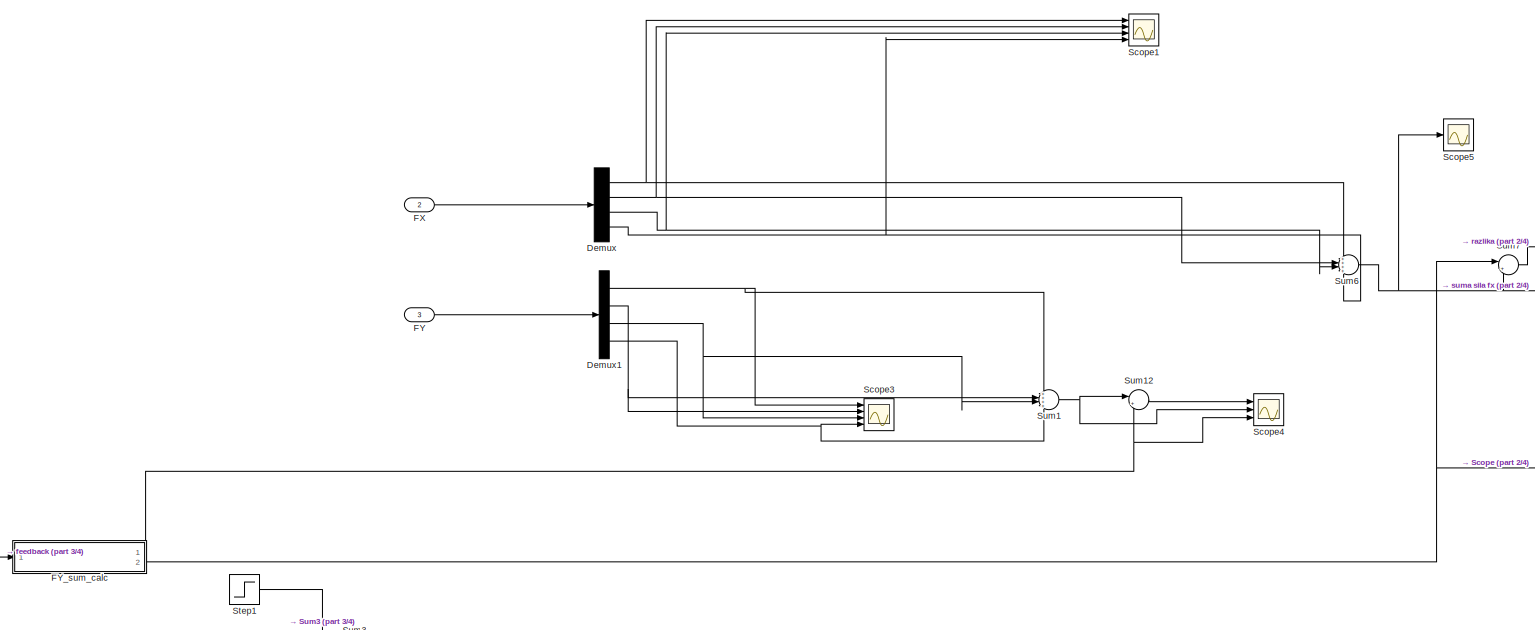
[diagram: Control Algorithm/speed control - part 1/4, top center region]
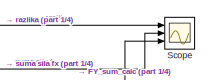
[diagram: Control Algorithm/speed control - part 2/4, top right region]
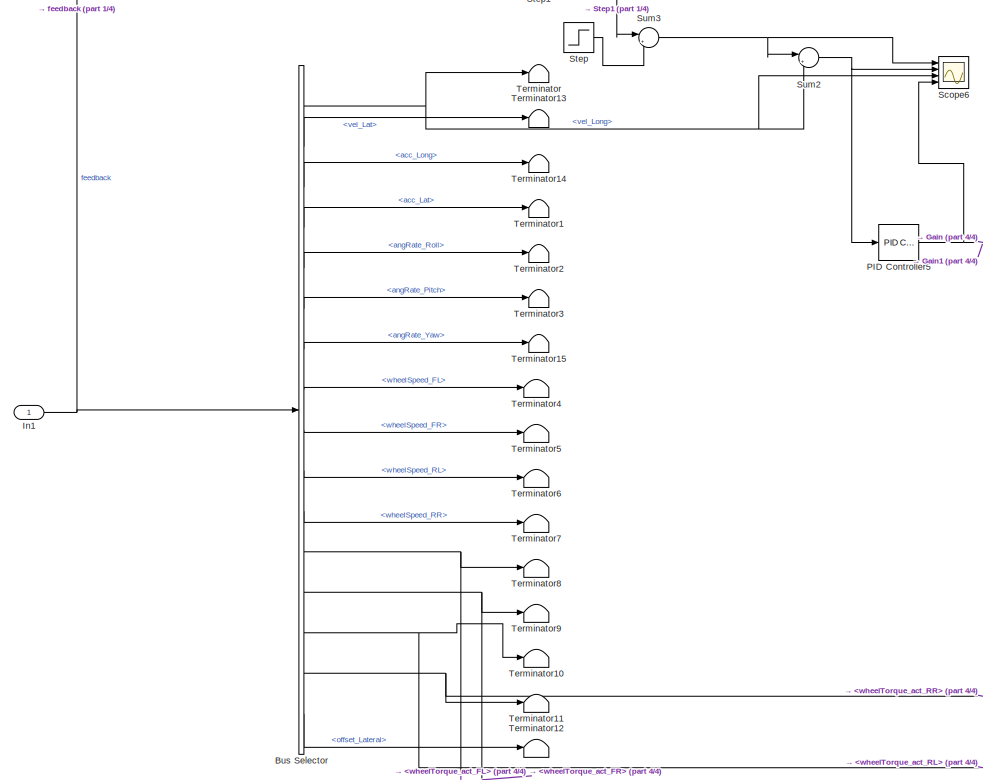
[diagram: Control Algorithm/speed control - part 3/4, bottom left region]
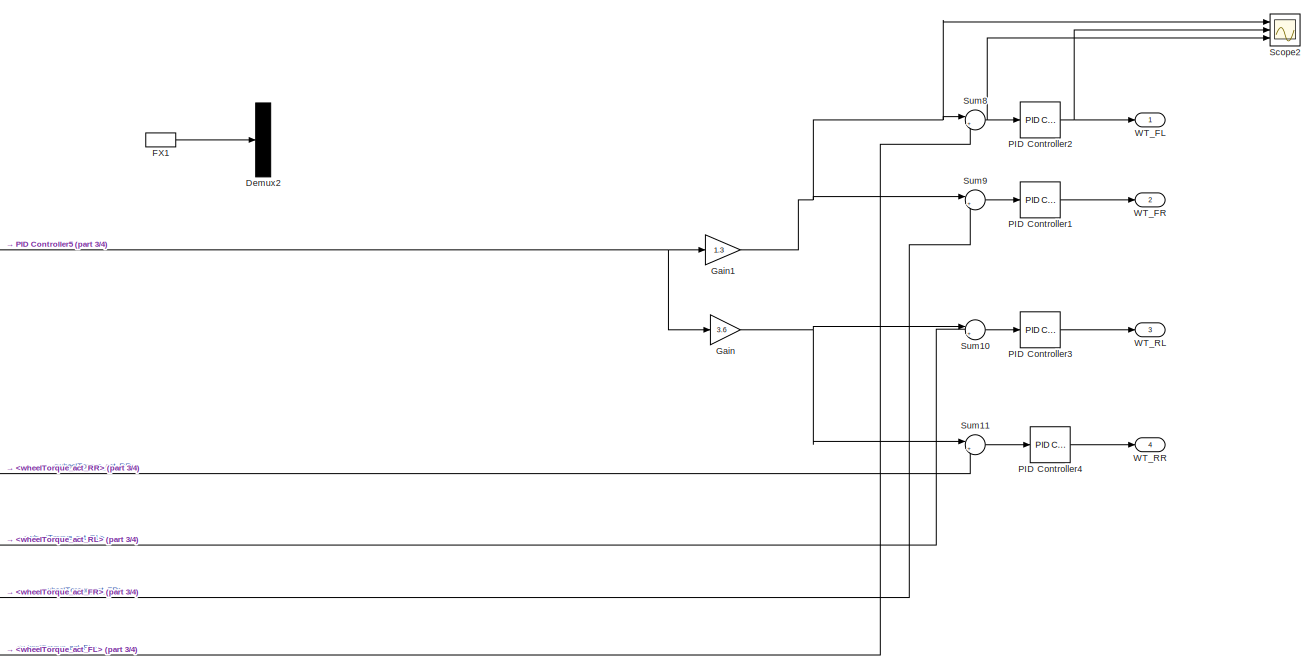
[diagram: Control Algorithm/speed control - part 4/4, bottom right region]
BLOCK [SubSystem] Control Algorithm/speed control
  Ports = [3, 4]
  RequestExecContextInheritance = off
  Variant = off
BLOCK [BusSelector] Control Algorithm/speed control/Bus Selector
  OutputAsBus = off
  Ports = [1, 16]
BLOCK [Demux] Control Algorithm/speed control/Demux
  DisplayOption = bar
  Ports = [1, 4]
BLOCK [Demux] Control Algorithm/speed control/Demux1
  DisplayOption = bar
  Ports = [1, 4]
BLOCK [Demux] Control Algorithm/speed control/Demux2
  DisplayOption = bar
  Ports = [1, 4]
BLOCK [Inport] Control Algorithm/speed control/FX
  IconDisplay = Port number
  Port = 2
BLOCK [InportShadow] Control Algorithm/speed control/FX1
  IconDisplay = Port number
  Port = 2
BLOCK [Inport] Control Algorithm/speed control/FY
  IconDisplay = Port number
  Port = 3
BLOCK [SubSystem] Control Algorithm/speed control/FY_sum_calc
  Ports = [1, 2]
  RequestExecContextInheritance = off
  Variant = off
BLOCK [BusSelector] Control Algorithm/speed control/FY_sum_calc/Bus Selector
  OutputAsBus = off
  Ports = [1, 16]
BLOCK [Outport] Control Algorithm/speed control/FY_sum_calc/FX_sum
  IconDisplay = Port number
  Port = 2
BLOCK [Outport] Control Algorithm/speed control/FY_sum_calc/FY_sum
  IconDisplay = Port number
BLOCK [Inport] Control Algorithm/speed control/FY_sum_calc/In1
  IconDisplay = Signal name
BLOCK [SubSystem] Control Algorithm/speed control/FY_sum_calc/MATLAB Function
  ErrorFcn = Stateflow.Translate.translate
  PermitHierarchicalResolution = ExplicitOnly
  Ports = [5, 2]
  RequestExecContextInheritance = off
  SFBlockType = MATLAB Function
  TreatAsAtomicUnit = on
  Variant = off
BLOCK [Demux] Control Algorithm/speed control/FY_sum_calc/MATLAB Function/ Demux 
  Outputs = 1
  Ports = [1, 1]
BLOCK [S-Function] Control Algorithm/speed control/FY_sum_calc/MATLAB Function/ SFunction 
  EnableBusSupport = on
  FunctionName = sf_sfun
  PortCounts = [5 3]
  Ports = [5, 3]
  SFcnIsStateOwnerBlock = off
  SFunctionDeploymentMode = off
  Tag = Stateflow S-Function solution84_02 21
BLOCK [Terminator] Control Algorithm/speed control/FY_sum_calc/MATLAB Function/ Terminator 
BLOCK [Inport] Control Algorithm/speed control/FY_sum_calc/MATLAB Function/ax
  IconDisplay = Port number
  Port = 3
BLOCK [Inport] Control Algorithm/speed control/FY_sum_calc/MATLAB Function/ay
  IconDisplay = Port number
  Port = 4
BLOCK [Outport] Control Algorithm/speed control/FY_sum_calc/MATLAB Function/fx
  IconDisplay = Port number
BLOCK [Outport] Control Algorithm/speed control/FY_sum_calc/MATLAB Function/fy
  IconDisplay = Port number
  Port = 2
BLOCK [Inport] Control Algorithm/speed control/FY_sum_calc/MATLAB Function/vx
  IconDisplay = Port number
BLOCK [Inport] Control Algorithm/speed control/FY_sum_calc/MATLAB Function/vy
  IconDisplay = Port number
  Port = 2
BLOCK [Inport] Control Algorithm/speed control/FY_sum_calc/MATLAB Function/yaw_rate
  IconDisplay = Port number
  Port = 5
BLOCK [Terminator] Control Algorithm/speed control/FY_sum_calc/Terminator1
BLOCK [Terminator] Control Algorithm/speed control/FY_sum_calc/Terminator10
BLOCK [Terminator] Control Algorithm/speed control/FY_sum_calc/Terminator11
BLOCK [Terminator] Control Algorithm/speed control/FY_sum_calc/Terminator12
BLOCK [Terminator] Control Algorithm/speed control/FY_sum_calc/Terminator13
BLOCK [Terminator] Control Algorithm/speed control/FY_sum_calc/Terminator14
BLOCK [Terminator] Control Algorithm/speed control/FY_sum_calc/Terminator15
BLOCK [Terminator] Control Algorithm/speed control/FY_sum_calc/Terminator16
BLOCK [Terminator] Control Algorithm/speed control/FY_sum_calc/Terminator2
BLOCK [Terminator] Control Algorithm/speed control/FY_sum_calc/Terminator3
BLOCK [Terminator] Control Algorithm/speed control/FY_sum_calc/Terminator4
BLOCK [Terminator] Control Algorithm/speed control/FY_sum_calc/Terminator5
BLOCK [Terminator] Control Algorithm/speed control/FY_sum_calc/Terminator6
BLOCK [Terminator] Control Algorithm/speed control/FY_sum_calc/Terminator7
BLOCK [Terminator] Control Algorithm/speed control/FY_sum_calc/Terminator8
BLOCK [Terminator] Control Algorithm/speed control/FY_sum_calc/Terminator9
BLOCK [Gain] Control Algorithm/speed control/Gain
  Gain = 3.6
  OutDataTypeStr = Inherit: Inherit via internal rule
  ParamDataTypeStr = Inherit: Inherit via internal rule
  SaturateOnIntegerOverflow = off
BLOCK [Gain] Control Algorithm/speed control/Gain1
  Gain = 1.3
  OutDataTypeStr = Inherit: Inherit via internal rule
  ParamDataTypeStr = Inherit: Inherit via internal rule
  SaturateOnIntegerOverflow = off
BLOCK [Inport] Control Algorithm/speed control/In1
  IconDisplay = Port number and signal name
BLOCK [Reference] Control Algorithm/speed control/PID Controller1  REF=simulink/Continuous/PID Controller
  Ports = [1, 1]
  SourceBlock = simulink/Continuous/PID Controller
  SourceProductBaseCode = SL
  SourceProductName = Simulink
  SourceType = PID 1dof
BLOCK [Reference] Control Algorithm/speed control/PID Controller2  REF=simulink/Continuous/PID Controller
  Ports = [1, 1]
  SourceBlock = simulink/Continuous/PID Controller
  SourceProductBaseCode = SL
  SourceProductName = Simulink
  SourceType = PID 1dof
BLOCK [Reference] Control Algorithm/speed control/PID Controller3  REF=simulink/Continuous/PID Controller
  Ports = [1, 1]
  SourceBlock = simulink/Continuous/PID Controller
  SourceProductBaseCode = SL
  SourceProductName = Simulink
  SourceType = PID 1dof
BLOCK [Reference] Control Algorithm/speed control/PID Controller4  REF=simulink/Continuous/PID Controller
  Ports = [1, 1]
  SourceBlock = simulink/Continuous/PID Controller
  SourceProductBaseCode = SL
  SourceProductName = Simulink
  SourceType = PID 1dof
BLOCK [Reference] Control Algorithm/speed control/PID Controller5  REF=simulink/Continuous/PID Controller
  Ports = [1, 1]
  SourceBlock = simulink/Continuous/PID Controller
  SourceProductBaseCode = SL
  SourceProductName = Simulink
  SourceType = PID 1dof
BLOCK [Scope] Control Algorithm/speed control/Scope
  NumInputPorts = 3
  Ports = [3]
  ScopeSpecificationString = Simulink.scopes.TimeScopeBlockCfg('CurrentConfiguration', extmgr.ConfigurationSet(extmgr.Configuration('Core','General UI',true),extmgr.Configuration('Core','Source UI',true),extmgr.Configuration('Sources','WiredSimulink',true,'DataLoggingVariableName','ScopeData2'),extmgr.Configuration('Visuals','Time Domain',true,'SerializedDisplays',{struct('MinYLimReal','-12294.57168','MaxYLimReal','21428.1197...<+1468ch>
BLOCK [Scope] Control Algorithm/speed control/Scope1
  NumInputPorts = 4
  Ports = [4]
  ScopeSpecificationString = Simulink.scopes.TimeScopeBlockCfg('CurrentConfiguration', extmgr.ConfigurationSet(extmgr.Configuration('Core','General UI',true),extmgr.Configuration('Core','Source UI',true),extmgr.Configuration('Sources','WiredSimulink',true,'DataLoggingVariableName','ScopeData9'),extmgr.Configuration('Visuals','Time Domain',true,'SerializedDisplays',{struct('MinYLimReal','196.61611','MaxYLimReal','292.26228','Y...<+1454ch>
BLOCK [Scope] Control Algorithm/speed control/Scope2
  NumInputPorts = 3
  Ports = [3]
  ScopeSpecificationString = Simulink.scopes.TimeScopeBlockCfg('CurrentConfiguration', extmgr.ConfigurationSet(extmgr.Configuration('Core','General UI',true),extmgr.Configuration('Core','Source UI',true),extmgr.Configuration('Sources','WiredSimulink',true,'DataLoggingVariableName','ScopeData14'),extmgr.Configuration('Visuals','Time Domain',true,'SerializedDisplays',{struct('MinYLimReal','-3862.53766','MaxYLimReal','1376.19869...<+1456ch>
BLOCK [Scope] Control Algorithm/speed control/Scope3
  NumInputPorts = 4
  Ports = [4]
  ScopeSpecificationString = Simulink.scopes.TimeScopeBlockCfg('CurrentConfiguration', extmgr.ConfigurationSet(extmgr.Configuration('Core','General UI',true),extmgr.Configuration('Core','Source UI',true),extmgr.Configuration('Sources','WiredSimulink',true,'DataLoggingVariableName','ScopeData20'),extmgr.Configuration('Visuals','Time Domain',true,'SerializedDisplays',{struct('MinYLimReal','-5810.37051','MaxYLimReal','5390.46036...<+1467ch>
BLOCK [Scope] Control Algorithm/speed control/Scope4
  NumInputPorts = 3
  Ports = [3]
  ScopeSpecificationString = Simulink.scopes.TimeScopeBlockCfg('CurrentConfiguration', extmgr.ConfigurationSet(extmgr.Configuration('Core','General UI',true),extmgr.Configuration('Core','Source UI',true),extmgr.Configuration('Sources','WiredSimulink',true,'DataLoggingVariableName','ScopeData21'),extmgr.Configuration('Visuals','Time Domain',true,'SerializedDisplays',{struct('MinYLimReal','-7599.74599','MaxYLimReal','15925.4080...<+1459ch>
BLOCK [Scope] Control Algorithm/speed control/Scope5
  NumInputPorts = 1
  Ports = [1]
  ScopeSpecificationString = Simulink.scopes.TimeScopeBlockCfg('CurrentConfiguration', extmgr.ConfigurationSet(extmgr.Configuration('Core','General UI',true),extmgr.Configuration('Core','Source UI',true),extmgr.Configuration('Sources','WiredSimulink',true,'DataLoggingVariableName','ScopeData22'),extmgr.Configuration('Visuals','Time Domain',true,'SerializedDisplays',{struct('MinYLimReal','-1124.79557','MaxYLimReal','-779.06596...<+1438ch>
BLOCK [Scope] Control Algorithm/speed control/Scope6
  NumInputPorts = 4
  Ports = [4]
  ScopeSpecificationString = Simulink.scopes.TimeScopeBlockCfg('CurrentConfiguration', extmgr.ConfigurationSet(extmgr.Configuration('Core','General UI',true),extmgr.Configuration('Core','Source UI',true),extmgr.Configuration('Sources','WiredSimulink',true,'DataLoggingVariableName','ScopeData24'),extmgr.Configuration('Visuals','Time Domain',true,'SerializedDisplays',{struct('MinYLimReal','-2130.84544','MaxYLimReal','861.3309',...<+1489ch>
BLOCK [Step] Control Algorithm/speed control/Step
  After = 0
  Time = 10
BLOCK [Step] Control Algorithm/speed control/Step1
  After = 60.2/3.6
  Before = 70.1/3.6
  Time = 10
BLOCK [Sum] Control Algorithm/speed control/Sum1
  IconShape = round
  InputSameDT = off
  Inputs = ++++
  OutDataTypeStr = Inherit: Inherit via internal rule
  Ports = [4, 1]
  SaturateOnIntegerOverflow = off
BLOCK [Sum] Control Algorithm/speed control/Sum10
  IconShape = round
  InputSameDT = off
  Inputs = |+-
  OutDataTypeStr = Inherit: Inherit via internal rule
  Ports = [2, 1]
  SaturateOnIntegerOverflow = off
BLOCK [Sum] Control Algorithm/speed control/Sum11
  IconShape = round
  InputSameDT = off
  Inputs = |+-
  OutDataTypeStr = Inherit: Inherit via internal rule
  Ports = [2, 1]
  SaturateOnIntegerOverflow = off
BLOCK [Sum] Control Algorithm/speed control/Sum12
  IconShape = round
  InputSameDT = off
  Inputs = |++
  OutDataTypeStr = Inherit: Inherit via internal rule
  Ports = [2, 1]
  SaturateOnIntegerOverflow = off
BLOCK [Sum] Control Algorithm/speed control/Sum2
  IconShape = round
  InputSameDT = off
  Inputs = |+-
  OutDataTypeStr = Inherit: Inherit via internal rule
  Ports = [2, 1]
  SaturateOnIntegerOverflow = off
BLOCK [Sum] Control Algorithm/speed control/Sum3
  IconShape = round
  InputSameDT = off
  Inputs = |++
  OutDataTypeStr = Inherit: Inherit via internal rule
  Ports = [2, 1]
  SaturateOnIntegerOverflow = off
BLOCK [Sum] Control Algorithm/speed control/Sum6
  IconShape = round
  InputSameDT = off
  Inputs = ++++
  OutDataTypeStr = Inherit: Inherit via internal rule
  Ports = [4, 1]
  SaturateOnIntegerOverflow = off
BLOCK [Sum] Control Algorithm/speed control/Sum7
  IconShape = round
  InputSameDT = off
  Inputs = |++
  OutDataTypeStr = Inherit: Inherit via internal rule
  Ports = [2, 1]
  SaturateOnIntegerOverflow = off
BLOCK [Sum] Control Algorithm/speed control/Sum8
  IconShape = round
  InputSameDT = off
  Inputs = |+-
  OutDataTypeStr = Inherit: Inherit via internal rule
  Ports = [2, 1]
  SaturateOnIntegerOverflow = off
BLOCK [Sum] Control Algorithm/speed control/Sum9
  IconShape = round
  InputSameDT = off
  Inputs = |+-
  OutDataTypeStr = Inherit: Inherit via internal rule
  Ports = [2, 1]
  SaturateOnIntegerOverflow = off
BLOCK [Terminator] Control Algorithm/speed control/Terminator
BLOCK [Terminator] Control Algorithm/speed control/Terminator1
BLOCK [Terminator] Control Algorithm/speed control/Terminator10
BLOCK [Terminator] Control Algorithm/speed control/Terminator11
BLOCK [Terminator] Control Algorithm/speed control/Terminator12
BLOCK [Terminator] Control Algorithm/speed control/Terminator13
BLOCK [Terminator] Control Algorithm/speed control/Terminator14
BLOCK [Terminator] Control Algorithm/speed control/Terminator15
BLOCK [Terminator] Control Algorithm/speed control/Terminator2
BLOCK [Terminator] Control Algorithm/speed control/Terminator3
BLOCK [Terminator] Control Algorithm/speed control/Terminator4
BLOCK [Terminator] Control Algorithm/speed control/Terminator5
BLOCK [Terminator] Control Algorithm/speed control/Terminator6
BLOCK [Terminator] Control Algorithm/speed control/Terminator7
BLOCK [Terminator] Control Algorithm/speed control/Terminator8
BLOCK [Terminator] Control Algorithm/speed control/Terminator9
BLOCK [Outport] Control Algorithm/speed control/WT_FL 
  IconDisplay = Port number
BLOCK [Outport] Control Algorithm/speed control/WT_FR
  IconDisplay = Port number
  Port = 2
BLOCK [Outport] Control Algorithm/speed control/WT_RL
  IconDisplay = Port number
  Port = 3
BLOCK [Outport] Control Algorithm/speed control/WT_RR
  IconDisplay = Port number
  Port = 4
BLOCK [SubSystem] Control Algorithm/steer angle block 
  Ports = [1, 2]
  RequestExecContextInheritance = off
  Variant = off
BLOCK [BusSelector] Control Algorithm/steer angle block /Bus Selector
  OutputAsBus = off
  OutputSignals = pos_X,pos_Y,vel_Long,vel_Lat,acc_Long,acc_Lat,angRate_Roll,angRate_Pitch,angRate_Yaw,wheelSpeed_FL,wheelSpeed_FR,wheelSpeed_RL,wheelSpeed_RR,wheelTorque_act_FL,wheelTorque_act_FR,wheelTorque_act_RL,wheelTorque_act_RR,offset_Lateral
  Ports = [1, 18]
BLOCK [Constant] Control Algorithm/steer angle block /Constant
  Value = 90
BLOCK [Display] Control Algorithm/steer angle block /Display
  Decimation = 1
  Ports = [1]
BLOCK [Display] Control Algorithm/steer angle block /Display1
  Decimation = 1
  Ports = [1]
BLOCK [Gain] Control Algorithm/steer angle block /Gain
  Gain = 0
  OutDataTypeStr = Inherit: Inherit via internal rule
  ParamDataTypeStr = Inherit: Inherit via internal rule
  SaturateOnIntegerOverflow = off
BLOCK [Inport] Control Algorithm/steer angle block /In1
  IconDisplay = Port number and signal name
BLOCK [Integrator] Control Algorithm/steer angle block /Integrator
  Ports = [1, 1]
BLOCK [SubSystem] Control Algorithm/steer angle block /MATLAB Function
  ErrorFcn = Stateflow.Translate.translate
  PermitHierarchicalResolution = ExplicitOnly
  Ports = [5, 5]
  RequestExecContextInheritance = off
  SFBlockType = MATLAB Function
  TreatAsAtomicUnit = on
  Variant = off
BLOCK [Demux] Control Algorithm/steer angle block /MATLAB Function/ Demux 
  Outputs = 1
  Ports = [1, 1]
BLOCK [S-Function] Control Algorithm/steer angle block /MATLAB Function/ SFunction 
  EnableBusSupport = on
  FunctionName = sf_sfun
  PortCounts = [5 6]
  Ports = [5, 6]
  SFcnIsStateOwnerBlock = off
  SFunctionDeploymentMode = off
  Tag = Stateflow S-Function solution84_02 2
BLOCK [Terminator] Control Algorithm/steer angle block /MATLAB Function/ Terminator 
BLOCK [Outport] Control Algorithm/steer angle block /MATLAB Function/R
  IconDisplay = Port number
  Port = 5
BLOCK [Outport] Control Algorithm/steer angle block /MATLAB Function/ex
  IconDisplay = Port number
  Port = 3
BLOCK [Outport] Control Algorithm/steer angle block /MATLAB Function/ey
  IconDisplay = Port number
  Port = 4
BLOCK [Inport] Control Algorithm/steer angle block /MATLAB Function/offset_lat
  IconDisplay = Port number
  Port = 5
BLOCK [Inport] Control Algorithm/steer angle block /MATLAB Function/vx
  IconDisplay = Port number
  Port = 3
BLOCK [Inport] Control Algorithm/steer angle block /MATLAB Function/vy
  IconDisplay = Port number
  Port = 4
BLOCK [Inport] Control Algorithm/steer angle block /MATLAB Function/xin
  IconDisplay = Port number
BLOCK [Outport] Control Algorithm/steer angle block /MATLAB Function/yaw
  IconDisplay = Port number
BLOCK [Outport] Control Algorithm/steer angle block /MATLAB Function/yawdeg
  IconDisplay = Port number
  Port = 2
BLOCK [Inport] Control Algorithm/steer angle block /MATLAB Function/yin
  IconDisplay = Port number
  Port = 2
BLOCK [ManualSwitch] Control Algorithm/steer angle block /Manual Switch
  CurrentSetting = 0
BLOCK [ManualSwitch] Control Algorithm/steer angle block /Manual Switch1
  CurrentSetting = 0
BLOCK [Mux] Control Algorithm/steer angle block /Mux
  DisplayOption = bar
  Ports = [4, 1]
BLOCK [Mux] Control Algorithm/steer angle block /Mux1
  DisplayOption = bar
  Inputs = 2
  Ports = [2, 1]
BLOCK [Reference] Control Algorithm/steer angle block /PID Controller  REF=simulink/Continuous/PID Controller
  Ports = [1, 1]
  SourceBlock = simulink/Continuous/PID Controller
  SourceProductBaseCode = SL
  SourceProductName = Simulink
  SourceType = PID 1dof
BLOCK [Reference] Control Algorithm/steer angle block /PID Controller1  REF=simulink/Continuous/PID Controller
  Ports = [1, 1]
  SourceBlock = simulink/Continuous/PID Controller
  SourceProductBaseCode = SL
  SourceProductName = Simulink
  SourceType = PID 1dof
BLOCK [Scope] Control Algorithm/steer angle block /Scope1
  NumInputPorts = 1
  Ports = [1]
  ScopeSpecificationString = Simulink.scopes.TimeScopeBlockCfg('CurrentConfiguration', extmgr.ConfigurationSet(extmgr.Configuration('Core','General UI',true),extmgr.Configuration('Core','Source UI',true),extmgr.Configuration('Sources','WiredSimulink',true,'DataLoggingVariableName','ScopeData13'),extmgr.Configuration('Visuals','Time Domain',true,'SerializedDisplays',{struct('MinYLimReal','-29.36922','MaxYLimReal','10.95831','Y...<+1494ch>
BLOCK [Scope] Control Algorithm/steer angle block /Scope2
  NumInputPorts = 1
  Ports = [1]
  ScopeSpecificationString = Simulink.scopes.TimeScopeBlockCfg('CurrentConfiguration', extmgr.ConfigurationSet(extmgr.Configuration('Core','General UI',true),extmgr.Configuration('Core','Source UI',true),extmgr.Configuration('Sources','WiredSimulink',true,'DataLoggingVariableName','ScopeData12'),extmgr.Configuration('Visuals','Time Domain',true,'SerializedDisplays',{struct('MinYLimReal','-1.00000','MaxYLimReal','1.00000','YLa...<+1412ch>
BLOCK [Scope] Control Algorithm/steer angle block /Scope3
  NumInputPorts = 1
  Ports = [1]
  ScopeSpecificationString = Simulink.scopes.TimeScopeBlockCfg('CurrentConfiguration', extmgr.ConfigurationSet(extmgr.Configuration('Core','General UI',true),extmgr.Configuration('Core','Source UI',true),extmgr.Configuration('Sources','WiredSimulink',true,'DataLoggingVariableName','ScopeData3'),extmgr.Configuration('Visuals','Time Domain',true,'SerializedDisplays',{struct('MinYLimReal','-0.00441','MaxYLimReal','0.02672','YLab...<+1416ch>
BLOCK [Scope] Control Algorithm/steer angle block /Scope4
  NumInputPorts = 4
  Ports = [4]
  ScopeSpecificationString = Simulink.scopes.TimeScopeBlockCfg('CurrentConfiguration', extmgr.ConfigurationSet(extmgr.Configuration('Core','General UI',true),extmgr.Configuration('Core','Source UI',true),extmgr.Configuration('Sources','WiredSimulink',true,'DataLoggingVariableName','ScopeData23'),extmgr.Configuration('Visuals','Time Domain',true,'SerializedDisplays',{struct('MinYLimReal','-0.70573','MaxYLimReal','0.25406','YLa...<+1486ch>
BLOCK [Step] Control Algorithm/steer angle block /Step
  After = 0
  SampleTime = 0
  Time = 0
BLOCK [Sum] Control Algorithm/steer angle block /Sum
  IconShape = round
  InputSameDT = off
  Inputs = |+-
  OutDataTypeStr = Inherit: Inherit via internal rule
  Ports = [2, 1]
  SaturateOnIntegerOverflow = off
BLOCK [Sum] Control Algorithm/steer angle block /Sum1
  IconShape = round
  InputSameDT = off
  Inputs = |++
  OutDataTypeStr = Inherit: Inherit via internal rule
  Ports = [2, 1]
  SaturateOnIntegerOverflow = off
BLOCK [Terminator] Control Algorithm/steer angle block /Terminator
BLOCK [Terminator] Control Algorithm/steer angle block /Terminator1
BLOCK [Terminator] Control Algorithm/steer angle block /Terminator10
BLOCK [Terminator] Control Algorithm/steer angle block /Terminator11
BLOCK [Terminator] Control Algorithm/steer angle block /Terminator12
BLOCK [Terminator] Control Algorithm/steer angle block /Terminator13
BLOCK [Terminator] Control Algorithm/steer angle block /Terminator14
BLOCK [Terminator] Control Algorithm/steer angle block /Terminator15
BLOCK [Terminator] Control Algorithm/steer angle block /Terminator2
BLOCK [Terminator] Control Algorithm/steer angle block /Terminator3
BLOCK [Terminator] Control Algorithm/steer angle block /Terminator4
BLOCK [Terminator] Control Algorithm/steer angle block /Terminator5
BLOCK [Terminator] Control Algorithm/steer angle block /Terminator6
BLOCK [Terminator] Control Algorithm/steer angle block /Terminator7
BLOCK [Terminator] Control Algorithm/steer angle block /Terminator8
BLOCK [Terminator] Control Algorithm/steer angle block /Terminator9
BLOCK [Outport] Control Algorithm/steer angle block /corner radius
  IconDisplay = Port number
  Port = 2
BLOCK [Outport] Control Algorithm/steer angle block /steer 
  IconDisplay = Port number
BLOCK [FMU] FMU
  FMUDebugLogging = on
  FMUMode = CoSimulation
  FMUName = MED2018_VehicleModel.fmu
  FMUSampleTime = -1
  MaskDisplay = if (exist([Simulink.fileGenControl('get','CacheFolder') '\slprj\_fmu\0154b415445edacf1ab5fb2809e83a1a\MED2018_VehicleModel\model.png'],'file'))\n    image([Simulink.fileGenControl('get','CacheFolder') '\slprj\_fmu\0154b415445edacf1ab5fb2809e83a1a\MED2018_VehicleModel\model.png']);\n    text(0.03, 0.97, 'MED2018.VehicleModel', 'horizontalAlignment', 'left', 'verticalAlignment', 'top');\nelse\n    disp(...<+1077ch>
  MaskPromptString = Communication StepsizeCommunication stepsize between FMU and Simulink
  MaskType = MED2018.VehicleModel [Co-Simulation, v2.0]
  Ports = [5, 21]
BLOCK [Gain] Gain
  Gain = 3600/1000
  OutDataTypeStr = Inherit: Inherit via internal rule
  ParamDataTypeStr = Inherit: Inherit via internal rule
  SaturateOnIntegerOverflow = off
BLOCK [SubSystem] Gauge
  DialogController = hmiCreateDDGDialog
  IsWebBlock = on
  MaskHideContents = on
  Ports = []
  RequestExecContextInheritance = off
  Variant = off
BLOCK [Integrator] Integrator
  Ports = [1, 1]
BLOCK [Product] Product
  InputSameDT = off
  OutDataTypeStr = Inherit: Inherit via internal rule
  Ports = [2, 1]
  RndMeth = Floor
  SaturateOnIntegerOverflow = off
BLOCK [Product] Product1
  InputSameDT = off
  OutDataTypeStr = Inherit: Inherit via internal rule
  Ports = [2, 1]
  RndMeth = Floor
  SaturateOnIntegerOverflow = off
BLOCK [Display] Reward Function
  Decimation = 1
  Ports = [1]
BLOCK [Scope] Scope
  NumInputPorts = 1
  Ports = [1]
  ScopeSpecificationString = Simulink.scopes.TimeScopeBlockCfg('CurrentConfiguration', extmgr.ConfigurationSet(extmgr.Configuration('Core','General UI',true),extmgr.Configuration('Core','Source UI',true),extmgr.Configuration('Sources','WiredSimulink',true,'DataLoggingVariableName','ScopeData1'),extmgr.Configuration('Visuals','Time Domain',true,'SerializedDisplays',{struct('MinYLimReal','36.67508','MaxYLimReal','64.16729','YLa...<+1398ch>
BLOCK [Scope] Scope1
  NumInputPorts = 1
  Ports = [1]
  ScopeSpecificationString = Simulink.scopes.TimeScopeBlockCfg('CurrentConfiguration', extmgr.ConfigurationSet(extmgr.Configuration('Core','General UI',true),extmgr.Configuration('Core','Source UI',true),extmgr.Configuration('Sources','WiredSimulink',true,'DataLoggingVariableName','ScopeData2'),extmgr.Configuration('Visuals','Time Domain',true,'SerializedDisplays',{struct('MinYLimReal','-0.14173','MaxYLimReal','0.05914','YLab...<+1427ch>
BLOCK [Scope] Scope2
  NumInputPorts = 1
  Ports = [1]
  ScopeSpecificationString = Simulink.scopes.TimeScopeBlockCfg('CurrentConfiguration', extmgr.ConfigurationSet(extmgr.Configuration('Core','General UI',true),extmgr.Configuration('Core','Source UI',true),extmgr.Configuration('Sources','WiredSimulink',true,'DataLoggingVariableName','ScopeData3'),extmgr.Configuration('Visuals','Time Domain',true,'SerializedDisplays',{struct('MinYLimReal','-0.09909','MaxYLimReal','0.12258','YLab...<+1399ch>
BLOCK [Scope] Scope3
  NumInputPorts = 1
  Ports = [1]
  ScopeSpecificationString = Simulink.scopes.TimeScopeBlockCfg('CurrentConfiguration', extmgr.ConfigurationSet(extmgr.Configuration('Core','General UI',true),extmgr.Configuration('Core','Source UI',true),extmgr.Configuration('Sources','WiredSimulink',true,'DataLoggingVariableName','ScopeData11'),extmgr.Configuration('Visuals','Time Domain',true,'SerializedDisplays',{struct('MinYLimReal','-7.1932','MaxYLimReal','5.21229','YLab...<+1394ch>
BLOCK [Scope] Scope4
  NumInputPorts = 1
  Ports = [1]
  ScopeSpecificationString = Simulink.scopes.TimeScopeBlockCfg('CurrentConfiguration', extmgr.ConfigurationSet(extmgr.Configuration('Core','General UI',true),extmgr.Configuration('Core','Source UI',true),extmgr.Configuration('Sources','WiredSimulink',true,'DataLoggingVariableName','ScopeData3'),extmgr.Configuration('Visuals','Time Domain',true,'SerializedDisplays',{struct('MinYLimReal','6.15297','MaxYLimReal','105.80353','YLa...<+1440ch>
BLOCK [Scope] Scope5
  NumInputPorts = 1
  Ports = [1]
  ScopeSpecificationString = Simulink.scopes.TimeScopeBlockCfg('CurrentConfiguration', extmgr.ConfigurationSet(extmgr.Configuration('Core','General UI',true),extmgr.Configuration('Core','Source UI',true),extmgr.Configuration('Sources','WiredSimulink',true,'DataLoggingVariableName','ScopeData25'),extmgr.Configuration('Visuals','Time Domain',true,'SerializedDisplays',{struct('MinYLimReal','-11.68864','MaxYLimReal','2.05851','YL...<+1408ch>
BLOCK [Scope] Scope6
  NumInputPorts = 1
  Ports = [1]
  ScopeSpecificationString = Simulink.scopes.TimeScopeBlockCfg('CurrentConfiguration', extmgr.ConfigurationSet(extmgr.Configuration('Core','General UI',true),extmgr.Configuration('Core','Source UI',true),extmgr.Configuration('Sources','WiredSimulink',true,'DataLoggingVariableName','ScopeData1'),extmgr.Configuration('Visuals','Time Domain',true,'SerializedDisplays',{struct('MinYLimReal','0.9451','MaxYLimReal','1.03519','YLabel...<+1420ch>
BLOCK [Display] Simulation State
  Decimation = 1
  Ports = [1]
BLOCK [Sqrt] Sqrt
BLOCK [Sum] Sum
  IconShape = round
  InputSameDT = off
  Inputs = |++
  OutDataTypeStr = Inherit: Inherit via internal rule
  Ports = [2, 1]
  SaturateOnIntegerOverflow = off
BLOCK [Reference] XY Graph  REF=simulink/Sinks/XY Graph
  Ports = [2]
  SourceBlock = simulink/Sinks/XY Graph
  SourceProductBaseCode = SL
  SourceProductName = Simulink
  SourceType = XY scope.
BLOCK [Display] side slip 
  Decimation = 1
  Ports = [1]
BLOCK [SubSystem] side_slip_calc
  Ports = [2, 1]
  RequestExecContextInheritance = off
  Variant = off
BLOCK [Trigonometry] side_slip_calc/Trigonometric Function
  Operator = atan2
  Ports = [2, 1]
BLOCK [Outport] side_slip_calc/side_slip
  IconDisplay = Port number
BLOCK [Inport] side_slip_calc/vel_Lat
  IconDisplay = Port number
  Port = 2
BLOCK [Inport] side_slip_calc/vel_Long
  IconDisplay = Port number
BLOCK [Display] speed 
  Decimation = 1
  Ports = [1]
NET Bus Creator:1 -> Bus Selector:1, Control Algorithm:1
LINE Bus Selector1:1 -> FMU:1
LINE Bus Selector1:2 -> FMU:2
LINE Bus Selector1:3 -> FMU:3
LINE Bus Selector1:4 -> FMU:4
LINE Bus Selector1:5 -> FMU:5
LINE Bus Selector:1 -> Reward Function:1
NET Bus Selector:2 -> Scope6:1, Simulation State:1
LINE Control Algorithm/Bus Creator:1 -> Control Algorithm/Actuation:1
NET Control Algorithm/Feedback:1 -> Control Algorithm/Subsystem1:1, Control Algorithm/Subsystem:1, Control Algorithm/roll_stifnes_calc 1:1, Control Algorithm/roll_stifnes_calc :1, Control Algorithm/speed control:1, Control Algorithm/steer angle block :1
NET Control Algorithm/Mux2:1 -> Control Algorithm/Scope10:1, Control Algorithm/speed control:3
NET Control Algorithm/Mux5:1 -> Control Algorithm/Scope15:1, Control Algorithm/speed control:2
LINE Control Algorithm/Subsystem/Constant1:1 -> Control Algorithm/Subsystem/MATLAB Function6:3
LINE Control Algorithm/Subsystem/Constant2:1 -> Control Algorithm/Subsystem/MATLAB Function7:3
NET Control Algorithm/Subsystem/In1:1 -> Control Algorithm/Subsystem/alpha_calc1:1, Control Algorithm/Subsystem/alpha_calc:1, Control Algorithm/Subsystem/lamda_alpha_calc:1, Control Algorithm/Subsystem/vertical load distribution:1
NET Control Algorithm/Subsystem/MATLAB Function1:1 -> Control Algorithm/Subsystem/MATLAB Function5:1, Control Algorithm/Subsystem/Scope1:2
LINE Control Algorithm/Subsystem/MATLAB Function1:2 -> Control Algorithm/Subsystem/MATLAB Function5:2
NET Control Algorithm/Subsystem/MATLAB Function2:1 -> Control Algorithm/Subsystem/MATLAB Function6:1, Control Algorithm/Subsystem/Scope1:3
LINE Control Algorithm/Subsystem/MATLAB Function2:2 -> Control Algorithm/Subsystem/MATLAB Function6:2
NET Control Algorithm/Subsystem/MATLAB Function3:1 -> Control Algorithm/Subsystem/MATLAB Function7:1, Control Algorithm/Subsystem/Scope1:4
LINE Control Algorithm/Subsystem/MATLAB Function3:2 -> Control Algorithm/Subsystem/MATLAB Function7:2
LINE Control Algorithm/Subsystem/MATLAB Function4:1 -> Control Algorithm/Subsystem/FX_fl:1
LINE Control Algorithm/Subsystem/MATLAB Function4:2 -> Control Algorithm/Subsystem/FY_fl:1
LINE Control Algorithm/Subsystem/MATLAB Function5:1 -> Control Algorithm/Subsystem/FX_fr:1
LINE Control Algorithm/Subsystem/MATLAB Function5:2 -> Control Algorithm/Subsystem/FY_fr:1
LINE Control Algorithm/Subsystem/MATLAB Function6:1 -> Control Algorithm/Subsystem/FX_rl:1
LINE Control Algorithm/Subsystem/MATLAB Function6:2 -> Control Algorithm/Subsystem/FY_rl:1
LINE Control Algorithm/Subsystem/MATLAB Function7:1 -> Control Algorithm/Subsystem/FX_rr:1
LINE Control Algorithm/Subsystem/MATLAB Function7:2 -> Control Algorithm/Subsystem/FY_rr:1
NET Control Algorithm/Subsystem/MATLAB Function:1 -> Control Algorithm/Subsystem/MATLAB Function4:1, Control Algorithm/Subsystem/Scope1:1
LINE Control Algorithm/Subsystem/MATLAB Function:2 -> Control Algorithm/Subsystem/MATLAB Function4:2
NET Control Algorithm/Subsystem/alpha_calc/Bus Selector:1 -> Control Algorithm/Subsystem/alpha_calc/MATLAB Function:1, Control Algorithm/Subsystem/alpha_calc/Scope3:1, Control Algorithm/Subsystem/alpha_calc/Terminator14:1, Control Algorithm/Subsystem/alpha_calc/side_slip_calc:1
LINE Control Algorithm/Subsystem/alpha_calc/Bus Selector:10 -> Control Algorithm/Subsystem/alpha_calc/Terminator6:1
LINE Control Algorithm/Subsystem/alpha_calc/Bus Selector:11 -> Control Algorithm/Subsystem/alpha_calc/Terminator7:1
LINE Control Algorithm/Subsystem/alpha_calc/Bus Selector:12 -> Control Algorithm/Subsystem/alpha_calc/Terminator8:1
LINE Control Algorithm/Subsystem/alpha_calc/Bus Selector:13 -> Control Algorithm/Subsystem/alpha_calc/Terminator9:1
LINE Control Algorithm/Subsystem/alpha_calc/Bus Selector:14 -> Control Algorithm/Subsystem/alpha_calc/Terminator10:1
LINE Control Algorithm/Subsystem/alpha_calc/Bus Selector:15 -> Control Algorithm/Subsystem/alpha_calc/Terminator11:1
LINE Control Algorithm/Subsystem/alpha_calc/Bus Selector:16 -> Control Algorithm/Subsystem/alpha_calc/Terminator12:1
NET Control Algorithm/Subsystem/alpha_calc/Bus Selector:2 -> Control Algorithm/Subsystem/alpha_calc/MATLAB Function:3, Control Algorithm/Subsystem/alpha_calc/Scope4:1, Control Algorithm/Subsystem/alpha_calc/Terminator13:1, Control Algorithm/Subsystem/alpha_calc/side_slip_calc:2
LINE Control Algorithm/Subsystem/alpha_calc/Bus Selector:3 -> Control Algorithm/Subsystem/alpha_calc/Terminator1:1
LINE Control Algorithm/Subsystem/alpha_calc/Bus Selector:4 -> Control Algorithm/Subsystem/alpha_calc/Terminator15:1
LINE Control Algorithm/Subsystem/alpha_calc/Bus Selector:5 -> Control Algorithm/Subsystem/alpha_calc/Terminator2:1
LINE Control Algorithm/Subsystem/alpha_calc/Bus Selector:6 -> Control Algorithm/Subsystem/alpha_calc/Terminator3:1
NET Control Algorithm/Subsystem/alpha_calc/Bus Selector:7 -> Control Algorithm/Subsystem/alpha_calc/Integrator:1, Control Algorithm/Subsystem/alpha_calc/MATLAB Function:5, Control Algorithm/Subsystem/alpha_calc/Scope1:1, Control Algorithm/Subsystem/alpha_calc/Terminator16:1
LINE Control Algorithm/Subsystem/alpha_calc/Bus Selector:8 -> Control Algorithm/Subsystem/alpha_calc/Terminator4:1
LINE Control Algorithm/Subsystem/alpha_calc/Bus Selector:9 -> Control Algorithm/Subsystem/alpha_calc/Terminator5:1
LINE Control Algorithm/Subsystem/alpha_calc/In1:1 -> Control Algorithm/Subsystem/alpha_calc/Bus Selector:1
NET Control Algorithm/Subsystem/alpha_calc/Integrator:1 -> Control Algorithm/Subsystem/alpha_calc/MATLAB Function:4, Control Algorithm/Subsystem/alpha_calc/Scope5:1
NET Control Algorithm/Subsystem/alpha_calc/MATLAB Function:1 -> Control Algorithm/Subsystem/alpha_calc/Mux:1, Control Algorithm/Subsystem/alpha_calc/Scope11:1, Control Algorithm/Subsystem/alpha_calc/alpha_fl:1
NET Control Algorithm/Subsystem/alpha_calc/MATLAB Function:2 -> Control Algorithm/Subsystem/alpha_calc/Mux:2, Control Algorithm/Subsystem/alpha_calc/Scope11:2, Control Algorithm/Subsystem/alpha_calc/alpha_fr:1
NET Control Algorithm/Subsystem/alpha_calc/MATLAB Function:3 -> Control Algorithm/Subsystem/alpha_calc/Mux:3, Control Algorithm/Subsystem/alpha_calc/Scope11:3, Control Algorithm/Subsystem/alpha_calc/Scope6:1, Control Algorithm/Subsystem/alpha_calc/alpha_rl:1
NET Control Algorithm/Subsystem/alpha_calc/MATLAB Function:4 -> Control Algorithm/Subsystem/alpha_calc/Mux:4, Control Algorithm/Subsystem/alpha_calc/Scope11:4, Control Algorithm/Subsystem/alpha_calc/alpha_rr:1
NET Control Algorithm/Subsystem/alpha_calc/MATLAB Function:5 -> Control Algorithm/Subsystem/alpha_calc/Mux:5, Control Algorithm/Subsystem/alpha_calc/Scope2:1, Control Algorithm/Subsystem/alpha_calc/deltafl:1
NET Control Algorithm/Subsystem/alpha_calc/MATLAB Function:6 -> Control Algorithm/Subsystem/alpha_calc/Mux:6, Control Algorithm/Subsystem/alpha_calc/deltafr:1
LINE Control Algorithm/Subsystem/alpha_calc/MATLAB Function:7 -> Control Algorithm/Subsystem/alpha_calc/Scope8:1
LINE Control Algorithm/Subsystem/alpha_calc/MATLAB Function:8 -> Control Algorithm/Subsystem/alpha_calc/Scope8:2
LINE Control Algorithm/Subsystem/alpha_calc/Mux:1 -> Control Algorithm/Subsystem/alpha_calc/Scope:1
LINE Control Algorithm/Subsystem/alpha_calc/side_slip_calc/Trigonometric Function:1 -> Control Algorithm/Subsystem/alpha_calc/side_slip_calc/side_slip:1
LINE Control Algorithm/Subsystem/alpha_calc/side_slip_calc/vel_Lat:1 -> Control Algorithm/Subsystem/alpha_calc/side_slip_calc/Trigonometric Function:1
LINE Control Algorithm/Subsystem/alpha_calc/side_slip_calc/vel_Long:1 -> Control Algorithm/Subsystem/alpha_calc/side_slip_calc/Trigonometric Function:2
NET Control Algorithm/Subsystem/alpha_calc/side_slip_calc:1 -> Control Algorithm/Subsystem/alpha_calc/MATLAB Function:2, Control Algorithm/Subsystem/alpha_calc/Scope8:3, Control Algorithm/Subsystem/alpha_calc/Scope9:1
NET Control Algorithm/Subsystem/alpha_calc1/Bus Selector:1 -> Control Algorithm/Subsystem/alpha_calc1/MATLAB Function:1, Control Algorithm/Subsystem/alpha_calc1/Terminator14:1
LINE Control Algorithm/Subsystem/alpha_calc1/Bus Selector:10 -> Control Algorithm/Subsystem/alpha_calc1/Terminator6:1
LINE Control Algorithm/Subsystem/alpha_calc1/Bus Selector:11 -> Control Algorithm/Subsystem/alpha_calc1/Terminator7:1
LINE Control Algorithm/Subsystem/alpha_calc1/Bus Selector:12 -> Control Algorithm/Subsystem/alpha_calc1/Terminator8:1
LINE Control Algorithm/Subsystem/alpha_calc1/Bus Selector:13 -> Control Algorithm/Subsystem/alpha_calc1/Terminator9:1
LINE Control Algorithm/Subsystem/alpha_calc1/Bus Selector:14 -> Control Algorithm/Subsystem/alpha_calc1/Terminator10:1
LINE Control Algorithm/Subsystem/alpha_calc1/Bus Selector:15 -> Control Algorithm/Subsystem/alpha_calc1/Terminator11:1
LINE Control Algorithm/Subsystem/alpha_calc1/Bus Selector:16 -> Control Algorithm/Subsystem/alpha_calc1/Terminator12:1
NET Control Algorithm/Subsystem/alpha_calc1/Bus Selector:2 -> Control Algorithm/Subsystem/alpha_calc1/MATLAB Function:2, Control Algorithm/Subsystem/alpha_calc1/Terminator13:1
LINE Control Algorithm/Subsystem/alpha_calc1/Bus Selector:3 -> Control Algorithm/Subsystem/alpha_calc1/Terminator1:1
LINE Control Algorithm/Subsystem/alpha_calc1/Bus Selector:4 -> Control Algorithm/Subsystem/alpha_calc1/Terminator15:1
LINE Control Algorithm/Subsystem/alpha_calc1/Bus Selector:5 -> Control Algorithm/Subsystem/alpha_calc1/Terminator2:1
LINE Control Algorithm/Subsystem/alpha_calc1/Bus Selector:6 -> Control Algorithm/Subsystem/alpha_calc1/Terminator3:1
NET Control Algorithm/Subsystem/alpha_calc1/Bus Selector:7 -> Control Algorithm/Subsystem/alpha_calc1/Integrator:1, Control Algorithm/Subsystem/alpha_calc1/Terminator16:1
LINE Control Algorithm/Subsystem/alpha_calc1/Bus Selector:8 -> Control Algorithm/Subsystem/alpha_calc1/Terminator4:1
LINE Control Algorithm/Subsystem/alpha_calc1/Bus Selector:9 -> Control Algorithm/Subsystem/alpha_calc1/Terminator5:1
LINE Control Algorithm/Subsystem/alpha_calc1/In1:1 -> Control Algorithm/Subsystem/alpha_calc1/Bus Selector:1
LINE Control Algorithm/Subsystem/alpha_calc1/Integrator:1 -> Control Algorithm/Subsystem/alpha_calc1/MATLAB Function:3
LINE Control Algorithm/Subsystem/alpha_calc1/MATLAB Function:1 -> Control Algorithm/Subsystem/alpha_calc1/Scope:1
LINE Control Algorithm/Subsystem/alpha_calc1/MATLAB Function:2 -> Control Algorithm/Subsystem/alpha_calc1/Scope:2
NET Control Algorithm/Subsystem/alpha_calc:1 -> Control Algorithm/Subsystem/Scope4:1, Control Algorithm/Subsystem/lamda_alpha_calc:4
NET Control Algorithm/Subsystem/alpha_calc:2 -> Control Algorithm/Subsystem/Scope4:2, Control Algorithm/Subsystem/lamda_alpha_calc:5
NET Control Algorithm/Subsystem/alpha_calc:3 -> Control Algorithm/Subsystem/Scope4:3, Control Algorithm/Subsystem/lamda_alpha_calc:6
NET Control Algorithm/Subsystem/alpha_calc:4 -> Control Algorithm/Subsystem/Scope4:4, Control Algorithm/Subsystem/lamda_alpha_calc:7
NET Control Algorithm/Subsystem/alpha_calc:5 -> Control Algorithm/Subsystem/MATLAB Function4:3, Control Algorithm/Subsystem/lamda_alpha_calc:2
NET Control Algorithm/Subsystem/alpha_calc:6 -> Control Algorithm/Subsystem/MATLAB Function5:3, Control Algorithm/Subsystem/lamda_alpha_calc:3
NET Control Algorithm/Subsystem/lamda_alpha_calc/Bus Selector:1 -> Control Algorithm/Subsystem/lamda_alpha_calc/MATLAB Function:1, Control Algorithm/Subsystem/lamda_alpha_calc/Terminator14:1
NET Control Algorithm/Subsystem/lamda_alpha_calc/Bus Selector:10 -> Control Algorithm/Subsystem/lamda_alpha_calc/MATLAB Function:8, Control Algorithm/Subsystem/lamda_alpha_calc/Scope6:3, Control Algorithm/Subsystem/lamda_alpha_calc/Terminator6:1
NET Control Algorithm/Subsystem/lamda_alpha_calc/Bus Selector:11 -> Control Algorithm/Subsystem/lamda_alpha_calc/MATLAB Function:9, Control Algorithm/Subsystem/lamda_alpha_calc/Scope6:4, Control Algorithm/Subsystem/lamda_alpha_calc/Terminator7:1
LINE Control Algorithm/Subsystem/lamda_alpha_calc/Bus Selector:12 -> Control Algorithm/Subsystem/lamda_alpha_calc/Terminator8:1
LINE Control Algorithm/Subsystem/lamda_alpha_calc/Bus Selector:13 -> Control Algorithm/Subsystem/lamda_alpha_calc/Terminator9:1
LINE Control Algorithm/Subsystem/lamda_alpha_calc/Bus Selector:14 -> Control Algorithm/Subsystem/lamda_alpha_calc/Terminator10:1
LINE Control Algorithm/Subsystem/lamda_alpha_calc/Bus Selector:15 -> Control Algorithm/Subsystem/lamda_alpha_calc/Terminator11:1
LINE Control Algorithm/Subsystem/lamda_alpha_calc/Bus Selector:16 -> Control Algorithm/Subsystem/lamda_alpha_calc/Terminator12:1
NET Control Algorithm/Subsystem/lamda_alpha_calc/Bus Selector:2 -> Control Algorithm/Subsystem/lamda_alpha_calc/MATLAB Function:2, Control Algorithm/Subsystem/lamda_alpha_calc/Terminator13:1
LINE Control Algorithm/Subsystem/lamda_alpha_calc/Bus Selector:3 -> Control Algorithm/Subsystem/lamda_alpha_calc/Terminator1:1
LINE Control Algorithm/Subsystem/lamda_alpha_calc/Bus Selector:4 -> Control Algorithm/Subsystem/lamda_alpha_calc/Terminator15:1
LINE Control Algorithm/Subsystem/lamda_alpha_calc/Bus Selector:5 -> Control Algorithm/Subsystem/lamda_alpha_calc/Terminator2:1
LINE Control Algorithm/Subsystem/lamda_alpha_calc/Bus Selector:6 -> Control Algorithm/Subsystem/lamda_alpha_calc/Terminator3:1
NET Control Algorithm/Subsystem/lamda_alpha_calc/Bus Selector:7 -> Control Algorithm/Subsystem/lamda_alpha_calc/MATLAB Function:3, Control Algorithm/Subsystem/lamda_alpha_calc/Scope7:1, Control Algorithm/Subsystem/lamda_alpha_calc/Terminator16:1
NET Control Algorithm/Subsystem/lamda_alpha_calc/Bus Selector:8 -> Control Algorithm/Subsystem/lamda_alpha_calc/MATLAB Function:6, Control Algorithm/Subsystem/lamda_alpha_calc/Scope6:1, Control Algorithm/Subsystem/lamda_alpha_calc/Terminator4:1
NET Control Algorithm/Subsystem/lamda_alpha_calc/Bus Selector:9 -> Control Algorithm/Subsystem/lamda_alpha_calc/MATLAB Function:7, Control Algorithm/Subsystem/lamda_alpha_calc/Scope6:2, Control Algorithm/Subsystem/lamda_alpha_calc/Terminator5:1
LINE Control Algorithm/Subsystem/lamda_alpha_calc/In1:1 -> Control Algorithm/Subsystem/lamda_alpha_calc/Bus Selector:1
NET Control Algorithm/Subsystem/lamda_alpha_calc/MATLAB Function1:1 -> Control Algorithm/Subsystem/lamda_alpha_calc/Scope5:1, Control Algorithm/Subsystem/lamda_alpha_calc/mi_lam_fl :1
NET Control Algorithm/Subsystem/lamda_alpha_calc/MATLAB Function2:1 -> Control Algorithm/Subsystem/lamda_alpha_calc/Scope5:2, Control Algorithm/Subsystem/lamda_alpha_calc/mi_lam_fr:1
NET Control Algorithm/Subsystem/lamda_alpha_calc/MATLAB Function3:1 -> Control Algorithm/Subsystem/lamda_alpha_calc/Scope5:3, Control Algorithm/Subsystem/lamda_alpha_calc/mi_lam_rl:1
NET Control Algorithm/Subsystem/lamda_alpha_calc/MATLAB Function4:1 -> Control Algorithm/Subsystem/lamda_alpha_calc/Scope5:4, Control Algorithm/Subsystem/lamda_alpha_calc/Scope:1, Control Algorithm/Subsystem/lamda_alpha_calc/mi_lam_rr:1
LINE Control Algorithm/Subsystem/lamda_alpha_calc/MATLAB Function5:1 -> Control Algorithm/Subsystem/lamda_alpha_calc/mi_alpha_fr:1
LINE Control Algorithm/Subsystem/lamda_alpha_calc/MATLAB Function6:1 -> Control Algorithm/Subsystem/lamda_alpha_calc/mi_alpha_fl:1
LINE Control Algorithm/Subsystem/lamda_alpha_calc/MATLAB Function7:1 -> Control Algorithm/Subsystem/lamda_alpha_calc/mi_alpha_rl:1
LINE Control Algorithm/Subsystem/lamda_alpha_calc/MATLAB Function8:1 -> Control Algorithm/Subsystem/lamda_alpha_calc/mi_alpha_rr:1
NET Control Algorithm/Subsystem/lamda_alpha_calc/MATLAB Function:1 -> Control Algorithm/Subsystem/lamda_alpha_calc/MATLAB Function1:1, Control Algorithm/Subsystem/lamda_alpha_calc/Scope3:1
NET Control Algorithm/Subsystem/lamda_alpha_calc/MATLAB Function:2 -> Control Algorithm/Subsystem/lamda_alpha_calc/MATLAB Function2:1, Control Algorithm/Subsystem/lamda_alpha_calc/Scope3:2
NET Control Algorithm/Subsystem/lamda_alpha_calc/MATLAB Function:3 -> Control Algorithm/Subsystem/lamda_alpha_calc/MATLAB Function3:1, Control Algorithm/Subsystem/lamda_alpha_calc/Scope2:1, Control Algorithm/Subsystem/lamda_alpha_calc/Scope3:3
NET Control Algorithm/Subsystem/lamda_alpha_calc/MATLAB Function:4 -> Control Algorithm/Subsystem/lamda_alpha_calc/MATLAB Function4:1, Control Algorithm/Subsystem/lamda_alpha_calc/Scope1:1, Control Algorithm/Subsystem/lamda_alpha_calc/Scope3:4
LINE Control Algorithm/Subsystem/lamda_alpha_calc/MATLAB Function:5 -> Control Algorithm/Subsystem/lamda_alpha_calc/Scope4:3
LINE Control Algorithm/Subsystem/lamda_alpha_calc/MATLAB Function:6 -> Control Algorithm/Subsystem/lamda_alpha_calc/Scope4:1
LINE Control Algorithm/Subsystem/lamda_alpha_calc/MATLAB Function:7 -> Control Algorithm/Subsystem/lamda_alpha_calc/Scope4:2
LINE Control Algorithm/Subsystem/lamda_alpha_calc/MATLAB Function:8 -> Control Algorithm/Subsystem/lamda_alpha_calc/Scope4:4
LINE Control Algorithm/Subsystem/lamda_alpha_calc/alpha_fl:1 -> Control Algorithm/Subsystem/lamda_alpha_calc/MATLAB Function6:1
LINE Control Algorithm/Subsystem/lamda_alpha_calc/alpha_fr:1 -> Control Algorithm/Subsystem/lamda_alpha_calc/MATLAB Function5:1
LINE Control Algorithm/Subsystem/lamda_alpha_calc/alpha_rl:1 -> Control Algorithm/Subsystem/lamda_alpha_calc/MATLAB Function7:1
LINE Control Algorithm/Subsystem/lamda_alpha_calc/alpha_rr:1 -> Control Algorithm/Subsystem/lamda_alpha_calc/MATLAB Function8:1
NET Control Algorithm/Subsystem/lamda_alpha_calc/delta_fl:1 -> Control Algorithm/Subsystem/lamda_alpha_calc/MATLAB Function:4, Control Algorithm/Subsystem/lamda_alpha_calc/Scope8:2
NET Control Algorithm/Subsystem/lamda_alpha_calc/delta_fr:1 -> Control Algorithm/Subsystem/lamda_alpha_calc/MATLAB Function:5, Control Algorithm/Subsystem/lamda_alpha_calc/Scope8:1
NET Control Algorithm/Subsystem/lamda_alpha_calc:1 -> Control Algorithm/Subsystem/MATLAB Function:1, Control Algorithm/Subsystem/Scope13:1, Control Algorithm/Subsystem/Scope3:1
NET Control Algorithm/Subsystem/lamda_alpha_calc:2 -> Control Algorithm/Subsystem/MATLAB Function1:1, Control Algorithm/Subsystem/Scope3:2
NET Control Algorithm/Subsystem/lamda_alpha_calc:3 -> Control Algorithm/Subsystem/MATLAB Function2:1, Control Algorithm/Subsystem/Scope3:3
NET Control Algorithm/Subsystem/lamda_alpha_calc:4 -> Control Algorithm/Subsystem/MATLAB Function3:1, Control Algorithm/Subsystem/Scope3:4
LINE Control Algorithm/Subsystem/lamda_alpha_calc:5 -> Control Algorithm/Subsystem/MATLAB Function:2
LINE Control Algorithm/Subsystem/lamda_alpha_calc:6 -> Control Algorithm/Subsystem/MATLAB Function1:2
LINE Control Algorithm/Subsystem/lamda_alpha_calc:7 -> Control Algorithm/Subsystem/MATLAB Function2:2
LINE Control Algorithm/Subsystem/lamda_alpha_calc:8 -> Control Algorithm/Subsystem/MATLAB Function3:2
LINE Control Algorithm/Subsystem/vertical load distribution/Bus Selector:1 -> Control Algorithm/Subsystem/vertical load distribution/Terminator14:1
LINE Control Algorithm/Subsystem/vertical load distribution/Bus Selector:10 -> Control Algorithm/Subsystem/vertical load distribution/Terminator6:1
LINE Control Algorithm/Subsystem/vertical load distribution/Bus Selector:11 -> Control Algorithm/Subsystem/vertical load distribution/Terminator7:1
LINE Control Algorithm/Subsystem/vertical load distribution/Bus Selector:12 -> Control Algorithm/Subsystem/vertical load distribution/Terminator8:1
LINE Control Algorithm/Subsystem/vertical load distribution/Bus Selector:13 -> Control Algorithm/Subsystem/vertical load distribution/Terminator9:1
LINE Control Algorithm/Subsystem/vertical load distribution/Bus Selector:14 -> Control Algorithm/Subsystem/vertical load distribution/Terminator10:1
LINE Control Algorithm/Subsystem/vertical load distribution/Bus Selector:15 -> Control Algorithm/Subsystem/vertical load distribution/Terminator11:1
LINE Control Algorithm/Subsystem/vertical load distribution/Bus Selector:16 -> Control Algorithm/Subsystem/vertical load distribution/Terminator12:1
LINE Control Algorithm/Subsystem/vertical load distribution/Bus Selector:2 -> Control Algorithm/Subsystem/vertical load distribution/Terminator13:1
NET Control Algorithm/Subsystem/vertical load distribution/Bus Selector:3 -> Control Algorithm/Subsystem/vertical load distribution/MATLAB Function:1, Control Algorithm/Subsystem/vertical load distribution/Terminator1:1
NET Control Algorithm/Subsystem/vertical load distribution/Bus Selector:4 -> Control Algorithm/Subsystem/vertical load distribution/MATLAB Function:2, Control Algorithm/Subsystem/vertical load distribution/Terminator15:1
LINE Control Algorithm/Subsystem/vertical load distribution/Bus Selector:5 -> Control Algorithm/Subsystem/vertical load distribution/Terminator2:1
LINE Control Algorithm/Subsystem/vertical load distribution/Bus Selector:6 -> Control Algorithm/Subsystem/vertical load distribution/Terminator3:1
LINE Control Algorithm/Subsystem/vertical load distribution/Bus Selector:7 -> Control Algorithm/Subsystem/vertical load distribution/Terminator16:1
LINE Control Algorithm/Subsystem/vertical load distribution/Bus Selector:8 -> Control Algorithm/Subsystem/vertical load distribution/Terminator4:1
LINE Control Algorithm/Subsystem/vertical load distribution/Bus Selector:9 -> Control Algorithm/Subsystem/vertical load distribution/Terminator5:1
LINE Control Algorithm/Subsystem/vertical load distribution/In1:1 -> Control Algorithm/Subsystem/vertical load distribution/Bus Selector:1
NET Control Algorithm/Subsystem/vertical load distribution/MATLAB Function:1 -> Control Algorithm/Subsystem/vertical load distribution/Fz1:1, Control Algorithm/Subsystem/vertical load distribution/Mux:1
NET Control Algorithm/Subsystem/vertical load distribution/MATLAB Function:2 -> Control Algorithm/Subsystem/vertical load distribution/Fz2:1, Control Algorithm/Subsystem/vertical load distribution/Mux:2
NET Control Algorithm/Subsystem/vertical load distribution/MATLAB Function:3 -> Control Algorithm/Subsystem/vertical load distribution/Fz3:1, Control Algorithm/Subsystem/vertical load distribution/Mux:3
NET Control Algorithm/Subsystem/vertical load distribution/MATLAB Function:4 -> Control Algorithm/Subsystem/vertical load distribution/Fz4:1, Control Algorithm/Subsystem/vertical load distribution/Mux:4
LINE Control Algorithm/Subsystem/vertical load distribution/Mux:1 -> Control Algorithm/Subsystem/vertical load distribution/Scope:1
NET Control Algorithm/Subsystem/vertical load distribution:1 -> Control Algorithm/Subsystem/MATLAB Function:3, Control Algorithm/Subsystem/Scope2:1
NET Control Algorithm/Subsystem/vertical load distribution:2 -> Control Algorithm/Subsystem/MATLAB Function1:3, Control Algorithm/Subsystem/Scope2:2
NET Control Algorithm/Subsystem/vertical load distribution:3 -> Control Algorithm/Subsystem/MATLAB Function2:3, Control Algorithm/Subsystem/Scope2:3
NET Control Algorithm/Subsystem/vertical load distribution:4 -> Control Algorithm/Subsystem/MATLAB Function3:3, Control Algorithm/Subsystem/Scope2:4
LINE Control Algorithm/Subsystem1/Bus Selector:3 -> Control Algorithm/Subsystem1/MATLAB Function8:2
LINE Control Algorithm/Subsystem1/Constant1:1 -> Control Algorithm/Subsystem1/MATLAB Function6:4
LINE Control Algorithm/Subsystem1/Constant2:1 -> Control Algorithm/Subsystem1/MATLAB Function7:4
NET Control Algorithm/Subsystem1/In1:1 -> Control Algorithm/Subsystem1/Bus Selector:1, Control Algorithm/Subsystem1/alpha_calc:1, Control Algorithm/Subsystem1/lamda_alpha_calc:1, Control Algorithm/Subsystem1/vertical load distribution:1
NET Control Algorithm/Subsystem1/MATLAB Function1:1 -> Control Algorithm/Subsystem1/MATLAB Function5:1, Control Algorithm/Subsystem1/Scope1:2
LINE Control Algorithm/Subsystem1/MATLAB Function1:2 -> Control Algorithm/Subsystem1/MATLAB Function5:2
NET Control Algorithm/Subsystem1/MATLAB Function2:1 -> Control Algorithm/Subsystem1/MATLAB Function6:1, Control Algorithm/Subsystem1/Scope1:3
LINE Control Algorithm/Subsystem1/MATLAB Function2:2 -> Control Algorithm/Subsystem1/MATLAB Function6:2
NET Control Algorithm/Subsystem1/MATLAB Function3:1 -> Control Algorithm/Subsystem1/MATLAB Function7:1, Control Algorithm/Subsystem1/Scope1:4
LINE Control Algorithm/Subsystem1/MATLAB Function3:2 -> Control Algorithm/Subsystem1/MATLAB Function7:2
LINE Control Algorithm/Subsystem1/MATLAB Function4:1 -> Control Algorithm/Subsystem1/FX_fl:1
LINE Control Algorithm/Subsystem1/MATLAB Function4:2 -> Control Algorithm/Subsystem1/FY_fl:1
LINE Control Algorithm/Subsystem1/MATLAB Function5:1 -> Control Algorithm/Subsystem1/FX_fr:1
LINE Control Algorithm/Subsystem1/MATLAB Function5:2 -> Control Algorithm/Subsystem1/FY_fr:1
LINE Control Algorithm/Subsystem1/MATLAB Function6:1 -> Control Algorithm/Subsystem1/FX_rl:1
LINE Control Algorithm/Subsystem1/MATLAB Function6:2 -> Control Algorithm/Subsystem1/FY_rl:1
LINE Control Algorithm/Subsystem1/MATLAB Function7:1 -> Control Algorithm/Subsystem1/FX_rr:1
LINE Control Algorithm/Subsystem1/MATLAB Function7:2 -> Control Algorithm/Subsystem1/FY_rr:1
LINE Control Algorithm/Subsystem1/MATLAB Function8:1 -> Control Algorithm/Subsystem1/Scope5:1
NET Control Algorithm/Subsystem1/MATLAB Function:1 -> Control Algorithm/Subsystem1/MATLAB Function4:1, Control Algorithm/Subsystem1/Scope1:1
LINE Control Algorithm/Subsystem1/MATLAB Function:2 -> Control Algorithm/Subsystem1/MATLAB Function4:2
NET Control Algorithm/Subsystem1/alpha_calc/Bus Selector:1 -> Control Algorithm/Subsystem1/alpha_calc/MATLAB Function:1, Control Algorithm/Subsystem1/alpha_calc/Scope3:1, Control Algorithm/Subsystem1/alpha_calc/Terminator14:1, Control Algorithm/Subsystem1/alpha_calc/side_slip_calc:1
LINE Control Algorithm/Subsystem1/alpha_calc/Bus Selector:10 -> Control Algorithm/Subsystem1/alpha_calc/Terminator6:1
LINE Control Algorithm/Subsystem1/alpha_calc/Bus Selector:11 -> Control Algorithm/Subsystem1/alpha_calc/Terminator7:1
LINE Control Algorithm/Subsystem1/alpha_calc/Bus Selector:12 -> Control Algorithm/Subsystem1/alpha_calc/Terminator8:1
LINE Control Algorithm/Subsystem1/alpha_calc/Bus Selector:13 -> Control Algorithm/Subsystem1/alpha_calc/Terminator9:1
LINE Control Algorithm/Subsystem1/alpha_calc/Bus Selector:14 -> Control Algorithm/Subsystem1/alpha_calc/Terminator10:1
LINE Control Algorithm/Subsystem1/alpha_calc/Bus Selector:15 -> Control Algorithm/Subsystem1/alpha_calc/Terminator11:1
LINE Control Algorithm/Subsystem1/alpha_calc/Bus Selector:16 -> Control Algorithm/Subsystem1/alpha_calc/Terminator12:1
NET Control Algorithm/Subsystem1/alpha_calc/Bus Selector:2 -> Control Algorithm/Subsystem1/alpha_calc/MATLAB Function:4, Control Algorithm/Subsystem1/alpha_calc/Scope4:1, Control Algorithm/Subsystem1/alpha_calc/Terminator13:1, Control Algorithm/Subsystem1/alpha_calc/side_slip_calc:2
LINE Control Algorithm/Subsystem1/alpha_calc/Bus Selector:3 -> Control Algorithm/Subsystem1/alpha_calc/Terminator1:1
NET Control Algorithm/Subsystem1/alpha_calc/Bus Selector:4 -> Control Algorithm/Subsystem1/alpha_calc/MATLAB Function:2, Control Algorithm/Subsystem1/alpha_calc/Terminator15:1
LINE Control Algorithm/Subsystem1/alpha_calc/Bus Selector:5 -> Control Algorithm/Subsystem1/alpha_calc/Terminator2:1
LINE Control Algorithm/Subsystem1/alpha_calc/Bus Selector:6 -> Control Algorithm/Subsystem1/alpha_calc/Terminator3:1
NET Control Algorithm/Subsystem1/alpha_calc/Bus Selector:7 -> Control Algorithm/Subsystem1/alpha_calc/Integrator:1, Control Algorithm/Subsystem1/alpha_calc/MATLAB Function:6, Control Algorithm/Subsystem1/alpha_calc/Scope1:1, Control Algorithm/Subsystem1/alpha_calc/Terminator16:1
LINE Control Algorithm/Subsystem1/alpha_calc/Bus Selector:8 -> Control Algorithm/Subsystem1/alpha_calc/Terminator4:1
LINE Control Algorithm/Subsystem1/alpha_calc/Bus Selector:9 -> Control Algorithm/Subsystem1/alpha_calc/Terminator5:1
LINE Control Algorithm/Subsystem1/alpha_calc/In1:1 -> Control Algorithm/Subsystem1/alpha_calc/Bus Selector:1
NET Control Algorithm/Subsystem1/alpha_calc/Integrator:1 -> Control Algorithm/Subsystem1/alpha_calc/MATLAB Function:5, Control Algorithm/Subsystem1/alpha_calc/Scope5:1
NET Control Algorithm/Subsystem1/alpha_calc/MATLAB Function:1 -> Control Algorithm/Subsystem1/alpha_calc/Mux:1, Control Algorithm/Subsystem1/alpha_calc/Scope11:1, Control Algorithm/Subsystem1/alpha_calc/alpha_fl:1
NET Control Algorithm/Subsystem1/alpha_calc/MATLAB Function:2 -> Control Algorithm/Subsystem1/alpha_calc/Mux:2, Control Algorithm/Subsystem1/alpha_calc/Scope11:2, Control Algorithm/Subsystem1/alpha_calc/alpha_fr:1
NET Control Algorithm/Subsystem1/alpha_calc/MATLAB Function:3 -> Control Algorithm/Subsystem1/alpha_calc/Mux:3, Control Algorithm/Subsystem1/alpha_calc/Scope11:3, Control Algorithm/Subsystem1/alpha_calc/Scope6:1, Control Algorithm/Subsystem1/alpha_calc/alpha_rl:1
NET Control Algorithm/Subsystem1/alpha_calc/MATLAB Function:4 -> Control Algorithm/Subsystem1/alpha_calc/Mux:4, Control Algorithm/Subsystem1/alpha_calc/Scope11:4, Control Algorithm/Subsystem1/alpha_calc/alpha_rr:1
NET Control Algorithm/Subsystem1/alpha_calc/MATLAB Function:5 -> Control Algorithm/Subsystem1/alpha_calc/Mux:5, Control Algorithm/Subsystem1/alpha_calc/Scope2:1, Control Algorithm/Subsystem1/alpha_calc/deltafl:1
NET Control Algorithm/Subsystem1/alpha_calc/MATLAB Function:6 -> Control Algorithm/Subsystem1/alpha_calc/Mux:6, Control Algorithm/Subsystem1/alpha_calc/deltafr:1
LINE Control Algorithm/Subsystem1/alpha_calc/MATLAB Function:7 -> Control Algorithm/Subsystem1/alpha_calc/Scope8:1
LINE Control Algorithm/Subsystem1/alpha_calc/MATLAB Function:8 -> Control Algorithm/Subsystem1/alpha_calc/Scope8:2
LINE Control Algorithm/Subsystem1/alpha_calc/MATLAB Function:9 -> Control Algorithm/Subsystem1/alpha_calc/r:1
LINE Control Algorithm/Subsystem1/alpha_calc/Mux:1 -> Control Algorithm/Subsystem1/alpha_calc/Scope:1
LINE Control Algorithm/Subsystem1/alpha_calc/side_slip_calc/Trigonometric Function:1 -> Control Algorithm/Subsystem1/alpha_calc/side_slip_calc/side_slip:1
LINE Control Algorithm/Subsystem1/alpha_calc/side_slip_calc/vel_Lat:1 -> Control Algorithm/Subsystem1/alpha_calc/side_slip_calc/Trigonometric Function:1
LINE Control Algorithm/Subsystem1/alpha_calc/side_slip_calc/vel_Long:1 -> Control Algorithm/Subsystem1/alpha_calc/side_slip_calc/Trigonometric Function:2
NET Control Algorithm/Subsystem1/alpha_calc/side_slip_calc:1 -> Control Algorithm/Subsystem1/alpha_calc/MATLAB Function:3, Control Algorithm/Subsystem1/alpha_calc/Scope8:3, Control Algorithm/Subsystem1/alpha_calc/Scope9:1, Control Algorithm/Subsystem1/alpha_calc/slip:1
NET Control Algorithm/Subsystem1/alpha_calc:1 -> Control Algorithm/Subsystem1/MATLAB Function4:3, Control Algorithm/Subsystem1/MATLAB Function8:1, Control Algorithm/Subsystem1/MATLAB Function8:4, Control Algorithm/Subsystem1/Scope4:1, Control Algorithm/Subsystem1/lamda_alpha_calc:4
NET Control Algorithm/Subsystem1/alpha_calc:2 -> Control Algorithm/Subsystem1/MATLAB Function5:3, Control Algorithm/Subsystem1/MATLAB Function8:3, Control Algorithm/Subsystem1/Scope4:2, Control Algorithm/Subsystem1/lamda_alpha_calc:5
NET Control Algorithm/Subsystem1/alpha_calc:3 -> Control Algorithm/Subsystem1/MATLAB Function6:3, Control Algorithm/Subsystem1/Scope4:3, Control Algorithm/Subsystem1/lamda_alpha_calc:6
NET Control Algorithm/Subsystem1/alpha_calc:4 -> Control Algorithm/Subsystem1/MATLAB Function7:3, Control Algorithm/Subsystem1/MATLAB Function8:5, Control Algorithm/Subsystem1/Scope4:4, Control Algorithm/Subsystem1/lamda_alpha_calc:7
NET Control Algorithm/Subsystem1/alpha_calc:5 -> Control Algorithm/Subsystem1/MATLAB Function4:4, Control Algorithm/Subsystem1/lamda_alpha_calc:2
NET Control Algorithm/Subsystem1/alpha_calc:6 -> Control Algorithm/Subsystem1/MATLAB Function5:4, Control Algorithm/Subsystem1/lamda_alpha_calc:3
NET Control Algorithm/Subsystem1/lamda_alpha_calc/Bus Selector:1 -> Control Algorithm/Subsystem1/lamda_alpha_calc/MATLAB Function:1, Control Algorithm/Subsystem1/lamda_alpha_calc/Terminator14:1
NET Control Algorithm/Subsystem1/lamda_alpha_calc/Bus Selector:10 -> Control Algorithm/Subsystem1/lamda_alpha_calc/MATLAB Function:8, Control Algorithm/Subsystem1/lamda_alpha_calc/Scope6:3, Control Algorithm/Subsystem1/lamda_alpha_calc/Terminator6:1
NET Control Algorithm/Subsystem1/lamda_alpha_calc/Bus Selector:11 -> Control Algorithm/Subsystem1/lamda_alpha_calc/MATLAB Function:9, Control Algorithm/Subsystem1/lamda_alpha_calc/Scope6:4, Control Algorithm/Subsystem1/lamda_alpha_calc/Terminator7:1
LINE Control Algorithm/Subsystem1/lamda_alpha_calc/Bus Selector:12 -> Control Algorithm/Subsystem1/lamda_alpha_calc/Terminator8:1
LINE Control Algorithm/Subsystem1/lamda_alpha_calc/Bus Selector:13 -> Control Algorithm/Subsystem1/lamda_alpha_calc/Terminator9:1
LINE Control Algorithm/Subsystem1/lamda_alpha_calc/Bus Selector:14 -> Control Algorithm/Subsystem1/lamda_alpha_calc/Terminator10:1
LINE Control Algorithm/Subsystem1/lamda_alpha_calc/Bus Selector:15 -> Control Algorithm/Subsystem1/lamda_alpha_calc/Terminator11:1
LINE Control Algorithm/Subsystem1/lamda_alpha_calc/Bus Selector:16 -> Control Algorithm/Subsystem1/lamda_alpha_calc/Terminator12:1
NET Control Algorithm/Subsystem1/lamda_alpha_calc/Bus Selector:2 -> Control Algorithm/Subsystem1/lamda_alpha_calc/MATLAB Function:2, Control Algorithm/Subsystem1/lamda_alpha_calc/Terminator13:1
LINE Control Algorithm/Subsystem1/lamda_alpha_calc/Bus Selector:3 -> Control Algorithm/Subsystem1/lamda_alpha_calc/Terminator1:1
LINE Control Algorithm/Subsystem1/lamda_alpha_calc/Bus Selector:4 -> Control Algorithm/Subsystem1/lamda_alpha_calc/Terminator15:1
LINE Control Algorithm/Subsystem1/lamda_alpha_calc/Bus Selector:5 -> Control Algorithm/Subsystem1/lamda_alpha_calc/Terminator2:1
LINE Control Algorithm/Subsystem1/lamda_alpha_calc/Bus Selector:6 -> Control Algorithm/Subsystem1/lamda_alpha_calc/Terminator3:1
NET Control Algorithm/Subsystem1/lamda_alpha_calc/Bus Selector:7 -> Control Algorithm/Subsystem1/lamda_alpha_calc/MATLAB Function:3, Control Algorithm/Subsystem1/lamda_alpha_calc/Terminator16:1
NET Control Algorithm/Subsystem1/lamda_alpha_calc/Bus Selector:8 -> Control Algorithm/Subsystem1/lamda_alpha_calc/MATLAB Function:6, Control Algorithm/Subsystem1/lamda_alpha_calc/Scope6:1, Control Algorithm/Subsystem1/lamda_alpha_calc/Terminator4:1
NET Control Algorithm/Subsystem1/lamda_alpha_calc/Bus Selector:9 -> Control Algorithm/Subsystem1/lamda_alpha_calc/MATLAB Function:7, Control Algorithm/Subsystem1/lamda_alpha_calc/Scope6:2, Control Algorithm/Subsystem1/lamda_alpha_calc/Terminator5:1
LINE Control Algorithm/Subsystem1/lamda_alpha_calc/In1:1 -> Control Algorithm/Subsystem1/lamda_alpha_calc/Bus Selector:1
NET Control Algorithm/Subsystem1/lamda_alpha_calc/MATLAB Function1:1 -> Control Algorithm/Subsystem1/lamda_alpha_calc/Scope5:1, Control Algorithm/Subsystem1/lamda_alpha_calc/mi_lam_fl :1
NET Control Algorithm/Subsystem1/lamda_alpha_calc/MATLAB Function2:1 -> Control Algorithm/Subsystem1/lamda_alpha_calc/Scope5:2, Control Algorithm/Subsystem1/lamda_alpha_calc/mi_lam_fr:1
NET Control Algorithm/Subsystem1/lamda_alpha_calc/MATLAB Function3:1 -> Control Algorithm/Subsystem1/lamda_alpha_calc/Scope5:3, Control Algorithm/Subsystem1/lamda_alpha_calc/mi_lam_rl:1
NET Control Algorithm/Subsystem1/lamda_alpha_calc/MATLAB Function4:1 -> Control Algorithm/Subsystem1/lamda_alpha_calc/Scope5:4, Control Algorithm/Subsystem1/lamda_alpha_calc/Scope:1, Control Algorithm/Subsystem1/lamda_alpha_calc/mi_lam_rr:1
LINE Control Algorithm/Subsystem1/lamda_alpha_calc/MATLAB Function5:1 -> Control Algorithm/Subsystem1/lamda_alpha_calc/mi_alpha_fr:1
LINE Control Algorithm/Subsystem1/lamda_alpha_calc/MATLAB Function6:1 -> Control Algorithm/Subsystem1/lamda_alpha_calc/mi_alpha_fl:1
LINE Control Algorithm/Subsystem1/lamda_alpha_calc/MATLAB Function7:1 -> Control Algorithm/Subsystem1/lamda_alpha_calc/mi_alpha_rl:1
LINE Control Algorithm/Subsystem1/lamda_alpha_calc/MATLAB Function8:1 -> Control Algorithm/Subsystem1/lamda_alpha_calc/mi_alpha_rr:1
NET Control Algorithm/Subsystem1/lamda_alpha_calc/MATLAB Function:1 -> Control Algorithm/Subsystem1/lamda_alpha_calc/MATLAB Function1:1, Control Algorithm/Subsystem1/lamda_alpha_calc/Scope3:1
NET Control Algorithm/Subsystem1/lamda_alpha_calc/MATLAB Function:2 -> Control Algorithm/Subsystem1/lamda_alpha_calc/MATLAB Function2:1, Control Algorithm/Subsystem1/lamda_alpha_calc/Scope3:2
NET Control Algorithm/Subsystem1/lamda_alpha_calc/MATLAB Function:3 -> Control Algorithm/Subsystem1/lamda_alpha_calc/MATLAB Function3:1, Control Algorithm/Subsystem1/lamda_alpha_calc/Scope2:1, Control Algorithm/Subsystem1/lamda_alpha_calc/Scope3:3
NET Control Algorithm/Subsystem1/lamda_alpha_calc/MATLAB Function:4 -> Control Algorithm/Subsystem1/lamda_alpha_calc/MATLAB Function4:1, Control Algorithm/Subsystem1/lamda_alpha_calc/Scope1:1, Control Algorithm/Subsystem1/lamda_alpha_calc/Scope3:4
LINE Control Algorithm/Subsystem1/lamda_alpha_calc/MATLAB Function:5 -> Control Algorithm/Subsystem1/lamda_alpha_calc/Scope4:3
LINE Control Algorithm/Subsystem1/lamda_alpha_calc/MATLAB Function:6 -> Control Algorithm/Subsystem1/lamda_alpha_calc/Scope4:1
LINE Control Algorithm/Subsystem1/lamda_alpha_calc/MATLAB Function:7 -> Control Algorithm/Subsystem1/lamda_alpha_calc/Scope4:2
LINE Control Algorithm/Subsystem1/lamda_alpha_calc/MATLAB Function:8 -> Control Algorithm/Subsystem1/lamda_alpha_calc/Scope4:4
LINE Control Algorithm/Subsystem1/lamda_alpha_calc/alpha_fl:1 -> Control Algorithm/Subsystem1/lamda_alpha_calc/MATLAB Function6:1
LINE Control Algorithm/Subsystem1/lamda_alpha_calc/alpha_fr:1 -> Control Algorithm/Subsystem1/lamda_alpha_calc/MATLAB Function5:1
LINE Control Algorithm/Subsystem1/lamda_alpha_calc/alpha_rl:1 -> Control Algorithm/Subsystem1/lamda_alpha_calc/MATLAB Function7:1
LINE Control Algorithm/Subsystem1/lamda_alpha_calc/alpha_rr:1 -> Control Algorithm/Subsystem1/lamda_alpha_calc/MATLAB Function8:1
LINE Control Algorithm/Subsystem1/lamda_alpha_calc/delta_fl:1 -> Control Algorithm/Subsystem1/lamda_alpha_calc/MATLAB Function:4
LINE Control Algorithm/Subsystem1/lamda_alpha_calc/delta_fr:1 -> Control Algorithm/Subsystem1/lamda_alpha_calc/MATLAB Function:5
NET Control Algorithm/Subsystem1/lamda_alpha_calc:1 -> Control Algorithm/Subsystem1/MATLAB Function:1, Control Algorithm/Subsystem1/Scope13:1, Control Algorithm/Subsystem1/Scope3:1
NET Control Algorithm/Subsystem1/lamda_alpha_calc:2 -> Control Algorithm/Subsystem1/MATLAB Function1:1, Control Algorithm/Subsystem1/Scope3:2
NET Control Algorithm/Subsystem1/lamda_alpha_calc:3 -> Control Algorithm/Subsystem1/MATLAB Function2:1, Control Algorithm/Subsystem1/Scope3:3
NET Control Algorithm/Subsystem1/lamda_alpha_calc:4 -> Control Algorithm/Subsystem1/MATLAB Function3:1, Control Algorithm/Subsystem1/Scope3:4
LINE Control Algorithm/Subsystem1/lamda_alpha_calc:5 -> Control Algorithm/Subsystem1/MATLAB Function:2
LINE Control Algorithm/Subsystem1/lamda_alpha_calc:6 -> Control Algorithm/Subsystem1/MATLAB Function1:2
LINE Control Algorithm/Subsystem1/lamda_alpha_calc:7 -> Control Algorithm/Subsystem1/MATLAB Function2:2
LINE Control Algorithm/Subsystem1/lamda_alpha_calc:8 -> Control Algorithm/Subsystem1/MATLAB Function3:2
LINE Control Algorithm/Subsystem1/vertical load distribution/Bus Selector:1 -> Control Algorithm/Subsystem1/vertical load distribution/Terminator14:1
LINE Control Algorithm/Subsystem1/vertical load distribution/Bus Selector:10 -> Control Algorithm/Subsystem1/vertical load distribution/Terminator6:1
LINE Control Algorithm/Subsystem1/vertical load distribution/Bus Selector:11 -> Control Algorithm/Subsystem1/vertical load distribution/Terminator7:1
LINE Control Algorithm/Subsystem1/vertical load distribution/Bus Selector:12 -> Control Algorithm/Subsystem1/vertical load distribution/Terminator8:1
LINE Control Algorithm/Subsystem1/vertical load distribution/Bus Selector:13 -> Control Algorithm/Subsystem1/vertical load distribution/Terminator9:1
LINE Control Algorithm/Subsystem1/vertical load distribution/Bus Selector:14 -> Control Algorithm/Subsystem1/vertical load distribution/Terminator10:1
LINE Control Algorithm/Subsystem1/vertical load distribution/Bus Selector:15 -> Control Algorithm/Subsystem1/vertical load distribution/Terminator11:1
LINE Control Algorithm/Subsystem1/vertical load distribution/Bus Selector:16 -> Control Algorithm/Subsystem1/vertical load distribution/Terminator12:1
LINE Control Algorithm/Subsystem1/vertical load distribution/Bus Selector:2 -> Control Algorithm/Subsystem1/vertical load distribution/Terminator13:1
NET Control Algorithm/Subsystem1/vertical load distribution/Bus Selector:3 -> Control Algorithm/Subsystem1/vertical load distribution/MATLAB Function:1, Control Algorithm/Subsystem1/vertical load distribution/Terminator1:1
NET Control Algorithm/Subsystem1/vertical load distribution/Bus Selector:4 -> Control Algorithm/Subsystem1/vertical load distribution/MATLAB Function:2, Control Algorithm/Subsystem1/vertical load distribution/Terminator15:1
LINE Control Algorithm/Subsystem1/vertical load distribution/Bus Selector:5 -> Control Algorithm/Subsystem1/vertical load distribution/Terminator2:1
LINE Control Algorithm/Subsystem1/vertical load distribution/Bus Selector:6 -> Control Algorithm/Subsystem1/vertical load distribution/Terminator3:1
LINE Control Algorithm/Subsystem1/vertical load distribution/Bus Selector:7 -> Control Algorithm/Subsystem1/vertical load distribution/Terminator16:1
LINE Control Algorithm/Subsystem1/vertical load distribution/Bus Selector:8 -> Control Algorithm/Subsystem1/vertical load distribution/Terminator4:1
LINE Control Algorithm/Subsystem1/vertical load distribution/Bus Selector:9 -> Control Algorithm/Subsystem1/vertical load distribution/Terminator5:1
LINE Control Algorithm/Subsystem1/vertical load distribution/In1:1 -> Control Algorithm/Subsystem1/vertical load distribution/Bus Selector:1
NET Control Algorithm/Subsystem1/vertical load distribution/MATLAB Function:1 -> Control Algorithm/Subsystem1/vertical load distribution/Fz1:1, Control Algorithm/Subsystem1/vertical load distribution/Mux:1
NET Control Algorithm/Subsystem1/vertical load distribution/MATLAB Function:2 -> Control Algorithm/Subsystem1/vertical load distribution/Fz2:1, Control Algorithm/Subsystem1/vertical load distribution/Mux:2
NET Control Algorithm/Subsystem1/vertical load distribution/MATLAB Function:3 -> Control Algorithm/Subsystem1/vertical load distribution/Fz3:1, Control Algorithm/Subsystem1/vertical load distribution/Mux:3
NET Control Algorithm/Subsystem1/vertical load distribution/MATLAB Function:4 -> Control Algorithm/Subsystem1/vertical load distribution/Fz4:1, Control Algorithm/Subsystem1/vertical load distribution/Mux:4
LINE Control Algorithm/Subsystem1/vertical load distribution/Mux:1 -> Control Algorithm/Subsystem1/vertical load distribution/Scope:1
NET Control Algorithm/Subsystem1/vertical load distribution:1 -> Control Algorithm/Subsystem1/MATLAB Function:3, Control Algorithm/Subsystem1/Scope2:1
NET Control Algorithm/Subsystem1/vertical load distribution:2 -> Control Algorithm/Subsystem1/MATLAB Function1:3, Control Algorithm/Subsystem1/Scope2:2
NET Control Algorithm/Subsystem1/vertical load distribution:3 -> Control Algorithm/Subsystem1/MATLAB Function2:3, Control Algorithm/Subsystem1/Scope2:3
NET Control Algorithm/Subsystem1/vertical load distribution:4 -> Control Algorithm/Subsystem1/MATLAB Function3:3, Control Algorithm/Subsystem1/Scope2:4
LINE Control Algorithm/Subsystem1:1 -> Control Algorithm/Mux5:1
LINE Control Algorithm/Subsystem1:2 -> Control Algorithm/Mux5:2
LINE Control Algorithm/Subsystem1:3 -> Control Algorithm/Mux5:3
LINE Control Algorithm/Subsystem1:4 -> Control Algorithm/Mux5:4
LINE Control Algorithm/Subsystem1:5 -> Control Algorithm/Mux2:1
LINE Control Algorithm/Subsystem1:6 -> Control Algorithm/Mux2:2
LINE Control Algorithm/Subsystem1:7 -> Control Algorithm/Mux2:3
LINE Control Algorithm/Subsystem1:8 -> Control Algorithm/Mux2:4
LINE Control Algorithm/roll_stifnes_calc /Bus Selector:1 -> Control Algorithm/roll_stifnes_calc /Terminator14:1
LINE Control Algorithm/roll_stifnes_calc /Bus Selector:10 -> Control Algorithm/roll_stifnes_calc /Terminator6:1
LINE Control Algorithm/roll_stifnes_calc /Bus Selector:11 -> Control Algorithm/roll_stifnes_calc /Terminator7:1
LINE Control Algorithm/roll_stifnes_calc /Bus Selector:12 -> Control Algorithm/roll_stifnes_calc /Terminator8:1
LINE Control Algorithm/roll_stifnes_calc /Bus Selector:13 -> Control Algorithm/roll_stifnes_calc /Terminator9:1
LINE Control Algorithm/roll_stifnes_calc /Bus Selector:14 -> Control Algorithm/roll_stifnes_calc /Terminator10:1
LINE Control Algorithm/roll_stifnes_calc /Bus Selector:15 -> Control Algorithm/roll_stifnes_calc /Terminator11:1
LINE Control Algorithm/roll_stifnes_calc /Bus Selector:16 -> Control Algorithm/roll_stifnes_calc /Terminator12:1
LINE Control Algorithm/roll_stifnes_calc /Bus Selector:2 -> Control Algorithm/roll_stifnes_calc /Terminator13:1
LINE Control Algorithm/roll_stifnes_calc /Bus Selector:3 -> Control Algorithm/roll_stifnes_calc /Terminator1:1
NET Control Algorithm/roll_stifnes_calc /Bus Selector:4 -> Control Algorithm/roll_stifnes_calc /Divide:1, Control Algorithm/roll_stifnes_calc /Terminator15:1
NET Control Algorithm/roll_stifnes_calc /Bus Selector:5 -> Control Algorithm/roll_stifnes_calc /Integrator:1, Control Algorithm/roll_stifnes_calc /Terminator2:1
LINE Control Algorithm/roll_stifnes_calc /Bus Selector:6 -> Control Algorithm/roll_stifnes_calc /Terminator3:1
LINE Control Algorithm/roll_stifnes_calc /Bus Selector:7 -> Control Algorithm/roll_stifnes_calc /Terminator16:1
LINE Control Algorithm/roll_stifnes_calc /Bus Selector:8 -> Control Algorithm/roll_stifnes_calc /Terminator4:1
LINE Control Algorithm/roll_stifnes_calc /Bus Selector:9 -> Control Algorithm/roll_stifnes_calc /Terminator5:1
LINE Control Algorithm/roll_stifnes_calc /Constant1:1 -> Control Algorithm/roll_stifnes_calc /Sum1:2
LINE Control Algorithm/roll_stifnes_calc /Constant2:1 -> Control Algorithm/roll_stifnes_calc /Sum2:2
NET Control Algorithm/roll_stifnes_calc /Constant:1 -> Control Algorithm/roll_stifnes_calc /Sum1:1, Control Algorithm/roll_stifnes_calc /Sum2:1, Control Algorithm/roll_stifnes_calc /Sum:2
LINE Control Algorithm/roll_stifnes_calc /Divide1:1 -> Control Algorithm/roll_stifnes_calc /front_roll_stifnes:1
LINE Control Algorithm/roll_stifnes_calc /Divide2:1 -> Control Algorithm/roll_stifnes_calc /rear_roll_stifnes:1
LINE Control Algorithm/roll_stifnes_calc /Divide:1 -> Control Algorithm/roll_stifnes_calc /Sum:1
NET Control Algorithm/roll_stifnes_calc /Gain:1 -> Control Algorithm/roll_stifnes_calc /Divide1:1, Control Algorithm/roll_stifnes_calc /Divide2:1
LINE Control Algorithm/roll_stifnes_calc /In1:1 -> Control Algorithm/roll_stifnes_calc /Bus Selector:1
LINE Control Algorithm/roll_stifnes_calc /Integrator:1 -> Control Algorithm/roll_stifnes_calc /Divide:2
LINE Control Algorithm/roll_stifnes_calc /Sum1:1 -> Control Algorithm/roll_stifnes_calc /Divide2:2
LINE Control Algorithm/roll_stifnes_calc /Sum2:1 -> Control Algorithm/roll_stifnes_calc /Divide1:2
LINE Control Algorithm/roll_stifnes_calc /Sum:1 -> Control Algorithm/roll_stifnes_calc /Gain:1
LINE Control Algorithm/roll_stifnes_calc 1/Bus Selector:1 -> Control Algorithm/roll_stifnes_calc 1/Terminator14:1
LINE Control Algorithm/roll_stifnes_calc 1/Bus Selector:10 -> Control Algorithm/roll_stifnes_calc 1/Terminator6:1
LINE Control Algorithm/roll_stifnes_calc 1/Bus Selector:11 -> Control Algorithm/roll_stifnes_calc 1/Terminator7:1
LINE Control Algorithm/roll_stifnes_calc 1/Bus Selector:12 -> Control Algorithm/roll_stifnes_calc 1/Terminator8:1
LINE Control Algorithm/roll_stifnes_calc 1/Bus Selector:13 -> Control Algorithm/roll_stifnes_calc 1/Terminator9:1
LINE Control Algorithm/roll_stifnes_calc 1/Bus Selector:14 -> Control Algorithm/roll_stifnes_calc 1/Terminator10:1
LINE Control Algorithm/roll_stifnes_calc 1/Bus Selector:15 -> Control Algorithm/roll_stifnes_calc 1/Terminator11:1
LINE Control Algorithm/roll_stifnes_calc 1/Bus Selector:16 -> Control Algorithm/roll_stifnes_calc 1/Terminator12:1
LINE Control Algorithm/roll_stifnes_calc 1/Bus Selector:2 -> Control Algorithm/roll_stifnes_calc 1/Terminator13:1
LINE Control Algorithm/roll_stifnes_calc 1/Bus Selector:3 -> Control Algorithm/roll_stifnes_calc 1/Product2:2
LINE Control Algorithm/roll_stifnes_calc 1/Bus Selector:4 -> Control Algorithm/roll_stifnes_calc 1/Product3:2
LINE Control Algorithm/roll_stifnes_calc 1/Bus Selector:5 -> Control Algorithm/roll_stifnes_calc 1/Terminator2:1
LINE Control Algorithm/roll_stifnes_calc 1/Bus Selector:6 -> Control Algorithm/roll_stifnes_calc 1/Terminator3:1
LINE Control Algorithm/roll_stifnes_calc 1/Bus Selector:7 -> Control Algorithm/roll_stifnes_calc 1/Terminator16:1
LINE Control Algorithm/roll_stifnes_calc 1/Bus Selector:8 -> Control Algorithm/roll_stifnes_calc 1/Terminator4:1
LINE Control Algorithm/roll_stifnes_calc 1/Bus Selector:9 -> Control Algorithm/roll_stifnes_calc 1/Terminator5:1
NET Control Algorithm/roll_stifnes_calc 1/Divide1:1 -> Control Algorithm/roll_stifnes_calc 1/Sum1:3, Control Algorithm/roll_stifnes_calc 1/Sum:1
NET Control Algorithm/roll_stifnes_calc 1/Divide2:1 -> Control Algorithm/roll_stifnes_calc 1/Sum2:3, Control Algorithm/roll_stifnes_calc 1/Sum3:3
NET Control Algorithm/roll_stifnes_calc 1/Divide:1 -> Control Algorithm/roll_stifnes_calc 1/Product1:4, Control Algorithm/roll_stifnes_calc 1/Product2:4, Control Algorithm/roll_stifnes_calc 1/Product:4
LINE Control Algorithm/roll_stifnes_calc 1/Gain:1 -> Control Algorithm/roll_stifnes_calc 1/Divide:2
LINE Control Algorithm/roll_stifnes_calc 1/In1:1 -> Control Algorithm/roll_stifnes_calc 1/Bus Selector:1
NET Control Algorithm/roll_stifnes_calc 1/Product1:1 -> Control Algorithm/roll_stifnes_calc 1/Sum2:1, Control Algorithm/roll_stifnes_calc 1/Sum3:1
NET Control Algorithm/roll_stifnes_calc 1/Product2:1 -> Control Algorithm/roll_stifnes_calc 1/Sum1:2, Control Algorithm/roll_stifnes_calc 1/Sum2:2, Control Algorithm/roll_stifnes_calc 1/Sum3:2, Control Algorithm/roll_stifnes_calc 1/Sum:3
NET Control Algorithm/roll_stifnes_calc 1/Product3:1 -> Control Algorithm/roll_stifnes_calc 1/Divide1:1, Control Algorithm/roll_stifnes_calc 1/Divide2:1
NET Control Algorithm/roll_stifnes_calc 1/Product:1 -> Control Algorithm/roll_stifnes_calc 1/Sum1:1, Control Algorithm/roll_stifnes_calc 1/Sum:2
LINE Control Algorithm/roll_stifnes_calc 1/Roll_stifnes_front:1 -> Control Algorithm/roll_stifnes_calc 1/Divide1:2
LINE Control Algorithm/roll_stifnes_calc 1/Roll_stifnes_rear :1 -> Control Algorithm/roll_stifnes_calc 1/Divide2:2
LINE Control Algorithm/roll_stifnes_calc 1/Sum1:1 -> Control Algorithm/roll_stifnes_calc 1/FZfr:1
LINE Control Algorithm/roll_stifnes_calc 1/Sum2:1 -> Control Algorithm/roll_stifnes_calc 1/FZrl:1
LINE Control Algorithm/roll_stifnes_calc 1/Sum3:1 -> Control Algorithm/roll_stifnes_calc 1/FZrr:1
LINE Control Algorithm/roll_stifnes_calc 1/Sum:1 -> Control Algorithm/roll_stifnes_calc 1/FZfl:1
LINE Control Algorithm/roll_stifnes_calc 1/const:1 -> Control Algorithm/roll_stifnes_calc 1/Divide:1
LINE Control Algorithm/roll_stifnes_calc 1/df:1 -> Control Algorithm/roll_stifnes_calc 1/Divide1:3
LINE Control Algorithm/roll_stifnes_calc 1/dr:1 -> Control Algorithm/roll_stifnes_calc 1/Divide2:3
NET Control Algorithm/roll_stifnes_calc 1/g:1 -> Control Algorithm/roll_stifnes_calc 1/Product1:1, Control Algorithm/roll_stifnes_calc 1/Product:1
NET Control Algorithm/roll_stifnes_calc 1/h:1 -> Control Algorithm/roll_stifnes_calc 1/Product2:3, Control Algorithm/roll_stifnes_calc 1/Product3:3
LINE Control Algorithm/roll_stifnes_calc 1/l :1 -> Control Algorithm/roll_stifnes_calc 1/Gain:1
LINE Control Algorithm/roll_stifnes_calc 1/lf :1 -> Control Algorithm/roll_stifnes_calc 1/Product1:3
LINE Control Algorithm/roll_stifnes_calc 1/lr:1 -> Control Algorithm/roll_stifnes_calc 1/Product:3
NET Control Algorithm/roll_stifnes_calc 1/mass:1 -> Control Algorithm/roll_stifnes_calc 1/Product1:2, Control Algorithm/roll_stifnes_calc 1/Product2:1, Control Algorithm/roll_stifnes_calc 1/Product3:1, Control Algorithm/roll_stifnes_calc 1/Product:2
LINE Control Algorithm/roll_stifnes_calc :1 -> Control Algorithm/roll_stifnes_calc 1:2
LINE Control Algorithm/roll_stifnes_calc :2 -> Control Algorithm/roll_stifnes_calc 1:3
NET Control Algorithm/speed control/Bus Selector:1 -> Control Algorithm/speed control/Scope6:3, Control Algorithm/speed control/Sum2:2, Control Algorithm/speed control/Terminator:1
LINE Control Algorithm/speed control/Bus Selector:10 -> Control Algorithm/speed control/Terminator6:1
LINE Control Algorithm/speed control/Bus Selector:11 -> Control Algorithm/speed control/Terminator7:1
NET Control Algorithm/speed control/Bus Selector:12 -> Control Algorithm/speed control/Sum8:2, Control Algorithm/speed control/Terminator8:1
NET Control Algorithm/speed control/Bus Selector:13 -> Control Algorithm/speed control/Sum9:2, Control Algorithm/speed control/Terminator9:1
NET Control Algorithm/speed control/Bus Selector:14 -> Control Algorithm/speed control/Sum10:2, Control Algorithm/speed control/Terminator10:1
NET Control Algorithm/speed control/Bus Selector:15 -> Control Algorithm/speed control/Sum11:2, Control Algorithm/speed control/Terminator11:1
LINE Control Algorithm/speed control/Bus Selector:16 -> Control Algorithm/speed control/Terminator12:1
LINE Control Algorithm/speed control/Bus Selector:2 -> Control Algorithm/speed control/Terminator13:1
LINE Control Algorithm/speed control/Bus Selector:3 -> Control Algorithm/speed control/Terminator14:1
LINE Control Algorithm/speed control/Bus Selector:4 -> Control Algorithm/speed control/Terminator1:1
LINE Control Algorithm/speed control/Bus Selector:5 -> Control Algorithm/speed control/Terminator2:1
LINE Control Algorithm/speed control/Bus Selector:6 -> Control Algorithm/speed control/Terminator3:1
LINE Control Algorithm/speed control/Bus Selector:7 -> Control Algorithm/speed control/Terminator15:1
LINE Control Algorithm/speed control/Bus Selector:8 -> Control Algorithm/speed control/Terminator4:1
LINE Control Algorithm/speed control/Bus Selector:9 -> Control Algorithm/speed control/Terminator5:1
NET Control Algorithm/speed control/Demux1:1 -> Control Algorithm/speed control/Scope3:1, Control Algorithm/speed control/Sum1:1
NET Control Algorithm/speed control/Demux1:2 -> Control Algorithm/speed control/Scope3:2, Control Algorithm/speed control/Sum1:2
NET Control Algorithm/speed control/Demux1:3 -> Control Algorithm/speed control/Scope3:3, Control Algorithm/speed control/Sum1:3
NET Control Algorithm/speed control/Demux1:4 -> Control Algorithm/speed control/Scope3:4, Control Algorithm/speed control/Sum1:4
NET Control Algorithm/speed control/Demux:1 -> Control Algorithm/speed control/Scope1:1, Control Algorithm/speed control/Sum6:1
NET Control Algorithm/speed control/Demux:2 -> Control Algorithm/speed control/Scope1:2, Control Algorithm/speed control/Sum6:2
NET Control Algorithm/speed control/Demux:3 -> Control Algorithm/speed control/Scope1:3, Control Algorithm/speed control/Sum6:3
NET Control Algorithm/speed control/Demux:4 -> Control Algorithm/speed control/Scope1:4, Control Algorithm/speed control/Sum6:4
LINE Control Algorithm/speed control/FX1:1 -> Control Algorithm/speed control/Demux2:1
LINE Control Algorithm/speed control/FX:1 -> Control Algorithm/speed control/Demux:1
LINE Control Algorithm/speed control/FY:1 -> Control Algorithm/speed control/Demux1:1
NET Control Algorithm/speed control/FY_sum_calc/Bus Selector:1 -> Control Algorithm/speed control/FY_sum_calc/MATLAB Function:1, Control Algorithm/speed control/FY_sum_calc/Terminator14:1
LINE Control Algorithm/speed control/FY_sum_calc/Bus Selector:10 -> Control Algorithm/speed control/FY_sum_calc/Terminator6:1
LINE Control Algorithm/speed control/FY_sum_calc/Bus Selector:11 -> Control Algorithm/speed control/FY_sum_calc/Terminator7:1
LINE Control Algorithm/speed control/FY_sum_calc/Bus Selector:12 -> Control Algorithm/speed control/FY_sum_calc/Terminator8:1
LINE Control Algorithm/speed control/FY_sum_calc/Bus Selector:13 -> Control Algorithm/speed control/FY_sum_calc/Terminator9:1
LINE Control Algorithm/speed control/FY_sum_calc/Bus Selector:14 -> Control Algorithm/speed control/FY_sum_calc/Terminator10:1
LINE Control Algorithm/speed control/FY_sum_calc/Bus Selector:15 -> Control Algorithm/speed control/FY_sum_calc/Terminator11:1
LINE Control Algorithm/speed control/FY_sum_calc/Bus Selector:16 -> Control Algorithm/speed control/FY_sum_calc/Terminator12:1
NET Control Algorithm/speed control/FY_sum_calc/Bus Selector:2 -> Control Algorithm/speed control/FY_sum_calc/MATLAB Function:2, Control Algorithm/speed control/FY_sum_calc/Terminator13:1
NET Control Algorithm/speed control/FY_sum_calc/Bus Selector:3 -> Control Algorithm/speed control/FY_sum_calc/MATLAB Function:3, Control Algorithm/speed control/FY_sum_calc/Terminator1:1
NET Control Algorithm/speed control/FY_sum_calc/Bus Selector:4 -> Control Algorithm/speed control/FY_sum_calc/MATLAB Function:4, Control Algorithm/speed control/FY_sum_calc/Terminator15:1
LINE Control Algorithm/speed control/FY_sum_calc/Bus Selector:5 -> Control Algorithm/speed control/FY_sum_calc/Terminator2:1
LINE Control Algorithm/speed control/FY_sum_calc/Bus Selector:6 -> Control Algorithm/speed control/FY_sum_calc/Terminator3:1
NET Control Algorithm/speed control/FY_sum_calc/Bus Selector:7 -> Control Algorithm/speed control/FY_sum_calc/MATLAB Function:5, Control Algorithm/speed control/FY_sum_calc/Terminator16:1
LINE Control Algorithm/speed control/FY_sum_calc/Bus Selector:8 -> Control Algorithm/speed control/FY_sum_calc/Terminator4:1
LINE Control Algorithm/speed control/FY_sum_calc/Bus Selector:9 -> Control Algorithm/speed control/FY_sum_calc/Terminator5:1
LINE Control Algorithm/speed control/FY_sum_calc/In1:1 -> Control Algorithm/speed control/FY_sum_calc/Bus Selector:1
LINE Control Algorithm/speed control/FY_sum_calc/MATLAB Function:1 -> Control Algorithm/speed control/FY_sum_calc/FY_sum:1
LINE Control Algorithm/speed control/FY_sum_calc/MATLAB Function:2 -> Control Algorithm/speed control/FY_sum_calc/FX_sum:1
NET Control Algorithm/speed control/FY_sum_calc:1 -> Control Algorithm/speed control/Scope4:3, Control Algorithm/speed control/Sum12:2
NET Control Algorithm/speed control/FY_sum_calc:2 -> Control Algorithm/speed control/Scope:3, Control Algorithm/speed control/Sum7:1
NET Control Algorithm/speed control/Gain1:1 -> Control Algorithm/speed control/Scope2:1, Control Algorithm/speed control/Sum8:1, Control Algorithm/speed control/Sum9:1
NET Control Algorithm/speed control/Gain:1 -> Control Algorithm/speed control/Sum10:1, Control Algorithm/speed control/Sum11:1
NET Control Algorithm/speed control/In1:1 -> Control Algorithm/speed control/Bus Selector:1, Control Algorithm/speed control/FY_sum_calc:1
LINE Control Algorithm/speed control/PID Controller1:1 -> Control Algorithm/speed control/WT_FR:1
NET Control Algorithm/speed control/PID Controller2:1 -> Control Algorithm/speed control/Scope2:2, Control Algorithm/speed control/WT_FL :1
LINE Control Algorithm/speed control/PID Controller3:1 -> Control Algorithm/speed control/WT_RL:1
LINE Control Algorithm/speed control/PID Controller4:1 -> Control Algorithm/speed control/WT_RR:1
NET Control Algorithm/speed control/PID Controller5:1 -> Control Algorithm/speed control/Gain1:1, Control Algorithm/speed control/Gain:1, Control Algorithm/speed control/Scope6:4
LINE Control Algorithm/speed control/Step1:1 -> Control Algorithm/speed control/Sum3:1
LINE Control Algorithm/speed control/Step:1 -> Control Algorithm/speed control/Sum3:2
LINE Control Algorithm/speed control/Sum10:1 -> Control Algorithm/speed control/PID Controller3:1
LINE Control Algorithm/speed control/Sum11:1 -> Control Algorithm/speed control/PID Controller4:1
LINE Control Algorithm/speed control/Sum12:1 -> Control Algorithm/speed control/Scope4:1
NET Control Algorithm/speed control/Sum1:1 -> Control Algorithm/speed control/Scope4:2, Control Algorithm/speed control/Sum12:1
NET Control Algorithm/speed control/Sum2:1 -> Control Algorithm/speed control/PID Controller5:1, Control Algorithm/speed control/Scope6:2
NET Control Algorithm/speed control/Sum3:1 -> Control Algorithm/speed control/Scope6:1, Control Algorithm/speed control/Sum2:1
NET Control Algorithm/speed control/Sum6:1 -> Control Algorithm/speed control/Scope5:1, Control Algorithm/speed control/Scope:2, Control Algorithm/speed control/Sum7:2
LINE Control Algorithm/speed control/Sum7:1 -> Control Algorithm/speed control/Scope:1
NET Control Algorithm/speed control/Sum8:1 -> Control Algorithm/speed control/PID Controller2:1, Control Algorithm/speed control/Scope2:3
LINE Control Algorithm/speed control/Sum9:1 -> Control Algorithm/speed control/PID Controller1:1
LINE Control Algorithm/speed control:1 -> Control Algorithm/Bus Creator:2
LINE Control Algorithm/speed control:2 -> Control Algorithm/Bus Creator:3
LINE Control Algorithm/speed control:3 -> Control Algorithm/Bus Creator:4
LINE Control Algorithm/speed control:4 -> Control Algorithm/Bus Creator:5
NET Control Algorithm/steer angle block /Bus Selector:1 -> Control Algorithm/steer angle block /Display:1, Control Algorithm/steer angle block /MATLAB Function:1
LINE Control Algorithm/steer angle block /Bus Selector:10 -> Control Algorithm/steer angle block /Terminator4:1
LINE Control Algorithm/steer angle block /Bus Selector:11 -> Control Algorithm/steer angle block /Terminator5:1
LINE Control Algorithm/steer angle block /Bus Selector:12 -> Control Algorithm/steer angle block /Terminator6:1
LINE Control Algorithm/steer angle block /Bus Selector:13 -> Control Algorithm/steer angle block /Terminator7:1
LINE Control Algorithm/steer angle block /Bus Selector:14 -> Control Algorithm/steer angle block /Terminator8:1
LINE Control Algorithm/steer angle block /Bus Selector:15 -> Control Algorithm/steer angle block /Terminator9:1
LINE Control Algorithm/steer angle block /Bus Selector:16 -> Control Algorithm/steer angle block /Terminator10:1
LINE Control Algorithm/steer angle block /Bus Selector:17 -> Control Algorithm/steer angle block /Terminator11:1
NET Control Algorithm/steer angle block /Bus Selector:18 -> Control Algorithm/steer angle block /Gain:1, Control Algorithm/steer angle block /MATLAB Function:5, Control Algorithm/steer angle block /Terminator12:1
NET Control Algorithm/steer angle block /Bus Selector:2 -> Control Algorithm/steer angle block /Display1:1, Control Algorithm/steer angle block /MATLAB Function:2
NET Control Algorithm/steer angle block /Bus Selector:3 -> Control Algorithm/steer angle block /MATLAB Function:3, Control Algorithm/steer angle block /Terminator:1
NET Control Algorithm/steer angle block /Bus Selector:4 -> Control Algorithm/steer angle block /MATLAB Function:4, Control Algorithm/steer angle block /Terminator13:1
LINE Control Algorithm/steer angle block /Bus Selector:5 -> Control Algorithm/steer angle block /Terminator14:1
LINE Control Algorithm/steer angle block /Bus Selector:6 -> Control Algorithm/steer angle block /Terminator1:1
LINE Control Algorithm/steer angle block /Bus Selector:7 -> Control Algorithm/steer angle block /Terminator2:1
LINE Control Algorithm/steer angle block /Bus Selector:8 -> Control Algorithm/steer angle block /Terminator3:1
NET Control Algorithm/steer angle block /Bus Selector:9 -> Control Algorithm/steer angle block /Integrator:1, Control Algorithm/steer angle block /Scope3:1, Control Algorithm/steer angle block /Terminator15:1
LINE Control Algorithm/steer angle block /Gain:1 -> Control Algorithm/steer angle block /PID Controller:1
LINE Control Algorithm/steer angle block /In1:1 -> Control Algorithm/steer angle block /Bus Selector:1
NET Control Algorithm/steer angle block /Integrator:1 -> Control Algorithm/steer angle block /Mux:1, Control Algorithm/steer angle block /Scope4:2, Control Algorithm/steer angle block /Sum:2
LINE Control Algorithm/steer angle block /MATLAB Function:1 -> Control Algorithm/steer angle block /Manual Switch1:2
LINE Control Algorithm/steer angle block /MATLAB Function:3 -> Control Algorithm/steer angle block /Mux1:1
LINE Control Algorithm/steer angle block /MATLAB Function:4 -> Control Algorithm/steer angle block /Mux1:2
LINE Control Algorithm/steer angle block /MATLAB Function:5 -> Control Algorithm/steer angle block /corner radius:1
NET Control Algorithm/steer angle block /Manual Switch1:1 -> Control Algorithm/steer angle block /Mux:2, Control Algorithm/steer angle block /Scope4:1, Control Algorithm/steer angle block /Sum:1
LINE Control Algorithm/steer angle block /Manual Switch:1 -> Control Algorithm/steer angle block /steer :1
LINE Control Algorithm/steer angle block /Mux1:1 -> Control Algorithm/steer angle block /Scope2:1
LINE Control Algorithm/steer angle block /Mux:1 -> Control Algorithm/steer angle block /Scope1:1
NET Control Algorithm/steer angle block /PID Controller1:1 -> Control Algorithm/steer angle block /Manual Switch:2, Control Algorithm/steer angle block /Mux:4, Control Algorithm/steer angle block /Scope4:4
LINE Control Algorithm/steer angle block /PID Controller:1 -> Control Algorithm/steer angle block /Manual Switch:1
LINE Control Algorithm/steer angle block /Step:1 -> Control Algorithm/steer angle block /Sum1:1
LINE Control Algorithm/steer angle block /Sum1:1 -> Control Algorithm/steer angle block /Manual Switch1:1
NET Control Algorithm/steer angle block /Sum:1 -> Control Algorithm/steer angle block /Mux:3, Control Algorithm/steer angle block /PID Controller1:1, Control Algorithm/steer angle block /Scope4:3
LINE Control Algorithm/steer angle block :1 -> Control Algorithm/Bus Creator:1
LINE Control Algorithm:1 -> Bus Selector1:1
NET FMU:1 -> Bus Creator:1, XY Graph:1
LINE FMU:10 -> Bus Creator:10
LINE FMU:11 -> Bus Creator:11
LINE FMU:12 -> Bus Creator:12
LINE FMU:13 -> Bus Creator:13
LINE FMU:14 -> Bus Creator:14
LINE FMU:15 -> Bus Creator:15
LINE FMU:16 -> Bus Creator:16
LINE FMU:17 -> Bus Creator:17
LINE FMU:18 -> Bus Creator:18
NET FMU:19 -> Bus Creator:19, Scope5:1
NET FMU:2 -> Bus Creator:2, XY Graph:2
LINE FMU:20 -> Bus Creator:20
LINE FMU:21 -> Bus Creator:21
NET FMU:3 -> Bus Creator:3, Product:1, Product:2, side_slip_calc:1
NET FMU:4 -> Bus Creator:4, Product1:1, Product1:2, side_slip_calc:2
NET FMU:5 -> Bus Creator:5, Scope3:1
LINE FMU:6 -> Bus Creator:6
LINE FMU:7 -> Bus Creator:7
NET FMU:8 -> Bus Creator:8, Integrator:1
LINE FMU:9 -> Bus Creator:9
NET Gain:1 -> Scope4:1, Scope:1, speed :1
LINE Integrator:1 -> Scope2:1
LINE Product1:1 -> Sum:2
LINE Product:1 -> Sum:1
LINE Sqrt:1 -> Gain:1
LINE Sum:1 -> Sqrt:1
LINE side_slip_calc/Trigonometric Function:1 -> side_slip_calc/side_slip:1
LINE side_slip_calc/vel_Lat:1 -> side_slip_calc/Trigonometric Function:1
LINE side_slip_calc/vel_Long:1 -> side_slip_calc/Trigonometric Function:2
NET side_slip_calc:1 -> Scope1:1, side slip :1
note: NET lines group one-source signal fan-out (src -> all destinations, sorted); 1:1 wires keep LINE
CHART Control Algorithm/Subsystem/lamda_alpha_calc/MATLAB Function states=1 transitions=1
  STATE_LABEL 'eML_blk_kernel()'
  STATE_LABEL 'SCRIPT:\nfunction [lambda_fl,lambda_fr,lambda_rl,lambda_rr,vrl,vfl,vfr,vrr] = lam_calc(vx,vy,yaw_rate,dfl,dfr,anws_fl,anws_fr,anws_rl,anws_rr)\n\nlf=1.4\nlr=2.745-1.4\ntf=1.7\ntr=1.684\nrw=0.254\n\nvfl=(vx-(tf/2)*yaw_rate)*cos(dfl)+(vy+lf*yaw_rate)*sin(dfl)\nvfr=(vx+(tf/2)*yaw_rate)*cos(dfr)+(vy+lf*yaw_rate)*sin(dfr)\n\nvrl=vx-(tr/2)*yaw_rate\nvrr=vx+(tr/2)*yaw_rate\n\nlambda_fl=(rw*anws_fl-vfl)/(max([rw*anws_fl...<+168ch>'
CHART Control Algorithm/steer angle block
/MATLAB Function states=1 transitions=1
  STATE_LABEL 'eML_blk_kernel()'
  STATE_LABEL "SCRIPT:\nfunction [yaw,yawdeg,ex,ey,R]  = yaw_calc(xin,yin, vx,vy,offset_lat)\n%syms y  x x0 x1 y0 y1 r\n\n%syms x y r\nspeed=sqrt(vx^2+vy^2)\nstep=-0.0-offset_lat%% curve functions\n%step=0\n%c1=50+sqrt(r^2-(y-50)^2)-x ;\n%c2=50-sqrt(r^2-(y-135)^2)-x;\n\n\n  ex=0\n  ey=0\n%% first part of track\nif ((yin>-6)&(yin<6))&((xin>=0)&(xin<=50)) %%zalet\n    disp('zalet')\n    yaw=0;\n    R=10000\n\nelseif ((yin>-6)&(yin<12...<+3230ch>"
CHART Control Algorithm/Subsystem/lamda_alpha_calc/MATLAB Function1 states=1 transitions=1
  STATE_LABEL 'eML_blk_kernel()'
  STATE_LABEL 'SCRIPT:\nfunction mi_lam_fl = friction_long_calc(lambda_fl)\n\nxmax=0.1660\nymax=1.0612\n\n\n\nmi_lam_fl = (2*ymax*xmax*lambda_fl)/(ymax^2+lambda_fl^2)\n\nend'
CHART Control Algorithm/Subsystem/alpha_calc/MATLAB Function states=1 transitions=1
  STATE_LABEL 'eML_blk_kernel()'
  STATE_LABEL 'SCRIPT:\nfunction [alpha_fl,alpha_fr,alpha_rl,alpha_rr,deltafl,deltafr,betadf1,betadf2] = lateral_slip_per_wheel(vx,side_slip,vy,yaw,yaw_rate)\nlf=1.4\nlr=2.745-1.4\ntf=1.7\ntr=1.684\n\nv=sqrt(vx^2+vy^2)\n\nif (yaw<0.01)\n    r=1000000000\nelse\n    r=50\nend\n\nalpha_rl=(atan((-lr*yaw_rate+vy)/(vx-tr/2*yaw_rate)))\nalpha_rr=(atan((-lr*yaw_rate+vy)/(vx+tr/2*yaw_rate)))\nalpha_fl=(atan((lf+lr)/(r-tf/2))-alpha_rl-((...<+454ch>'
CHART Control Algorithm/Subsystem/lamda_alpha_calc/MATLAB Function2 states=1 transitions=1
  STATE_LABEL 'eML_blk_kernel()'
  STATE_LABEL 'SCRIPT:\nfunction mi_lam_fl = friction_long_calc(lambda_fr)\n\nxmax=0.1660\nymax=1.0612\n\n\n\nmi_lam_fl = (2*ymax*xmax*lambda_fr)/(ymax^2+lambda_fr^2)\n\nend'
CHART Control Algorithm/Subsystem/lamda_alpha_calc/MATLAB Function3 states=1 transitions=1
  STATE_LABEL 'eML_blk_kernel()'
  STATE_LABEL 'SCRIPT:\nfunction mi_lam_rl = friction_long_calc(lambda_rl)\n\nxmax=0.1660\nymax=1.0612\n\n\n\nmi_lam_rl = (2*ymax*xmax*lambda_rl)/(ymax^2+lambda_rl^2)\n\nend'
CHART Control Algorithm/Subsystem/lamda_alpha_calc/MATLAB Function4 states=1 transitions=1
  STATE_LABEL 'eML_blk_kernel()'
  STATE_LABEL 'SCRIPT:\nfunction mi_lam_rr = friction_long_calc(lambda_rr)\n\nxmax=0.1660\nymax=1.0612\n\n\n\nmi_lam_rr = (2*ymax*xmax*lambda_rr)/(ymax^2+lambda_rr^2)\n\nend'
CHART Control Algorithm/Subsystem/lamda_alpha_calc/MATLAB Function5 states=1 transitions=1
  STATE_LABEL 'eML_blk_kernel()'
  STATE_LABEL 'SCRIPT:\nfunction mi_alpha_fr = fcn(alpha_fr)\nmaxx=14.2170\nmaxy=0.9701\n\nmi_alpha_fr=((2*maxx*maxy)/(maxx^2+alpha_fr^2))*alpha_fr\n\n\nend\n'
CHART Control Algorithm/Subsystem/lamda_alpha_calc/MATLAB Function6 states=1 transitions=1
  STATE_LABEL 'eML_blk_kernel()'
  STATE_LABEL 'SCRIPT:\nfunction mi_alpha_fl = fcn(alpha_fl)\nmaxx=14.2170\nmaxy=0.9701\n\nmi_alpha_fl=((2*maxx*maxy)/(maxx^2+alpha_fl^2))*alpha_fl\n\n\nend\n'
CHART Control Algorithm/Subsystem/lamda_alpha_calc/MATLAB Function7 states=1 transitions=1
  STATE_LABEL 'eML_blk_kernel()'
  STATE_LABEL 'SCRIPT:\nfunction mi_alpha_rl = fcn(alpha_rl)\nmaxx=14.2170\nmaxy=0.9701\n\nmi_alpha_rl=((2*maxx*maxy)/(maxx^2+alpha_rl^2))*alpha_rl\n\n\nend\n'
CHART Control Algorithm/Subsystem/lamda_alpha_calc/MATLAB Function8 states=1 transitions=1
  STATE_LABEL 'eML_blk_kernel()'
  STATE_LABEL 'SCRIPT:\nfunction mi_alpha_rr = fcn(alpha_rr)\nmaxx=14.2170\nmaxy=0.9701\n\nmi_alpha_rr=((2*maxx*maxy)/(maxx^2+alpha_rr^2))*alpha_rr\n\n\nend\n'
CHART Control Algorithm/Subsystem/MATLAB Function states=1 transitions=1
  STATE_LABEL 'eML_blk_kernel()'
  STATE_LABEL 'SCRIPT:\nfunction [FT,FS] = fcn(mi_lam,mi_alpha,FZ)\nFT=FZ*mi_lam\nFS=FZ*mi_alpha\n\nend'
CHART Control Algorithm/Subsystem/MATLAB Function1 states=1 transitions=1
  STATE_LABEL 'eML_blk_kernel()'
  STATE_LABEL 'SCRIPT:\nfunction [FT,FS] = fcn(mi_lam,mi_alpha,FZ)\nFT=FZ*mi_lam\nFS=FZ*mi_alpha\n\nend'
CHART Control Algorithm/Subsystem/MATLAB Function2 states=1 transitions=1
  STATE_LABEL 'eML_blk_kernel()'
  STATE_LABEL 'SCRIPT:\nfunction [FT,FS] = fcn(mi_lam,mi_alpha,FZ)\nFT=FZ*mi_lam\nFS=FZ*mi_alpha\n\nend'
CHART Control Algorithm/Subsystem/MATLAB Function3 states=1 transitions=1
  STATE_LABEL 'eML_blk_kernel()'
  STATE_LABEL 'SCRIPT:\nfunction [FT,FS] = fcn(mi_lam,mi_alpha,FZ)\nFT=FZ*mi_lam\nFS=FZ*mi_alpha\n\nend'
CHART Control Algorithm/Subsystem/vertical load distribution/MATLAB Function states=1 transitions=1
  STATE_LABEL 'eML_blk_kernel()'
  STATE_LABEL 'SCRIPT:\nfunction [Fz1,Fz2,Fz3,Fz4] = fcn(acc_long,acc_lat)\n\nl=2.745\nmass=1300\nlf=1.4\nlr=2.745-1.4\ng=9.81\nh=0.35\ntf=1.7\ntr=1.684\n\nFz1=(lr*mass*g*cos(0))/(2*l)-(mass*acc_long)/(2*l)-(lr*h*mass*acc_lat)/(l*tr)\nFz2=(lr*mass*g*cos(0))/(2*l)-(mass*acc_long)/(2*l)+(lr*h*mass*acc_lat)/(l*tr)\n\nFz3=(lf*mass*g*cos(0))/(2*l)+(mass*acc_long)/(2*l)-(lf*h*mass*acc_lat)/(l*tf)\nFz4=(lf*mass*g*cos(0))/(2*l)+(mass*a...<+47ch>'
CHART Control Algorithm/Subsystem/MATLAB Function4 states=1 transitions=1
  STATE_LABEL 'eML_blk_kernel()'
  STATE_LABEL 'SCRIPT:\nfunction [FX,FY] = fcn(FT,FS,delta)\n\nFX=FT*cos(delta)-FS*sin(delta)\nFY=FT*cos(delta)+FS*sin(delta)\n\n\nend\n'
CHART Control Algorithm/Subsystem/MATLAB Function5 states=1 transitions=1
  STATE_LABEL 'eML_blk_kernel()'
  STATE_LABEL 'SCRIPT:\nfunction [FX,FY] = fcn(FT,FS,delta)\n\nFX=FT*cos(delta)-FS*sin(delta)\nFY=FT*cos(delta)+FS*sin(delta)\n\n\nend\n'
CHART Control Algorithm/Subsystem/MATLAB Function6 states=1 transitions=1
  STATE_LABEL 'eML_blk_kernel()'
  STATE_LABEL 'SCRIPT:\nfunction [FX,FY] = fcn(FT,FS,delta)\n\nFX=FT*cos(delta)-FS*sin(delta)\nFY=FT*cos(delta)+FS*sin(delta)\n\n\nend\n'
CHART Control Algorithm/Subsystem/MATLAB Function7 states=1 transitions=1
  STATE_LABEL 'eML_blk_kernel()'
  STATE_LABEL 'SCRIPT:\nfunction [FX,FY] = fcn(FT,FS,delta)\n\nFX=FT*cos(delta)-FS*sin(delta)\nFY=FT*cos(delta)+FS*sin(delta)\n\n\nend\n'
CHART Control Algorithm/speed control/FY_sum_calc/MATLAB Function states=1 transitions=1
  STATE_LABEL 'eML_blk_kernel()'
  STATE_LABEL 'SCRIPT:\nfunction [fx,fy] = fcn(vx,vy,ax,ay,yaw_rate)\n\nm=1300\n\nfx=m*(ax-yaw_rate*vy)\nfy=m*(ay+yaw_rate*vx)\n\nend'
CHART Control Algorithm/Subsystem/alpha_calc1/MATLAB Function states=1 transitions=1
  STATE_LABEL 'eML_blk_kernel()'
  STATE_LABEL 'SCRIPT:\nfunction [xdot,ydot] = fcn(vx,vy,yaw)\ncy=cos(yaw)\nsy=sin(yaw)\n\na=cy^2-sy^2\n\nydot=(vx*cy-vy*sy)/a\nxdot=(vy*cy-vy*sy)/a\n\nend\n'
CHART Control Algorithm/Subsystem1/MATLAB Function states=1 transitions=1
  STATE_LABEL 'eML_blk_kernel()'
  STATE_LABEL 'SCRIPT:\nfunction [FT,FS] = fcn(mi_lam,mi_alpha,FZ)\nFT=FZ*mi_lam\nFS=FZ*mi_alpha\n\nend'
CHART Control Algorithm/Subsystem1/MATLAB Function1 states=1 transitions=1
  STATE_LABEL 'eML_blk_kernel()'
  STATE_LABEL 'SCRIPT:\nfunction [FT,FS] = fcn(mi_lam,mi_alpha,FZ)\nFT=FZ*mi_lam\nFS=FZ*mi_alpha\n\nend'
CHART Control Algorithm/Subsystem1/MATLAB Function2 states=1 transitions=1
  STATE_LABEL 'eML_blk_kernel()'
  STATE_LABEL 'SCRIPT:\nfunction [FT,FS] = fcn(mi_lam,mi_alpha,FZ)\nFT=FZ*mi_lam\nFS=FZ*mi_alpha\n\nend'
CHART Control Algorithm/Subsystem1/MATLAB Function3 states=1 transitions=1
  STATE_LABEL 'eML_blk_kernel()'
  STATE_LABEL 'SCRIPT:\nfunction [FT,FS] = fcn(mi_lam,mi_alpha,FZ)\nFT=FZ*mi_lam\nFS=FZ*mi_alpha\n\nend'
CHART Control Algorithm/Subsystem1/MATLAB Function4 states=1 transitions=1
  STATE_LABEL 'eML_blk_kernel()'
  STATE_LABEL 'SCRIPT:\nfunction [FX,FY] = fcn(FT,FS, alfa,delta)\n\nFX=FT*cos(delta)-FS*sin(delta)*sign(alfa)\nFY=FT*cos(delta)+FS*sin(delta)*sign(alfa)\n\n\nend\n'
CHART Control Algorithm/Subsystem1/MATLAB Function5 states=1 transitions=1
  STATE_LABEL 'eML_blk_kernel()'
  STATE_LABEL 'SCRIPT:\nfunction [FX,FY] = fcn(FT,FS,alfa,delta)\n\nFX=FT*cos(delta)-FS*sin(delta)*sign(alfa)\nFY=FT*cos(delta)+FS*sin(delta)*sign(alfa)\n\n\nend\n'
CHART Control Algorithm/Subsystem1/MATLAB Function6 states=1 transitions=1
  STATE_LABEL 'eML_blk_kernel()'
  STATE_LABEL 'SCRIPT:\nfunction [FX,FY] = fcn(FT,FS,alfa,delta)\n\nFX=FT*cos(delta)-FS*sin(delta)*sign(alfa)\nFY=FT*cos(delta)+FS*sin(delta)*sign(alfa)\n\n\nend\n'
CHART Control Algorithm/Subsystem1/MATLAB Function7 states=1 transitions=1
  STATE_LABEL 'eML_blk_kernel()'
  STATE_LABEL 'SCRIPT:\nfunction [FX,FY] = fcn(FT,FS,alfa,delta)\n\nFX=FT*cos(delta)-FS*sin(delta)*sign(alfa)\nFY=FT*cos(delta)+FS*sin(delta)*sign(alfa)\n\n\nend\n'
CHART Control Algorithm/Subsystem1/alpha_calc/MATLAB Function states=1 transitions=1
  STATE_LABEL 'eML_blk_kernel()'
  STATE_LABEL 'SCRIPT:\nfunction [alpha_fl,alpha_fr,alpha_rl,alpha_rr,deltafl,deltafr,betadf1,betadf2,r] = lateral_slip_per_wheel(vx,ay,side_slip,vy,yaw,yaw_rate)\nlf=1.4\nlr=2.745-1.4\ntf=1.7\ntr=1.684\n\nv=sqrt(vx^2+vy^2)\n\nr=(v^2/ay)\n\nalpha_rl=(atan((-lr*yaw_rate+vy)/(vx-tr/2*yaw_rate)))\nalpha_rr=(atan((-lr*yaw_rate+vy)/(vx+tr/2*yaw_rate)))\nalpha_fl=(atan((lf+lr)/(r-tf/2))-alpha_rl-((1/v)*9.81*vy))\n%alpha_fl=55\nalpha...<+421ch>'
CHART Control Algorithm/Subsystem1/lamda_alpha_calc/MATLAB Function states=1 transitions=1
  STATE_LABEL 'eML_blk_kernel()'
  STATE_LABEL 'SCRIPT:\nfunction [lambda_fl,lambda_fr,lambda_rl,lambda_rr,vrl,vfl,vfr,vrr] = lam_calc(vx,vy,yaw_rate,dfl,dfr,anws_fl,anws_fr,anws_rl,anws_rr)\n\nlf=1.4\nlr=2.745-1.4\ntf=1.7\ntr=1.684\nrw=0.254\n\nvfl=(vx-(tf/2)*yaw_rate)*cos(dfl)+(vy+lf*yaw_rate)*sin(dfl)\nvfr=(vx+(tf/2)*yaw_rate)*cos(dfr)+(vy+lf*yaw_rate)*sin(dfr)\n\nvrl=vx-(tr/2)*yaw_rate\nvrr=vx+(tr/2)*yaw_rate\n\nlambda_fl=(-rw*anws_fl+vfl)/(max([rw*anws_f...<+172ch>'
CHART Control Algorithm/Subsystem1/lamda_alpha_calc/MATLAB Function1 states=1 transitions=1
  STATE_LABEL 'eML_blk_kernel()'
  STATE_LABEL 'SCRIPT:\nfunction mi_lam_fl = friction_long_calc(lambda_fl)\n\nxmax=0.1660\nymax=1.0612\n\n\n\nmi_lam_fl = (2*ymax*xmax*lambda_fl)/(ymax^2+lambda_fl^2)\n\nend'
CHART Control Algorithm/Subsystem1/lamda_alpha_calc/MATLAB Function2 states=1 transitions=1
  STATE_LABEL 'eML_blk_kernel()'
  STATE_LABEL 'SCRIPT:\nfunction mi_lam_fl = friction_long_calc(lambda_fr)\n\nxmax=0.1660\nymax=1.0612\n\n\n\nmi_lam_fl = (2*ymax*xmax*lambda_fr)/(ymax^2+lambda_fr^2)\n\nend'
CHART Control Algorithm/Subsystem1/lamda_alpha_calc/MATLAB Function3 states=1 transitions=1
  STATE_LABEL 'eML_blk_kernel()'
  STATE_LABEL 'SCRIPT:\nfunction mi_lam_rl = friction_long_calc(lambda_rl)\n\nxmax=0.1660\nymax=1.0612\n\n\n\nmi_lam_rl = (2*ymax*xmax*lambda_rl)/(ymax^2+lambda_rl^2)\n\nend'
CHART Control Algorithm/Subsystem1/lamda_alpha_calc/MATLAB Function4 states=1 transitions=1
  STATE_LABEL 'eML_blk_kernel()'
  STATE_LABEL 'SCRIPT:\nfunction mi_lam_rr = friction_long_calc(lambda_rr)\n\nxmax=0.1660\nymax=1.0612\n\n\n\nmi_lam_rr = (2*ymax*xmax*lambda_rr)/(ymax^2+lambda_rr^2)\n\nend'
CHART Control Algorithm/Subsystem1/lamda_alpha_calc/MATLAB Function5 states=1 transitions=1
  STATE_LABEL 'eML_blk_kernel()'
  STATE_LABEL 'SCRIPT:\nfunction mi_alpha_fr = fcn(alpha_fr)\nmaxx=14.2170\nmaxy=0.9701\n\nmi_alpha_fr=((2*maxx*maxy)/(maxx^2+alpha_fr^2))*alpha_fr\n\n\nend\n'
CHART Control Algorithm/Subsystem1/lamda_alpha_calc/MATLAB Function6 states=1 transitions=1
  STATE_LABEL 'eML_blk_kernel()'
  STATE_LABEL 'SCRIPT:\nfunction mi_alpha_fl = fcn(alpha_fl)\nmaxx=14.2170\nmaxy=0.9701\n\nmi_alpha_fl=((2*maxx*maxy)/(maxx^2+alpha_fl^2))*alpha_fl\n\n\nend\n'
CHART Control Algorithm/Subsystem1/lamda_alpha_calc/MATLAB Function7 states=1 transitions=1
  STATE_LABEL 'eML_blk_kernel()'
  STATE_LABEL 'SCRIPT:\nfunction mi_alpha_rl = fcn(alpha_rl)\nmaxx=14.2170\nmaxy=0.9701\n\nmi_alpha_rl=((2*maxx*maxy)/(maxx^2+alpha_rl^2))*alpha_rl\n\n\nend\n'
CHART Control Algorithm/Subsystem1/lamda_alpha_calc/MATLAB Function8 states=1 transitions=1
  STATE_LABEL 'eML_blk_kernel()'
  STATE_LABEL 'SCRIPT:\nfunction mi_alpha_rr = fcn(alpha_rr)\nmaxx=14.2170\nmaxy=0.9701\n\nmi_alpha_rr=((2*maxx*maxy)/(maxx^2+alpha_rr^2))*alpha_rr\n\n\nend\n'
CHART Control Algorithm/Subsystem1/vertical load distribution/MATLAB Function states=1 transitions=1
  STATE_LABEL 'eML_blk_kernel()'
  STATE_LABEL 'SCRIPT:\nfunction [Fz1,Fz2,Fz3,Fz4] = fcn(acc_long,acc_lat)\n\nl=2.745\nmass=1300\nlf=1.4\nlr=2.745-1.4\ng=9.81\nh=0.35\ntf=1.7\ntr=1.684\n\nFz1=(lr*mass*g*cos(0))/(2*l)-(mass*acc_long)/(2*l)-(lr*h*mass*acc_lat)/(l*tr)\nFz2=(lr*mass*g*cos(0))/(2*l)-(mass*acc_long)/(2*l)+(lr*h*mass*acc_lat)/(l*tr)\n\nFz3=(lf*mass*g*cos(0))/(2*l)+(mass*acc_long)/(2*l)-(lf*h*mass*acc_lat)/(l*tf)\nFz4=(lf*mass*g*cos(0))/(2*l)+(mass*a...<+47ch>'
CHART Control Algorithm/Subsystem1/MATLAB Function8 states=1 transitions=1
  STATE_LABEL 'eML_blk_kernel()'
  STATE_LABEL 'SCRIPT:\nfunction n  = lateral_slip_per_wheel(alfa1,ay,alfa2,alfa3,alfa4)\nn=(((alfa1+alfa2)-(alfa3+alfa4))*9.81)/ay\n\nend\n'
